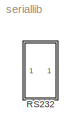
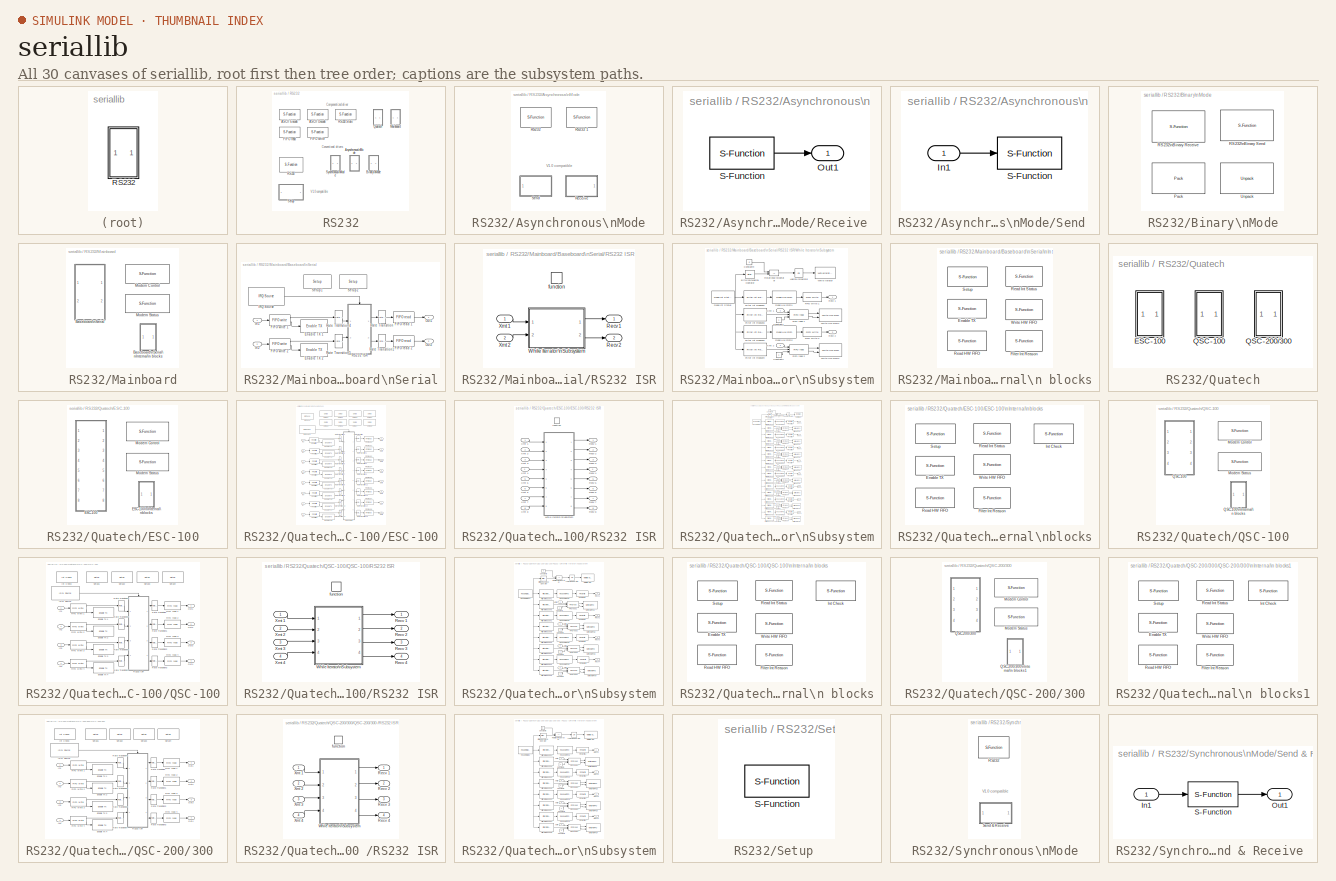
[diagram: thumbnail index - all 30 canvases of the model, root first then tree order]
MODEL seriallib
KIND library
BLOCK [SubSystem] RS232
  Ports = []
  TreatAsAtomicUnit = off
BLOCK [S-Function] RS232/ASCII Decode 
  FunctionName = asciidecode
  MaskCallbackString = ||
  MaskDescription = FIFO read\n\n
  MaskDisplay = disp( 'ASCII\\nDecode');port_label('input',1,'D');port_label('output',1,'1');
  MaskEnableString = on,on,on
  MaskHelp = helpview(fullfile(docroot, 'mapfiles', 'xpc.map'), 'Quatech_ASCII_Decode')\n
  MaskIconFrame = on
  MaskIconOpaque = on
  MaskIconRotate = none
  MaskIconUnits = autoscale
  MaskInitialization = [ maskdisplay, varids, format ] = masciidecode( 2, format, nvars, vartypes, 1 );\nset_param( gcb, 'MaskDisplay', maskdisplay );\n
  MaskPromptString = Format string:|Number of variables:|Variable types:
  MaskSelfModifiable = on
  MaskStyleString = edit,edit,edit
  MaskToolTipString = on,on,on
  MaskTunableValueString = on,on,on
  MaskType = Asynchronous FIFO Block: reader
  MaskValueString = %d\\r|1|{ }
  MaskVarAliasString = ,,
  MaskVariables = format=&1;nvars=@2;vartypes=@3;
  MaskVisibilityString = on,on,on
  Parameters = format, nvars, varids
  Ports = [1, 1]
BLOCK [S-Function] RS232/ASCII Encode 
  FunctionName = asciiencode
  MaskCallbackString = |||
  MaskDescription = Ascii Encode -- encode input variables as ascii for RS232.\n\n
  MaskDisplay = disp( 'ASCII\\nEncode');port_label('output',1,'D');port_label('input',1,'1');
  MaskEnableString = on,on,on,on
  MaskHelp = helpview(fullfile(docroot, 'mapfiles', 'xpc.map'), 'Quatech_ASCII_Encode')
  MaskIconFrame = on
  MaskIconOpaque = on
  MaskIconRotate = none
  MaskIconUnits = autoscale
  MaskInitialization = [ maskdisplay, varids, format ] = masciidecode( 2, format, nvars, vartypes, 2 );\nset_param( gcb, 'MaskDisplay', maskdisplay );\n
  MaskPromptString = Format string:|Number of variables:|Max output string length:|Variable types:
  MaskSelfModifiable = on
  MaskStyleString = edit,edit,edit,edit
  MaskToolTipString = on,on,on,on
  MaskTunableValueString = on,on,on,on
  MaskType = Ascii Encode
  MaskValueString = %d\\r|1|128|{ 'double' }
  MaskVarAliasString = ,,,
  MaskVariables = format=&1;nvars=@2;maxlength=@3;vartypes=@4;
  MaskVisibilityString = on,on,on,on
  Parameters = format, maxlength, nvars, varids
  Ports = [1, 1]
BLOCK [SubSystem] RS232/Asynchronous\nMode
  Ports = []
  TreatAsAtomicUnit = off
BLOCK [S-Function] RS232/Asynchronous\nMode/RS232 
  FunctionName = rs232send
  MaskCallbackString = ||
  MaskDescription = RS-232\nMainboard\nSend
  MaskDisplay = disp('RS-232\\nMainboard\\nSend');
  MaskEnableString = on,on,on
  MaskHelp = helpview(fullfile(docroot, 'mapfiles', 'xpc.map'), 'RS232_Asynchronous-Mode_RS232')
  MaskIconFrame = on
  MaskIconOpaque = on
  MaskIconRotate = none
  MaskIconUnits = autoscale
  MaskInitialization = inStr = '';\noutStr = '';\n[inStr,outStr,dtypes,maskdisplay,maskdescription,inport,outport, numinports, numoutports, formatsendinfo, formatrecinfo, waitarg] = mrs232 (1, blockvar, 2);\nset_param(gcb,'MaskDisplay',maskdisplay);\nset_param(gcb,'MaskDescription',maskdescription);\n\n\n\n
  MaskPromptString = Port:|Message struct name:|Sample time:
  MaskSelfModifiable = on
  MaskStyleString = popup(COM1|COM2|COM3|COM4),edit,edit
  MaskToolTipString = on,on,on
  MaskTunableValueString = on,on,on
  MaskType = rs232send
  MaskValueString = COM1|[]|0.1
  MaskVarAliasString = ,,
  MaskVariables = port=@1;blockvar=@2;ts=@3;
  MaskVisibilityString = on,on,on
  Parameters = port, inStr, inport, numinports, formatsendinfo, ts, waitarg
  Ports = []
BLOCK [S-Function] RS232/Asynchronous\nMode/RS232 1
  FunctionName = rs232rec
  MaskCallbackString = ||
  MaskDescription = RS-232\nMainboard\nReceive
  MaskDisplay = disp('RS-232\\nMainboard\\nReceive');
  MaskEnableString = on,on,on
  MaskHelp = helpview(fullfile(docroot, 'mapfiles', 'xpc.map'), 'RS232_Asynchronous-Mode_RS232-1')
  MaskIconFrame = on
  MaskIconOpaque = on
  MaskIconRotate = none
  MaskIconUnits = autoscale
  MaskInitialization = inStr = '';\noutStr = '';\n[inStr,outStr,dtypes,maskdisplay,maskdescription,inport,outport, numinports, numoutports, formatsendinfo, formatrecinfo, waitarg, numeom] = mrs232 (1, blockvar, 1);\n\n\nset_param(gcb,'MaskDisplay',maskdisplay);\nset_param(gcb,'MaskDescription',maskdescription);\n\n\n\n
  MaskPromptString = Port:|Message struct name:|Sample time:
  MaskSelfModifiable = on
  MaskStyleString = popup(COM1|COM2|COM3|COM4),edit,edit
  MaskToolTipString = on,on,on
  MaskTunableValueString = on,on,on
  MaskType = rs232rec
  MaskValueString = COM1|[]|0.1
  MaskVarAliasString = ,,
  MaskVariables = port=@1;blockvar=@2;ts=@3;
  MaskVisibilityString = on,on,on
  Parameters = port, outStr, outport, numoutports, formatrecinfo, dtypes, ts, numeom
  Ports = []
BLOCK [SubSystem] RS232/Asynchronous\nMode/Receive 
  MaskCallbackString = |||
  MaskDisplay = disp('RS232\\nMainboard\\nReceive');
  MaskEnableString = on,on,on,on
  MaskHelp = helpview(fullfile(docroot, 'mapfiles', 'xpc.map'), 'RS232_Asynchronous-Mode_Receive')
  MaskIconFrame = on
  MaskIconOpaque = on
  MaskIconRotate = none
  MaskIconUnits = autoscale
  MaskPromptString = Port:|Receive format:|Number of end-of-message characters:|Sample time:
  MaskStyleString = popup(COM1|COM2|COM3|COM4),edit,edit,edit
  MaskToolTipString = on,on,on,on
  MaskTunableValueString = on,on,on,on
  MaskType = rs232rec
  MaskValueString = COM2|'start,%f,stop;'|1|0.01
  MaskVarAliasString = ,,,
  MaskVariables = port=@1;formatrec=@2;numb=@3;ts=@4;
  MaskVisibilityString = on,on,on,on
  Ports = [0, 1]
  TreatAsAtomicUnit = off
BLOCK [Outport] RS232/Asynchronous\nMode/Receive /Out1
BLOCK [S-Function] RS232/Asynchronous\nMode/Receive /S-Function
  FunctionName = rs232_rec
  Parameters = port,formatrec,numb,ts
  Ports = [0, 1]
BLOCK [SubSystem] RS232/Asynchronous\nMode/Send 
  MaskCallbackString = |||
  MaskDisplay = disp('RS232\\nMainboard\\nSend');
  MaskEnableString = on,on,on,on
  MaskHelp = helpview(fullfile(docroot, 'mapfiles', 'xpc.map'), 'RS232_Asynchronous-Mode_Send')
  MaskIconFrame = on
  MaskIconOpaque = on
  MaskIconRotate = none
  MaskIconUnits = autoscale
  MaskPromptString = Port:|Send format:|Wait until message is transmitted|Sample time:
  MaskStyleString = popup(COM1|COM2|COM3|COM4),edit,checkbox,edit
  MaskToolTipString = on,on,on,on
  MaskTunableValueString = on,on,on,on
  MaskType = rs232send
  MaskValueString = COM2|'start,%f,stop;'|off|0.01
  MaskVarAliasString = ,,,
  MaskVariables = port=@1;formatsend=@2;wait=@3;ts=@4;
  MaskVisibilityString = on,on,on,on
  Ports = [1]
  TreatAsAtomicUnit = off
BLOCK [Inport] RS232/Asynchronous\nMode/Send /In1
BLOCK [S-Function] RS232/Asynchronous\nMode/Send /S-Function
  FunctionName = rs232_send
  Parameters = port,formatsend,wait,ts
  Ports = [1]
BLOCK [SubSystem] RS232/Binary\nMode
  Ports = []
  TreatAsAtomicUnit = off
BLOCK [Reference] RS232/Binary\nMode/Pack  REF=xpclib/UDP/Pack
  Ports = [1, 1]
  SourceBlock = xpclib/UDP/Pack
  SourceType = xpcany2byte
  byteAlign = 1
  datatypes = {'double'}
BLOCK [S-Function] RS232/Binary\nMode/RS232\nBinary Receive
  FunctionName = rs232brec
  MaskCallbackString = ||
  MaskDisplay = port_label('input',  1, 'Length');port_label('input',  2, 'Enable');port_label('output', 1, 'Done');port_label('output', 2, 'Data');disp(sprintf('RS232 Receive\\nCOM%d', port));
  MaskEnableString = on,on,on
  MaskHelp = helpview(fullfile(docroot, 'mapfiles', 'xpc.map'), 'RS232_Binary-Mode_RS232-Binary-Receive')
  MaskIconFrame = on
  MaskIconOpaque = on
  MaskIconRotate = none
  MaskIconUnits = autoscale
  MaskPromptString = COM port:|Maximum width per packet:|Sample time:
  MaskStyleString = popup(COM1|COM2|COM3|COM4),edit,edit
  MaskToolTipString = on,on,on
  MaskTunableValueString = on,on,on
  MaskType = rs232brec
  MaskValueString = COM1|1|-1
  MaskVarAliasString = ,,
  MaskVariables = port=@1;width=@2;samptime=@3;
  MaskVisibilityString = on,on,on
  Parameters = port,width,samptime
  Ports = [2, 2]
BLOCK [S-Function] RS232/Binary\nMode/RS232\nBinary Send
  FunctionName = rs232bsend
  MaskCallbackString = ||
  MaskDisplay = disp(sprintf('RS232 Send\\nCOM%d', port));
  MaskEnableString = on,on,on
  MaskHelp = helpview(fullfile(docroot, 'mapfiles', 'xpc.map'), 'RS232_Binary-Mode_RS232-Binary-Send')
  MaskIconFrame = on
  MaskIconOpaque = on
  MaskIconRotate = none
  MaskIconUnits = autoscale
  MaskPromptString = COM port:|Maximum width per packet:|Sample time:
  MaskStyleString = popup(COM1|COM2|COM3|COM4),edit,edit
  MaskToolTipString = on,on,on
  MaskTunableValueString = on,on,on
  MaskType = rs232bsend
  MaskValueString = COM1|1|-1
  MaskVarAliasString = ,,
  MaskVariables = port=@1;width=@2;samptime=@3;
  MaskVisibilityString = on,on,on
  Parameters = port,width,samptime
  Ports = [1]
BLOCK [Reference] RS232/Binary\nMode/Unpack  REF=xpclib/UDP/Unpack
  Ports = [1, 1]
  SourceBlock = xpclib/UDP/Unpack
  SourceType = xpcbyte2any
  byteAlign = 1
  datatypes = {'double'}
  dimensions = {[1]}
BLOCK [S-Function] RS232/FIFO read 
  FunctionName = fiforead
  MaskCallbackString = |||||||
  MaskDescription = FIFO read\n\n
  MaskDisplay = disp( 'FIFO\\nRead');port_label('output',1,'D');port_label('input',1,'F');
  MaskEnableString = on,on,on,on,on,on,on,on
  MaskHelp = helpview(fullfile(docroot, 'mapfiles', 'xpc.map'), 'Quatech_FIFO_Read')
  MaskIconFrame = on
  MaskIconOpaque = on
  MaskIconRotate = none
  MaskIconUnits = autoscale
  MaskInitialization = maskdisplay = mfiforw( enable, enableout, 2 );\nset_param( gcb, 'MaskDisplay', maskdisplay );\n\n
  MaskPromptString = Maximum read size:|Minimum read size:|Read to delimiter:|Delimiter:|Output vector type:|Max and Min read size ports:|Enable passthrough:|SampleTime:
  MaskSelfModifiable = on
  MaskStyleString = edit,edit,checkbox,edit,popup(count+32 bit int|count+32 bit uint|count+16 bit int|count+16 bit uint|8 bit int null terminated|8 bit uint null terminated),checkbox,checkbox,edit
  MaskToolTipString = on,on,on,on,on,on,on,on
  MaskTunableValueString = on,on,on,on,on,on,on,on
  MaskType = Asynchronous FIFO Block: reader
  MaskValueString = 1024|1|on|13|8 bit uint null terminated|off|off|0.001
  MaskVarAliasString = ,,,,,,,
  MaskVariables = maxsize=@1;minsize=@2;usedelimiter=@3;delimiter=@4;outputtype=@5;enable=@6;enableout=@7;sampletime=@8;
  MaskVisibilityString = on,on,on,on,on,on,on,on
  Parameters = maxsize, minsize, usedelimiter, delimiter, outputtype, sampletime, enable, enableout
  Ports = [1, 1]
BLOCK [S-Function] RS232/FIFO write 
  FunctionName = fifowrite
  MaskCallbackString = |||
  MaskDescription = FIFO write\n\n
  MaskDisplay = disp( 'FIFO\\nwrite');port_label('input',1,'D');port_label('output', 1, 'F');
  MaskEnableString = on,on,on,on
  MaskHelp = helpview(fullfile(docroot, 'mapfiles', 'xpc.map'), 'Quatech_FIFO_Write')\n
  MaskIconFrame = on
  MaskIconOpaque = on
  MaskIconRotate = none
  MaskIconUnits = autoscale
  MaskInitialization = maskdisplay = mfiforw( present, 0, 1 );\nset_param(gcb,'MaskDisplay',maskdisplay);\n
  MaskPromptString = Size:|Input vector type:|Data present output:|SampleTime:
  MaskSelfModifiable = on
  MaskStyleString = edit,popup(count+32 bit int|count+32 bit uint|count+16 bit int|count+16 bit uint|8 bit int null terminated|8 bit uint null terminated),checkbox,edit
  MaskToolTipString = on,on,on,on
  MaskTunableValueString = on,on,on,on
  MaskType = Asynchronous FIFO Block: writer
  MaskValueString = 1024|8 bit uint null terminated|off|-1
  MaskVarAliasString = ,,,
  MaskVariables = size=@1;inputtype=@2;present=@3;sampletime=@4;
  MaskVisibilityString = on,on,on,on
  Parameters = size, inputtype, sampletime, present
  Ports = [1, 1]
BLOCK [SubSystem] RS232/Mainboard
  Ports = []
  TreatAsAtomicUnit = off
BLOCK [SubSystem] RS232/Mainboard/Baseboard\nSerial
  InitFcn = mbaseserialmask(4,2)
  MaskCallbackString = mbaseserialmask( 2, 2 );\n|mbaseserialmask( 2, 2 );||||mbaseserialmask( 2, 2 );\n||||||||||||||||||||||||||||||||
  MaskDescription = Baseboard\nRS232 Send Receive Subsystem\n
  MaskDisplay = disp('Baseboard\\nRS232\\nSend Receive')port_label('input',1,'XMT1');port_label('input',2,'XMT3');port_label('output',1,'RCV1');port_label('output',2,'RCV3');
  MaskEnableString = on,on,on,on,on,on,on,on,on,on,on,on,on,on,on,on,on,on,on,on,on,on,on,on,on,on,on,on,on,on,on,on,on,on,on,on,on,on
  MaskHelp = helpview(fullfile(docroot, 'mapfiles', 'xpc.map'), 'Baseboard_Serial_Subsystem')
  MaskIconFrame = on
  MaskIconOpaque = on
  MaskIconRotate = none
  MaskIconUnits = autoscale
  MaskInitialization = [addr1, addr2, maskdisplay] = mbaseserialmask( 1, 2 );\nbaddr1 = addr1;\nbaddr2 = addr2;\nmbaseserialmask( 3, 2 );\nset_param( gcb, 'MaskDisplay', maskdisplay );\n
  MaskPromptString = Parameter group:|Port to modify:|IRQ number:|First port address:|Second port address:|Configuration:|Baud rate:|Parity:|Data bits:|Stop bits:|Hardware fifo size:|Receive fifo interrupt level:|Auto RTS/CTS:|Transmit software fifo size:|Transmit fifo data type:|Receive software fifo size:|Receive maximum read:|Receive minimum read:|Read to delimiter:|Delimiter:|Receive data type:|Receive SampleTime:...<+300ch>
  MaskSelfModifiable = on
  MaskStyleString = popup(Board Setup|Basic Setup|Transmit Setup|Receive Setup),popup(1|2),edit,edit,edit,popup(Com1/none|Com2/none|Com1/Com3|Com2/Com4|none/Com3|none/Com4|Custom),popup(921600|460800|230400|115200|57600|38400|19200|9600|4800|2400|1200|600|300|110),popup(None|Even|Odd|Mark|Space),popup(5|6|7|8),popup(1|2),popup(64 deep|16 deep|1 deep),popup(1|quarter full|half full|almost full),checkbox,edit,popup(cou...<+809ch>
  MaskToolTipString = on,on,on,on,on,on,on,on,on,on,on,on,on,on,on,on,on,on,on,on,on,on,on,on,on,on,on,on,on,on,on,on,on,on,on,on,on,on
  MaskTunableValueString = on,on,on,on,on,on,on,on,on,on,on,on,on,on,on,on,on,on,on,on,on,on,on,on,on,on,on,on,on,on,on,on,on,on,on,on,on,on
  MaskType = Baseboard RS232 Send Receive
  MaskValueString = Board Setup|1|4|0x3f8|0x3e8|Com1/Com3|115200|None|8|1|16 deep|half full|on|1024|8 bit uint null terminated|1024|1024|1|on|13|count+16 bit uint|-1|115200|None|8|1|16 deep|half full|off|1024|8 bit uint null terminated|1024|1024|1|on|13|count+16 bit uint|-1
  MaskVarAliasString = ,,,,,,,,,,,,,,,,,,,,,,,,,,,,,,,,,,,,,
  MaskVariables = group=@1;port=@2;irqnum=@3;saddr1=&4;saddr2=&5;config=@6;baud1=&7;parity1=&8;ndata1=&9;nstop1=&10;fifomode1=&11;rlevel1=&12;automode1=&13;xmtfifosize1=@14;xmtdatatype1=@15;rcvfifosize1=@16;rcvmaxread1=@17;rcvminread1=@18;rcvusedelim1=&19;rcvdelim1=&20;rcvdatatype1=@21;rcvsampletime1=@22;baud2=&23;parity2=&24;ndata2=&25;nstop2=&26;fifomode2=&27;rlevel2=&28;automode2=&29;xmtfifosize2=@30;xmtdatatype...<+122ch>
  MaskVisibilityString = on,off,off,off,off,on,off,off,off,off,off,off,off,off,off,off,off,off,off,off,off,off,off,off,off,off,off,off,off,off,off,off,off,off,off,off,off,off
  Ports = [2, 2]
  TreatAsAtomicUnit = on
BLOCK [Reference] RS232/Mainboard/Baseboard\nSerial/Enable TX 1  REF=xpclib/RS232/Mainboard/Baseboard\nSerial\nInternal\n blocks/Enable TX 
  Ports = [1]
  SourceBlock = xpclib/RS232/Mainboard/Baseboard\nSerial\nInternal\n blocks/Enable TX
  SourceType = Enable TX Int
  addr = baddr1
BLOCK [Reference] RS232/Mainboard/Baseboard\nSerial/Enable TX 2  REF=xpclib/RS232/Mainboard/Baseboard\nSerial\nInternal\n blocks/Enable TX 
  Ports = [1]
  SourceBlock = xpclib/RS232/Mainboard/Baseboard\nSerial\nInternal\n blocks/Enable TX
  SourceType = Enable TX Int
  addr = baddr2
BLOCK [Reference] RS232/Mainboard/Baseboard\nSerial/FIFO read 1  REF=xpclib/RS232/FIFO read 
  Ports = [1, 1]
  SourceBlock = xpclib/RS232/FIFO read
  SourceType = Asynchronous FIFO Block: reader
  delimiter = 13
  enable = off
  enableout = off
  maxsize = 1024
  minsize = 1
  outputtype = count+16 bit uint
  sampletime = -1
  usedelimiter = on
BLOCK [Reference] RS232/Mainboard/Baseboard\nSerial/FIFO read 2  REF=xpclib/RS232/FIFO read 
  Ports = [1, 1]
  SourceBlock = xpclib/RS232/FIFO read
  SourceType = Asynchronous FIFO Block: reader
  delimiter = 13
  enable = off
  enableout = off
  maxsize = 1024
  minsize = 1
  outputtype = count+16 bit uint
  sampletime = -1
  usedelimiter = on
BLOCK [Reference] RS232/Mainboard/Baseboard\nSerial/FIFO write 1  REF=xpclib/RS232/FIFO write 
  Ports = [1, 2]
  SourceBlock = xpclib/RS232/FIFO write
  SourceType = Asynchronous FIFO Block: writer
  inputtype = 8 bit uint null terminated
  present = on
  sampletime = -1
  size = 1024
BLOCK [Reference] RS232/Mainboard/Baseboard\nSerial/FIFO write 2  REF=xpclib/RS232/FIFO write 
  Ports = [1, 2]
  SourceBlock = xpclib/RS232/FIFO write
  SourceType = Asynchronous FIFO Block: writer
  inputtype = 8 bit uint null terminated
  present = on
  sampletime = -1
  size = 1024
BLOCK [Reference] RS232/Mainboard/Baseboard\nSerial/IRQ Source  REF=xpclib/Asynchronous\nEvent/IRQ Source
  Ports = [0, 1]
  SourceBlock = xpclib/Asynchronous\nEvent/IRQ Source
  SourceType = xpcinterrupt
  b_type = None/Other
  irqNo = 4
  preempt = off
  slot = -1
BLOCK [Inport] RS232/Mainboard/Baseboard\nSerial/In1
BLOCK [Inport] RS232/Mainboard/Baseboard\nSerial/In2
  Port = 2
BLOCK [Outport] RS232/Mainboard/Baseboard\nSerial/Out1
BLOCK [Outport] RS232/Mainboard/Baseboard\nSerial/Out2
  Port = 2
BLOCK [SubSystem] RS232/Mainboard/Baseboard\nSerial/RS232 ISR
  MaskCallbackString = |
  MaskDescription = Baseboard Serial\nInterrupt Service Routine\n
  MaskDisplay = disp('Baseboard\\nSerial\\nISR');\nport_label('input', 1, 'XMT1');\nport_label('input', 2, 'XMT3');\nport_label('output', 1, 'RCV1');\nport_label('output', 2, 'RCV3');\n
  MaskEnableString = on,on
  MaskIconFrame = on
  MaskIconOpaque = on
  MaskIconRotate = none
  MaskIconUnits = autoscale
  MaskInitialization = baddr1 = addr1;\nbaddr2 = addr2;
  MaskPromptString = First channel address:|Second channel address:
  MaskSelfModifiable = on
  MaskStyleString = edit,edit
  MaskToolTipString = on,on
  MaskTunableValueString = on,on
  MaskType = RS232 ISR
  MaskValueString = baddr1|baddr2
  MaskVarAliasString = ,
  MaskVariables = addr1=@1;addr2=@2;
  MaskVisibilityString = on,on
  Ports = [2, 2, 0, 1]
  TreatAsAtomicUnit = on
BLOCK [Outport] RS232/Mainboard/Baseboard\nSerial/RS232 ISR/Recv 1
BLOCK [Outport] RS232/Mainboard/Baseboard\nSerial/RS232 ISR/Recv 2
  Port = 2
BLOCK [SubSystem] RS232/Mainboard/Baseboard\nSerial/RS232 ISR/While Iterator\nSubsystem
  Ports = [2, 2]
  TreatAsAtomicUnit = on
BLOCK [Reference] RS232/Mainboard/Baseboard\nSerial/RS232 ISR/While Iterator\nSubsystem/Bitwise\nLogical Operator  REF=simulink/Math\nOperations/Bitwise\nLogical Operator
  Operand2 = 'FF'
  Operator = AND
  Ports = [1, 1]
  SourceBlock = simulink/Math\nOperations/Bitwise\nLogical Operator
  SourceType = BitwiseOperator
BLOCK [Constant] RS232/Mainboard/Baseboard\nSerial/RS232 ISR/While Iterator\nSubsystem/Constant1
  OutDataTypeMode = uint32
  ShowAdditionalParam = on
BLOCK [Constant] RS232/Mainboard/Baseboard\nSerial/RS232 ISR/While Iterator\nSubsystem/Constant2
  OutDataTypeMode = uint32
  ShowAdditionalParam = on
BLOCK [Constant] RS232/Mainboard/Baseboard\nSerial/RS232 ISR/While Iterator\nSubsystem/Constant9
  OutDataTypeMode = uint32
  ShowAdditionalParam = on
  Value = 0
BLOCK [Reference] RS232/Mainboard/Baseboard\nSerial/RS232 ISR/While Iterator\nSubsystem/FIFO read 1  REF=xpclib/RS232/FIFO read 
  Ports = [3, 2]
  SourceBlock = xpclib/RS232/FIFO read
  SourceType = Asynchronous FIFO Block: reader
  delimiter = 13
  enable = on
  enableout = on
  maxsize = 60
  minsize = 1
  outputtype = count+32 bit uint
  sampletime = -1
  usedelimiter = off
BLOCK [Reference] RS232/Mainboard/Baseboard\nSerial/RS232 ISR/While Iterator\nSubsystem/FIFO read 2  REF=xpclib/RS232/FIFO read 
  Ports = [3, 2]
  SourceBlock = xpclib/RS232/FIFO read
  SourceType = Asynchronous FIFO Block: reader
  delimiter = 13
  enable = on
  enableout = on
  maxsize = 60
  minsize = 1
  outputtype = count+32 bit uint
  sampletime = -1
  usedelimiter = off
BLOCK [Reference] RS232/Mainboard/Baseboard\nSerial/RS232 ISR/While Iterator\nSubsystem/FIFO write 1  REF=xpclib/RS232/FIFO write 
  Ports = [1, 1]
  SourceBlock = xpclib/RS232/FIFO write
  SourceType = Asynchronous FIFO Block: writer
  inputtype = count+32 bit uint
  present = off
  sampletime = -1
  size = 1024
BLOCK [Reference] RS232/Mainboard/Baseboard\nSerial/RS232 ISR/While Iterator\nSubsystem/FIFO write 2  REF=xpclib/RS232/FIFO write 
  Ports = [1, 1]
  SourceBlock = xpclib/RS232/FIFO write
  SourceType = Asynchronous FIFO Block: writer
  inputtype = count+32 bit uint
  present = off
  sampletime = -1
  size = 1024
BLOCK [Reference] RS232/Mainboard/Baseboard\nSerial/RS232 ISR/While Iterator\nSubsystem/Filter Int Reason1  REF=xpclib/RS232/Mainboard/Baseboard\nSerial\nInternal\n blocks/Filter Int Reason
  Ports = [1, 1]
  SourceBlock = xpclib/RS232/Mainboard/Baseboard\nSerial\nInternal\n blocks/Filter Int Reason
  SourceType = Interrupt Source Filter
  port = 1
  value = Receive data
BLOCK [Reference] RS232/Mainboard/Baseboard\nSerial/RS232 ISR/While Iterator\nSubsystem/Filter Int Reason2  REF=xpclib/RS232/Mainboard/Baseboard\nSerial\nInternal\n blocks/Filter Int Reason
  Ports = [1, 1]
  SourceBlock = xpclib/RS232/Mainboard/Baseboard\nSerial\nInternal\n blocks/Filter Int Reason
  SourceType = Interrupt Source Filter
  port = 2
  value = Receive data
BLOCK [Reference] RS232/Mainboard/Baseboard\nSerial/RS232 ISR/While Iterator\nSubsystem/Filter Int Reason3  REF=xpclib/RS232/Mainboard/Baseboard\nSerial\nInternal\n blocks/Filter Int Reason
  Ports = [1, 1]
  SourceBlock = xpclib/RS232/Mainboard/Baseboard\nSerial\nInternal\n blocks/Filter Int Reason
  SourceType = Interrupt Source Filter
  port = 1
  value = Transmitter empty
BLOCK [Reference] RS232/Mainboard/Baseboard\nSerial/RS232 ISR/While Iterator\nSubsystem/Filter Int Reason4  REF=xpclib/RS232/Mainboard/Baseboard\nSerial\nInternal\n blocks/Filter Int Reason
  Ports = [1, 1]
  SourceBlock = xpclib/RS232/Mainboard/Baseboard\nSerial\nInternal\n blocks/Filter Int Reason
  SourceType = Interrupt Source Filter
  port = 2
  value = Transmitter empty
BLOCK [Logic] RS232/Mainboard/Baseboard\nSerial/RS232 ISR/While Iterator\nSubsystem/Logical\nOperator
  AllPortsSameDT = off
  Inputs = 1
  Operator = OR
  Ports = [1, 1]
BLOCK [Reference] RS232/Mainboard/Baseboard\nSerial/RS232 ISR/While Iterator\nSubsystem/Read HW FIFO1  REF=xpclib/RS232/Mainboard/Baseboard\nSerial\nInternal\n blocks/Read HW FIFO
  Ports = [1, 1]
  SourceBlock = xpclib/RS232/Mainboard/Baseboard\nSerial\nInternal\n blocks/Read HW FIFO
  SourceType = Read Data Port
  addr = baddr1
  flush = on
BLOCK [Reference] RS232/Mainboard/Baseboard\nSerial/RS232 ISR/While Iterator\nSubsystem/Read HW FIFO2  REF=xpclib/RS232/Mainboard/Baseboard\nSerial\nInternal\n blocks/Read HW FIFO
  Ports = [1, 1]
  SourceBlock = xpclib/RS232/Mainboard/Baseboard\nSerial\nInternal\n blocks/Read HW FIFO
  SourceType = Read Data Port
  addr = baddr2
  flush = on
BLOCK [Reference] RS232/Mainboard/Baseboard\nSerial/RS232 ISR/While Iterator\nSubsystem/Read Int Status  REF=xpclib/RS232/Mainboard/Baseboard\nSerial\nInternal\n blocks/Read Int Status
  Ports = [0, 1]
  SourceBlock = xpclib/RS232/Mainboard/Baseboard\nSerial\nInternal\n blocks/Read Int Status
  SourceType = Interrupt Query
  addr1 = baddr1
  addr2 = baddr2
BLOCK [Outport] RS232/Mainboard/Baseboard\nSerial/RS232 ISR/While Iterator\nSubsystem/Recv 1
BLOCK [Outport] RS232/Mainboard/Baseboard\nSerial/RS232 ISR/While Iterator\nSubsystem/Recv 2
  Port = 2
BLOCK [RelationalOperator] RS232/Mainboard/Baseboard\nSerial/RS232 ISR/While Iterator\nSubsystem/Relational\nOperator
  InputSameDT = off
  Operator = ~=
BLOCK [WhileIterator] RS232/Mainboard/Baseboard\nSerial/RS232 ISR/While Iterator\nSubsystem/While Iterator
  MaxIters = 65
  Ports = [1]
  WhileBlockType = do-while
BLOCK [Reference] RS232/Mainboard/Baseboard\nSerial/RS232 ISR/While Iterator\nSubsystem/Write HW FIFO1  REF=xpclib/RS232/Mainboard/Baseboard\nSerial\nInternal\n blocks/Write HW FIFO
  Ports = [2]
  SourceBlock = xpclib/RS232/Mainboard/Baseboard\nSerial\nInternal\n blocks/Write HW FIFO
  SourceType = Write Data Port
  addr = baddr1
BLOCK [Reference] RS232/Mainboard/Baseboard\nSerial/RS232 ISR/While Iterator\nSubsystem/Write HW FIFO2  REF=xpclib/RS232/Mainboard/Baseboard\nSerial\nInternal\n blocks/Write HW FIFO
  Ports = [2]
  SourceBlock = xpclib/RS232/Mainboard/Baseboard\nSerial\nInternal\n blocks/Write HW FIFO
  SourceType = Write Data Port
  addr = baddr2
BLOCK [Inport] RS232/Mainboard/Baseboard\nSerial/RS232 ISR/While Iterator\nSubsystem/Xmt 1
BLOCK [Inport] RS232/Mainboard/Baseboard\nSerial/RS232 ISR/While Iterator\nSubsystem/Xmt 2
  Port = 2
BLOCK [Inport] RS232/Mainboard/Baseboard\nSerial/RS232 ISR/Xmt 1
BLOCK [Inport] RS232/Mainboard/Baseboard\nSerial/RS232 ISR/Xmt 2
  Port = 2
BLOCK [TriggerPort] RS232/Mainboard/Baseboard\nSerial/RS232 ISR/function
  Ports = []
  TriggerType = function-call
BLOCK [Reference] RS232/Mainboard/Baseboard\nSerial/Rate Transition  REF=vxlib/Asynchronous Support/Rate Transition  (lib defined in mdl_30542f85f50b)
  Ports = [1, 1]
  SourceBlock = vxlib/Asynchronous Support/Rate Transition
  SourceType = Rate Transition
  sample_time = -1
BLOCK [Reference] RS232/Mainboard/Baseboard\nSerial/Rate Transition1  REF=vxlib/Asynchronous Support/Rate Transition  (lib defined in mdl_30542f85f50b)
  Ports = [1, 1]
  SourceBlock = vxlib/Asynchronous Support/Rate Transition
  SourceType = Rate Transition
  sample_time = -1
BLOCK [Reference] RS232/Mainboard/Baseboard\nSerial/Rate Transition4  REF=vxlib/Asynchronous Support/Rate Transition  (lib defined in mdl_30542f85f50b)
  Ports = [1, 1]
  SourceBlock = vxlib/Asynchronous Support/Rate Transition
  SourceType = Rate Transition
  sample_time = -1
BLOCK [Reference] RS232/Mainboard/Baseboard\nSerial/Rate Transition5  REF=vxlib/Asynchronous Support/Rate Transition  (lib defined in mdl_30542f85f50b)
  Ports = [1, 1]
  SourceBlock = vxlib/Asynchronous Support/Rate Transition
  SourceType = Rate Transition
  sample_time = -1
BLOCK [Reference] RS232/Mainboard/Baseboard\nSerial/Setup1  REF=xpclib/RS232/Mainboard/Baseboard\nSerial\nInternal\n blocks/Setup
  Ports = []
  SourceBlock = xpclib/RS232/Mainboard/Baseboard\nSerial\nInternal\n blocks/Setup
  SourceType = setup
  addr = baddr1
  baud = 115200
  ctsmode = on
  fmode = 16 deep
  nstop = 1
  parity = None
  rlevel = half full
  width = 8
BLOCK [Reference] RS232/Mainboard/Baseboard\nSerial/Setup2  REF=xpclib/RS232/Mainboard/Baseboard\nSerial\nInternal\n blocks/Setup
  Ports = []
  SourceBlock = xpclib/RS232/Mainboard/Baseboard\nSerial\nInternal\n blocks/Setup
  SourceType = setup
  addr = baddr2
  baud = 115200
  ctsmode = off
  fmode = 16 deep
  nstop = 1
  parity = None
  rlevel = half full
  width = 8
BLOCK [SubSystem] RS232/Mainboard/Baseboard\nSerial\nInternal\n blocks
  Ports = []
  TreatAsAtomicUnit = off
BLOCK [S-Function] RS232/Mainboard/Baseboard\nSerial\nInternal\n blocks/Enable TX 
  FunctionName = sertxenablebase
  MaskDescription = Baseboard Serial\nEnable TX Interrupt\n
  MaskDisplay = disp('Baseboard\\nSerial\\nEnable TX Int');\nport_label('input', 1, 'E');\n
  MaskEnableString = on
  MaskHelp = helpview(fullfile(docroot, 'mapfiles', 'xpc.map'), 'Baseboard_Enable_Int')
  MaskIconFrame = on
  MaskIconOpaque = on
  MaskIconRotate = none
  MaskIconUnits = autoscale
  MaskInitialization = addr = hex2dec( addr(3:end) );
  MaskPromptString = Base address:
  MaskSelfModifiable = on
  MaskStyleString = edit
  MaskToolTipString = on
  MaskTunableValueString = on
  MaskType = Enable TX Int
  MaskValueString = 0
  MaskVariables = addr=@1;
  MaskVisibilityString = on
  Parameters = addr
  Ports = [1]
BLOCK [S-Function] RS232/Mainboard/Baseboard\nSerial\nInternal\n blocks/Filter Int Reason
  FunctionName = filterserint
  MaskCallbackString = |
  MaskDescription = Baseboard\nInterrupt Source Filter\n
  MaskDisplay = disp('Baseboard\\nSerial\\nFilter Int Reason');\nport_label('input', 1, 'S' );\nport_label('output', 1, 'E' );\n
  MaskEnableString = on,on
  MaskHelp = helpview(fullfile(docroot, 'mapfiles', 'xpc.map'), 'Baseboard_Filter_Ints')
  MaskIconFrame = on
  MaskIconOpaque = on
  MaskIconRotate = none
  MaskIconUnits = autoscale
  MaskInitialization = \n
  MaskPromptString = Port:|Filter value:
  MaskSelfModifiable = on
  MaskStyleString = popup(1|2),popup(Receive data|Transmitter empty|Modem status change)
  MaskToolTipString = on,on
  MaskTunableValueString = on,on
  MaskType = Interrupt Source Filter
  MaskValueString = 1|Receive data
  MaskVarAliasString = ,
  MaskVariables = port=@1;value=@2;
  MaskVisibilityString = on,on
  Parameters = port, value
  Ports = [1, 1]
BLOCK [S-Function] RS232/Mainboard/Baseboard\nSerial\nInternal\n blocks/Read HW FIFO
  FunctionName = serreadbase
  MaskCallbackString = |
  MaskDescription = Baseboard\nRead Data Port\n
  MaskDisplay = disp('Baseboard\\nSerial\\nRead HW FIFO');\nport_label('input', 1, 'E');\nport_label('output', 1, 'D');
  MaskEnableString = on,on
  MaskHelp = helpview(fullfile(docroot, 'mapfiles', 'xpc.map'), 'Baseboard_Read_HW')
  MaskIconFrame = on
  MaskIconOpaque = on
  MaskIconRotate = none
  MaskIconUnits = autoscale
  MaskInitialization = addr = hex2dec( addr(3:end) );\n
  MaskPromptString = Flush HW FIFO on startup|Base address:
  MaskSelfModifiable = on
  MaskStyleString = checkbox,edit
  MaskToolTipString = on,on
  MaskTunableValueString = on,on
  MaskType = Read Data Port
  MaskValueString = on|0
  MaskVarAliasString = ,
  MaskVariables = flush=@1;addr=@2;
  MaskVisibilityString = on,on
  Parameters = addr, flush
  Ports = [1, 1]
BLOCK [S-Function] RS232/Mainboard/Baseboard\nSerial\nInternal\n blocks/Read Int Status
  FunctionName = Iquerybase
  MaskCallbackString = |
  MaskDescription = Baseboard Serial\nInterrupt Query\n
  MaskDisplay = disp('Baseboard\\nSerial\\nRead Int Status');\nport_label('output', 1, 'S' );\n
  MaskEnableString = on,on
  MaskHelp = helpview(fullfile(docroot, 'mapfiles', 'xpc.map'), 'Baseboard_Interrupt_Query')
  MaskIconFrame = on
  MaskIconOpaque = on
  MaskIconRotate = none
  MaskIconUnits = autoscale
  MaskInitialization = addr1 = hex2dec( addr1(3:end) );\naddr2 = hex2dec( addr2(3:end) );
  MaskPromptString = Base address 1|Base address 2
  MaskSelfModifiable = on
  MaskStyleString = edit,edit
  MaskToolTipString = on,on
  MaskTunableValueString = on,on
  MaskType = Interrupt Query
  MaskValueString = 0|0
  MaskVarAliasString = ,
  MaskVariables = addr1=@1;addr2=@2;
  MaskVisibilityString = on,on
  Parameters = addr1, addr2
  Ports = [0, 1]
BLOCK [S-Function] RS232/Mainboard/Baseboard\nSerial\nInternal\n blocks/Setup
  FunctionName = sersetupbase
  MaskCallbackString = |||||||
  MaskDescription = Baseboard\nSerial\nSetup\n
  MaskDisplay = disp('Baseboard\\nSerial\\nSetup');
  MaskEnableString = on,on,on,on,on,on,on,on
  MaskHelp = helpview(fullfile(docroot, 'mapfiles', 'xpc.map'), 'Baseboard_Setup')
  MaskIconFrame = on
  MaskIconOpaque = on
  MaskIconRotate = none
  MaskIconUnits = autoscale
  MaskInitialization = addr = hex2dec( addr(3:end) );\n
  MaskPromptString = Baud rate:|Number of data bits:|Number of stop bits:|Parity:|Fifo mode:|Receive trigger level:|Enable auto RTS/CTS|Base Address:
  MaskSelfModifiable = on
  MaskStyleString = popup(115200|57600|38400|19200|9600|4800|2400|1200|600|300|110),popup(5|6|7|8),popup(1|2),popup(None|Even|Odd|Mark|Space),popup(64 deep|16 deep|1 deep),popup(1|quarter full|half full|almost full),checkbox,edit
  MaskToolTipString = on,on,on,on,on,on,on,on
  MaskTunableValueString = on,on,on,on,on,on,on,on
  MaskType = setup
  MaskValueString = 115200|8|1|None|16 deep|half full|off|0
  MaskVarAliasString = ,,,,,,,
  MaskVariables = baud=@1;width=@2;nstop=@3;parity=@4;fmode=@5;rlevel=@6;ctsmode=@7;addr=@8;
  MaskVisibilityString = on,on,on,on,on,on,on,on
  Parameters = addr, baud, width, nstop, parity, fmode, ctsmode, rlevel
  Ports = []
BLOCK [S-Function] RS232/Mainboard/Baseboard\nSerial\nInternal\n blocks/Write HW FIFO
  FunctionName = serwritebase
  MaskDescription = Baseboard\nWrite Data Port\n
  MaskDisplay = disp('Baseboard\\nSerial\\nWrite HW FIFO');\nport_label('input', 1, 'D');\nport_label('input', 2, 'E');
  MaskEnableString = on
  MaskHelp = helpview(fullfile(docroot, 'mapfiles', 'xpc.map'), 'Baseboard_Write_HW')
  MaskIconFrame = on
  MaskIconOpaque = on
  MaskIconRotate = none
  MaskIconUnits = autoscale
  MaskInitialization = addr = hex2dec( addr(3:end) );\n
  MaskPromptString = Base address:
  MaskSelfModifiable = on
  MaskStyleString = edit
  MaskToolTipString = on
  MaskTunableValueString = on
  MaskType = Write Data Port
  MaskValueString = 0
  MaskVariables = addr=@1;
  MaskVisibilityString = on
  Parameters = addr
  Ports = [2]
BLOCK [S-Function] RS232/Mainboard/Modem Control
  FunctionName = modemcontrolbase
  InitFcn = mmodemcontrol(4)
  MaskCallbackString = ||mmodemcontrol( 1 );\n|
  MaskDescription = Baseboard\nModem Control
  MaskDisplay = disp('Baseboard\\nModem Control');port_label('input',1,'RTS');port_label('input',2,'DTR');
  MaskEnableString = on,on,on,on
  MaskHelp = helpview(fullfile(docroot, 'mapfiles', 'xpc.map'), 'Baseboard_MODEM_Control')
  MaskIconFrame = on
  MaskIconOpaque = on
  MaskIconRotate = none
  MaskIconUnits = autoscale
  MaskInitialization = count = 0;\nboardtype = 4;\n[maskdisplay, count, addr] = mmodemcontrol( 2, rts, dtr, boardtype, config, addr );\naddr = hex2dec( addr(3:end) );\nset_param( gcb, 'MaskDisplay', maskdisplay );\n
  MaskPromptString = RTS:|DTR:|Configuration:|Base address:
  MaskSelfModifiable = on
  MaskStyleString = checkbox,checkbox,popup(Com1|Com2|Com3|Com4|Custom),edit
  MaskToolTipString = on,on,on,on
  MaskTunableValueString = on,on,on,on
  MaskType = Baseboard Modem Control
  MaskValueString = on|on|Com1|0x3f8
  MaskVarAliasString = ,,,
  MaskVariables = rts=@1;dtr=@2;config=&3;addr=&4;
  MaskVisibilityString = on,on,on,off
  Parameters = addr, boardtype, rts, dtr, count
  Ports = [2]
BLOCK [S-Function] RS232/Mainboard/Modem Status
  FunctionName = modemstatusbase
  MaskCallbackString = |||||mmodemstatus( 1 );\n|
  MaskDescription = Baseboard\nModem Status
  MaskDisplay = disp('Baseboard\\nModem Status');port_label('output',1,'CTS');port_label('output',2,'DSR');port_label('output',3,'RI');port_label('output',4,'DCD');
  MaskEnableString = on,on,on,on,on,on,on
  MaskHelp = helpview(fullfile(docroot, 'mapfiles', 'xpc.map'), 'Baseboard_MODEM_Status')
  MaskIconFrame = on
  MaskIconOpaque = on
  MaskIconRotate = none
  MaskIconUnits = autoscale
  MaskInitialization = count = 0;\nboardtype = 4;\n[maskdisplay, count, addr] = mmodemstatus( 2, cts, dsr, ring, dcd, boardtype, config, addr );\naddr = hex2dec( addr(3:end) );\nset_param( gcb, 'MaskDisplay', maskdisplay );\n
  MaskPromptString = CTS:|DSR:|RI:|DCD:|SampleTime:|Configuration:|Base address:
  MaskSelfModifiable = on
  MaskStyleString = checkbox,checkbox,checkbox,checkbox,edit,popup(Com1|Com2|Com3|Com4|Custom),edit
  MaskToolTipString = on,on,on,on,on,on,on
  MaskTunableValueString = on,on,on,on,on,on,on
  MaskType = Modem Status
  MaskValueString = on|on|on|on|-1|Com1|0x3f8
  MaskVarAliasString = ,,,,,,
  MaskVariables = cts=@1;dsr=@2;ring=@3;dcd=@4;sampletime=@5;config=&6;addr=&7;
  MaskVisibilityString = on,on,on,on,on,on,off
  Parameters = addr, boardtype, cts, dsr, ring, dcd, count, sampletime
  Ports = [0, 4]
BLOCK [SubSystem] RS232/Quatech
  Ports = []
  TreatAsAtomicUnit = off
BLOCK [SubSystem] RS232/Quatech/ESC-100
  Ports = []
  TreatAsAtomicUnit = off
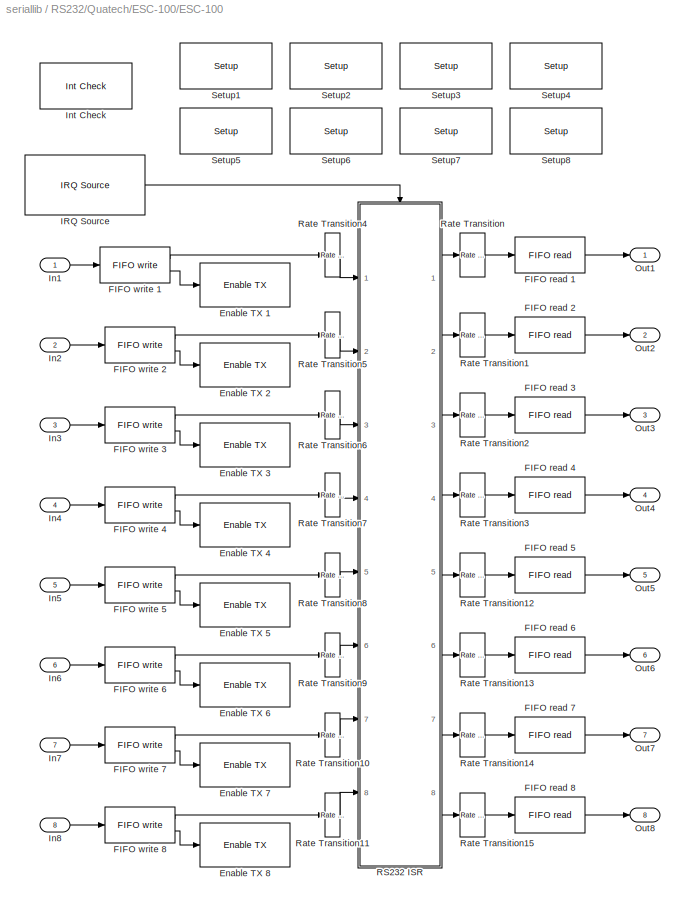
BLOCK [SubSystem] RS232/Quatech/ESC-100/ESC-100
  InitFcn = mquamask(3)
  MaskCallbackString = mquamask( 2, 8 );\n|mquamask( 2, 8 );||||||||||||||||||||||||||||||||||||||||||||||||||||||||||||||||||||||||||||||||||||||||||||||||||||||||||||||||||||||||||||||||||
  MaskDescription = ESC-100\nQuatech\nRS232 Send Receive Subsystem\n
  MaskDisplay = disp('ESC-100<path> Receive');\nport_label( 'input', 1, 'XMT1' );\nport_label( 'input', 2, 'XMT2' );\nport_label( 'input', 3, 'XMT3' );\nport_label( 'input', 4, 'XMT4' );\nport_label( 'input', 5, 'XMT5' );\nport_label( 'input', 6, 'XMT6' );\nport_label( 'input', 7, 'XMT7' );\nport_label( 'input', 8, 'XMT8' );\nport_label( 'output', 1, 'RCV1' );\nport_label( 'output', 2, 'RCV2' );\np...<+215ch>
  MaskEnableString = on,on,on,on,on,on,on,on,on,on,on,on,on,on,on,on,on,on,on,on,on,on,on,on,on,on,on,on,on,on,on,on,on,on,on,on,on,on,on,on,on,on,on,on,on,on,on,on,on,on,on,on,on,on,on,on,on,on,on,on,on,on,on,on,on,on,on,on,on,on,on,on,on,on,on,on,on,on,on,on,on,on,on,on,on,on,on,on,on,on,on,on,on,on,on,on,on,on,on,on,on,on,on,on,on,on,on,on,on,on,on,on,on,on,on,on,on,on,on,on,on,on,on,on,on,on,on,on,on,on,on,on
  MaskHelp = helpview(fullfile(docroot, 'mapfiles', 'xpc.map'), 'Quatech_Subsystem')
  MaskIconFrame = on
  MaskIconOpaque = on
  MaskIconRotate = none
  MaskIconUnits = autoscale
  MaskInitialization = brdslot = slot;\nmquamask( 1, 8 );\n
  MaskPromptString = Parameter group:|Port to modify:|IRQ number:|Slot:|Baud rate:|Parity:|Data bits:|Stop bits:|Hardware fifo size:|Receive fifo interrupt level:|Auto RTS/CTS:|Transmit software fifo size:|Transmit fifo data type:|Receive software fifo size:|Receive maximum read:|Receive minimum read:|Read to delimiter:|Delimiter:|Receive data type:|Receive SampleTime:|Baud rate:|Parity:|Data bits:|Stop bits:|Hardware...<+2050ch>
  MaskSelfModifiable = on
  MaskStyleString = popup(Board Setup|Basic Setup|Transmit Setup|Receive Setup),popup(1|2|3|4|5|6|7|8),edit,edit,popup(921600|460800|230400|115200|57600|38400|19200|9600|4800|2400|1200|600|300|110),popup(None|Even|Odd|Mark|Space),popup(5|6|7|8),popup(1|2),popup(64 deep|16 deep|1 deep),popup(1|quarter full|half full|almost full),checkbox,edit,popup(count+32 bit int|count+32 bit uint|count+16 bit int|count+16 bit uint|...<+3892ch>
  MaskToolTipString = on,on,on,on,on,on,on,on,on,on,on,on,on,on,on,on,on,on,on,on,on,on,on,on,on,on,on,on,on,on,on,on,on,on,on,on,on,on,on,on,on,on,on,on,on,on,on,on,on,on,on,on,on,on,on,on,on,on,on,on,on,on,on,on,on,on,on,on,on,on,on,on,on,on,on,on,on,on,on,on,on,on,on,on,on,on,on,on,on,on,on,on,on,on,on,on,on,on,on,on,on,on,on,on,on,on,on,on,on,on,on,on,on,on,on,on,on,on,on,on,on,on,on,on,on,on,on,on,on,on,on,on
  MaskTunableValueString = on,on,on,on,on,on,on,on,on,on,on,on,on,on,on,on,on,on,on,on,on,on,on,on,on,on,on,on,on,on,on,on,on,on,on,on,on,on,on,on,on,on,on,on,on,on,on,on,on,on,on,on,on,on,on,on,on,on,on,on,on,on,on,on,on,on,on,on,on,on,on,on,on,on,on,on,on,on,on,on,on,on,on,on,on,on,on,on,on,on,on,on,on,on,on,on,on,on,on,on,on,on,on,on,on,on,on,on,on,on,on,on,on,on,on,on,on,on,on,on,on,on,on,on,on,on,on,on,on,on,on,on
  MaskType = ESC-100 RS232 Send Receive
  MaskValueString = Board Setup|1|7|-1|19200|None|8|1|64 deep|half full|on|1024|8 bit uint null terminated|1024|1024|1|on|13|count+16 bit uint|-1|19200|None|8|1|64 deep|half full|on|1024|8 bit uint null terminated|1024|1024|1|on|13|count+16 bit uint|-1|19200|None|8|1|64 deep|half full|on|1024|8 bit uint null terminated|1024|1024|1|on|13|count+16 bit uint|-1|19200|None|8|1|64 deep|half full|on|1024|8 bit uint null ter...<+474ch>
  MaskVarAliasString = ,,,,,,,,,,,,,,,,,,,,,,,,,,,,,,,,,,,,,,,,,,,,,,,,,,,,,,,,,,,,,,,,,,,,,,,,,,,,,,,,,,,,,,,,,,,,,,,,,,,,,,,,,,,,,,,,,,,,,,,,,,,,,,,,,,,
  MaskVariables = group=@1;port=@2;irqnum=&3;slot=@4;baud1=&5;parity1=&6;ndata1=&7;nstop1=&8;fifomode1=&9;rlevel1=&10;automode1=&11;xmtfifosize1=@12;xmtdatatype1=@13;rcvfifosize1=@14;rcvmaxread1=@15;rcvminread1=@16;rcvusedelim1=&17;rcvdelim1=&18;rcvdatatype1=@19;rcvsampletime1=@20;baud2=&21;parity2=&22;ndata2=&23;nstop2=&24;fifomode2=&25;rlevel2=&26;automode2=&27;xmtfifosize2=@28;xmtdatatype2=@29;rcvfifosize2=@30;r...<+1535ch>
  MaskVisibilityString = on,off,on,on,off,off,off,off,off,off,off,off,off,off,off,off,off,off,off,off,off,off,off,off,off,off,off,off,off,off,off,off,off,off,off,off,off,off,off,off,off,off,off,off,off,off,off,off,off,off,off,off,off,off,off,off,off,off,off,off,off,off,off,off,off,off,off,off,off,off,off,off,off,off,off,off,off,off,off,off,off,off,off,off,off,off,off,off,off,off,off,off,off,off,off,off,off,off,off,off,off...<+124ch>
  Ports = [8, 8]
  TreatAsAtomicUnit = on
BLOCK [Reference] RS232/Quatech/ESC-100/ESC-100/Enable TX 1  REF=xpclib/RS232/Quatech/ESC-100/ESC-100\nInternal\nblocks/Enable TX 
  Ports = [1]
  SourceBlock = xpclib/RS232/Quatech/ESC-100/ESC-100\nInternal\nblocks/Enable TX
  SourceType = Enable TX Int
  port = 1
  slot = brdslot
BLOCK [Reference] RS232/Quatech/ESC-100/ESC-100/Enable TX 2  REF=xpclib/RS232/Quatech/ESC-100/ESC-100\nInternal\nblocks/Enable TX 
  Ports = [1]
  SourceBlock = xpclib/RS232/Quatech/ESC-100/ESC-100\nInternal\nblocks/Enable TX
  SourceType = Enable TX Int
  port = 2
  slot = brdslot
BLOCK [Reference] RS232/Quatech/ESC-100/ESC-100/Enable TX 3  REF=xpclib/RS232/Quatech/ESC-100/ESC-100\nInternal\nblocks/Enable TX 
  Ports = [1]
  SourceBlock = xpclib/RS232/Quatech/ESC-100/ESC-100\nInternal\nblocks/Enable TX
  SourceType = Enable TX Int
  port = 3
  slot = brdslot
BLOCK [Reference] RS232/Quatech/ESC-100/ESC-100/Enable TX 4  REF=xpclib/RS232/Quatech/ESC-100/ESC-100\nInternal\nblocks/Enable TX 
  Ports = [1]
  SourceBlock = xpclib/RS232/Quatech/ESC-100/ESC-100\nInternal\nblocks/Enable TX
  SourceType = Enable TX Int
  port = 4
  slot = brdslot
BLOCK [Reference] RS232/Quatech/ESC-100/ESC-100/Enable TX 5  REF=xpclib/RS232/Quatech/ESC-100/ESC-100\nInternal\nblocks/Enable TX 
  Ports = [1]
  SourceBlock = xpclib/RS232/Quatech/ESC-100/ESC-100\nInternal\nblocks/Enable TX
  SourceType = Enable TX Int
  port = 5
  slot = brdslot
BLOCK [Reference] RS232/Quatech/ESC-100/ESC-100/Enable TX 6  REF=xpclib/RS232/Quatech/ESC-100/ESC-100\nInternal\nblocks/Enable TX 
  Ports = [1]
  SourceBlock = xpclib/RS232/Quatech/ESC-100/ESC-100\nInternal\nblocks/Enable TX
  SourceType = Enable TX Int
  port = 6
  slot = brdslot
BLOCK [Reference] RS232/Quatech/ESC-100/ESC-100/Enable TX 7  REF=xpclib/RS232/Quatech/ESC-100/ESC-100\nInternal\nblocks/Enable TX 
  Ports = [1]
  SourceBlock = xpclib/RS232/Quatech/ESC-100/ESC-100\nInternal\nblocks/Enable TX
  SourceType = Enable TX Int
  port = 7
  slot = brdslot
BLOCK [Reference] RS232/Quatech/ESC-100/ESC-100/Enable TX 8  REF=xpclib/RS232/Quatech/ESC-100/ESC-100\nInternal\nblocks/Enable TX 
  Ports = [1]
  SourceBlock = xpclib/RS232/Quatech/ESC-100/ESC-100\nInternal\nblocks/Enable TX
  SourceType = Enable TX Int
  port = 8
  slot = brdslot
BLOCK [Reference] RS232/Quatech/ESC-100/ESC-100/FIFO read 1  REF=xpclib/RS232/FIFO read 
  Ports = [1, 1]
  SourceBlock = xpclib/RS232/FIFO read
  SourceType = Asynchronous FIFO Block: reader
  delimiter = 13
  enable = off
  enableout = off
  maxsize = 1024
  minsize = 1
  outputtype = count+16 bit uint
  sampletime = -1
  usedelimiter = on
BLOCK [Reference] RS232/Quatech/ESC-100/ESC-100/FIFO read 2  REF=xpclib/RS232/FIFO read 
  Ports = [1, 1]
  SourceBlock = xpclib/RS232/FIFO read
  SourceType = Asynchronous FIFO Block: reader
  delimiter = 13
  enable = off
  enableout = off
  maxsize = 1024
  minsize = 1
  outputtype = count+16 bit uint
  sampletime = -1
  usedelimiter = on
BLOCK [Reference] RS232/Quatech/ESC-100/ESC-100/FIFO read 3  REF=xpclib/RS232/FIFO read 
  Ports = [1, 1]
  SourceBlock = xpclib/RS232/FIFO read
  SourceType = Asynchronous FIFO Block: reader
  delimiter = 13
  enable = off
  enableout = off
  maxsize = 1024
  minsize = 1
  outputtype = count+16 bit uint
  sampletime = -1
  usedelimiter = on
BLOCK [Reference] RS232/Quatech/ESC-100/ESC-100/FIFO read 4  REF=xpclib/RS232/FIFO read 
  Ports = [1, 1]
  SourceBlock = xpclib/RS232/FIFO read
  SourceType = Asynchronous FIFO Block: reader
  delimiter = 13
  enable = off
  enableout = off
  maxsize = 1024
  minsize = 1
  outputtype = count+16 bit uint
  sampletime = -1
  usedelimiter = on
BLOCK [Reference] RS232/Quatech/ESC-100/ESC-100/FIFO read 5  REF=xpclib/RS232/FIFO read 
  Ports = [1, 1]
  SourceBlock = xpclib/RS232/FIFO read
  SourceType = Asynchronous FIFO Block: reader
  delimiter = 13
  enable = off
  enableout = off
  maxsize = 1024
  minsize = 1
  outputtype = count+16 bit uint
  sampletime = -1
  usedelimiter = on
BLOCK [Reference] RS232/Quatech/ESC-100/ESC-100/FIFO read 6  REF=xpclib/RS232/FIFO read 
  Ports = [1, 1]
  SourceBlock = xpclib/RS232/FIFO read
  SourceType = Asynchronous FIFO Block: reader
  delimiter = 13
  enable = off
  enableout = off
  maxsize = 1024
  minsize = 1
  outputtype = count+16 bit uint
  sampletime = -1
  usedelimiter = on
BLOCK [Reference] RS232/Quatech/ESC-100/ESC-100/FIFO read 7  REF=xpclib/RS232/FIFO read 
  Ports = [1, 1]
  SourceBlock = xpclib/RS232/FIFO read
  SourceType = Asynchronous FIFO Block: reader
  delimiter = 13
  enable = off
  enableout = off
  maxsize = 1024
  minsize = 1
  outputtype = count+16 bit uint
  sampletime = -1
  usedelimiter = on
BLOCK [Reference] RS232/Quatech/ESC-100/ESC-100/FIFO read 8  REF=xpclib/RS232/FIFO read 
  Ports = [1, 1]
  SourceBlock = xpclib/RS232/FIFO read
  SourceType = Asynchronous FIFO Block: reader
  delimiter = 13
  enable = off
  enableout = off
  maxsize = 1024
  minsize = 1
  outputtype = count+16 bit uint
  sampletime = -1
  usedelimiter = on
BLOCK [Reference] RS232/Quatech/ESC-100/ESC-100/FIFO write 1  REF=xpclib/RS232/FIFO write 
  Ports = [1, 2]
  SourceBlock = xpclib/RS232/FIFO write
  SourceType = Asynchronous FIFO Block: writer
  inputtype = 8 bit uint null terminated
  present = on
  sampletime = -1
  size = 1024
BLOCK [Reference] RS232/Quatech/ESC-100/ESC-100/FIFO write 2  REF=xpclib/RS232/FIFO write 
  Ports = [1, 2]
  SourceBlock = xpclib/RS232/FIFO write
  SourceType = Asynchronous FIFO Block: writer
  inputtype = 8 bit uint null terminated
  present = on
  sampletime = -1
  size = 1024
BLOCK [Reference] RS232/Quatech/ESC-100/ESC-100/FIFO write 3  REF=xpclib/RS232/FIFO write 
  Ports = [1, 2]
  SourceBlock = xpclib/RS232/FIFO write
  SourceType = Asynchronous FIFO Block: writer
  inputtype = 8 bit uint null terminated
  present = on
  sampletime = -1
  size = 1024
BLOCK [Reference] RS232/Quatech/ESC-100/ESC-100/FIFO write 4  REF=xpclib/RS232/FIFO write 
  Ports = [1, 2]
  SourceBlock = xpclib/RS232/FIFO write
  SourceType = Asynchronous FIFO Block: writer
  inputtype = 8 bit uint null terminated
  present = on
  sampletime = -1
  size = 1024
BLOCK [Reference] RS232/Quatech/ESC-100/ESC-100/FIFO write 5  REF=xpclib/RS232/FIFO write 
  Ports = [1, 2]
  SourceBlock = xpclib/RS232/FIFO write
  SourceType = Asynchronous FIFO Block: writer
  inputtype = 8 bit uint null terminated
  present = on
  sampletime = -1
  size = 1024
BLOCK [Reference] RS232/Quatech/ESC-100/ESC-100/FIFO write 6  REF=xpclib/RS232/FIFO write 
  Ports = [1, 2]
  SourceBlock = xpclib/RS232/FIFO write
  SourceType = Asynchronous FIFO Block: writer
  inputtype = 8 bit uint null terminated
  present = on
  sampletime = -1
  size = 1024
BLOCK [Reference] RS232/Quatech/ESC-100/ESC-100/FIFO write 7  REF=xpclib/RS232/FIFO write 
  Ports = [1, 2]
  SourceBlock = xpclib/RS232/FIFO write
  SourceType = Asynchronous FIFO Block: writer
  inputtype = 8 bit uint null terminated
  present = on
  sampletime = -1
  size = 1024
BLOCK [Reference] RS232/Quatech/ESC-100/ESC-100/FIFO write 8  REF=xpclib/RS232/FIFO write 
  Ports = [1, 2]
  SourceBlock = xpclib/RS232/FIFO write
  SourceType = Asynchronous FIFO Block: writer
  inputtype = 8 bit uint null terminated
  present = on
  sampletime = -1
  size = 1024
BLOCK [Reference] RS232/Quatech/ESC-100/ESC-100/IRQ Source  REF=xpclib/Asynchronous\nEvent/IRQ Source
  Ports = [0, 1]
  SourceBlock = xpclib/Asynchronous\nEvent/IRQ Source
  SourceType = xpcinterrupt
  b_type = None/Other
  irqNo = 7
  preempt = off
  slot = brdslot
BLOCK [Inport] RS232/Quatech/ESC-100/ESC-100/In1
BLOCK [Inport] RS232/Quatech/ESC-100/ESC-100/In2
  Port = 2
BLOCK [Inport] RS232/Quatech/ESC-100/ESC-100/In3
  Port = 3
BLOCK [Inport] RS232/Quatech/ESC-100/ESC-100/In4
  Port = 4
BLOCK [Inport] RS232/Quatech/ESC-100/ESC-100/In5
  Port = 5
BLOCK [Inport] RS232/Quatech/ESC-100/ESC-100/In6
  Port = 6
BLOCK [Inport] RS232/Quatech/ESC-100/ESC-100/In7
  Port = 7
BLOCK [Inport] RS232/Quatech/ESC-100/ESC-100/In8
  Port = 8
BLOCK [Reference] RS232/Quatech/ESC-100/ESC-100/Int Check  REF=xpclib/RS232/Quatech/ESC-100/ESC-100\nInternal\nblocks/Int Check
  Ports = []
  SourceBlock = xpclib/RS232/Quatech/ESC-100/ESC-100\nInternal\nblocks/Int Check
  SourceType = interrupt check
  irqnum = 7
  slot = brdslot
BLOCK [Outport] RS232/Quatech/ESC-100/ESC-100/Out1
BLOCK [Outport] RS232/Quatech/ESC-100/ESC-100/Out2
  Port = 2
BLOCK [Outport] RS232/Quatech/ESC-100/ESC-100/Out3
  Port = 3
BLOCK [Outport] RS232/Quatech/ESC-100/ESC-100/Out4
  Port = 4
BLOCK [Outport] RS232/Quatech/ESC-100/ESC-100/Out5
  Port = 5
BLOCK [Outport] RS232/Quatech/ESC-100/ESC-100/Out6
  Port = 6
BLOCK [Outport] RS232/Quatech/ESC-100/ESC-100/Out7
  Port = 7
BLOCK [Outport] RS232/Quatech/ESC-100/ESC-100/Out8
  Port = 8
BLOCK [SubSystem] RS232/Quatech/ESC-100/ESC-100/RS232 ISR
  MaskDescription = ESC-100\nQuatech\nInterrupt Service Routine\n
  MaskDisplay = disp('ESC-100\\nISR');\nport_label('input', 1, 'XMT1');\nport_label('input', 2, 'XMT2');\nport_label('input', 3, 'XMT3');\nport_label('input', 4, 'XMT4');\nport_label('input', 5, 'XMT5');\nport_label('input', 6, 'XMT6');\nport_label('input', 7, 'XMT7');\nport_label('input', 8, 'XMT8');\nport_label('output', 1, 'RCV1');\nport_label('output', 2, 'RCV2');\nport_label('output', 3, 'RCV3');\nport_label...<+160ch>
  MaskEnableString = on
  MaskIconFrame = on
  MaskIconOpaque = on
  MaskIconRotate = none
  MaskIconUnits = autoscale
  MaskInitialization = subslot = slot;\n
  MaskPromptString = Slot:
  MaskSelfModifiable = on
  MaskStyleString = edit
  MaskToolTipString = on
  MaskTunableValueString = on
  MaskType = RS232 ISR
  MaskValueString = brdslot
  MaskVariables = slot=@1;
  MaskVisibilityString = on
  Ports = [8, 8, 0, 1]
  TreatAsAtomicUnit = on
BLOCK [Outport] RS232/Quatech/ESC-100/ESC-100/RS232 ISR/Recv 1
BLOCK [Outport] RS232/Quatech/ESC-100/ESC-100/RS232 ISR/Recv 2
  Port = 2
BLOCK [Outport] RS232/Quatech/ESC-100/ESC-100/RS232 ISR/Recv 3
  Port = 3
BLOCK [Outport] RS232/Quatech/ESC-100/ESC-100/RS232 ISR/Recv 4
  Port = 4
BLOCK [Outport] RS232/Quatech/ESC-100/ESC-100/RS232 ISR/Recv 5
  Port = 5
BLOCK [Outport] RS232/Quatech/ESC-100/ESC-100/RS232 ISR/Recv 6
  Port = 6
BLOCK [Outport] RS232/Quatech/ESC-100/ESC-100/RS232 ISR/Recv 7
  Port = 7
BLOCK [Outport] RS232/Quatech/ESC-100/ESC-100/RS232 ISR/Recv 8
  Port = 8
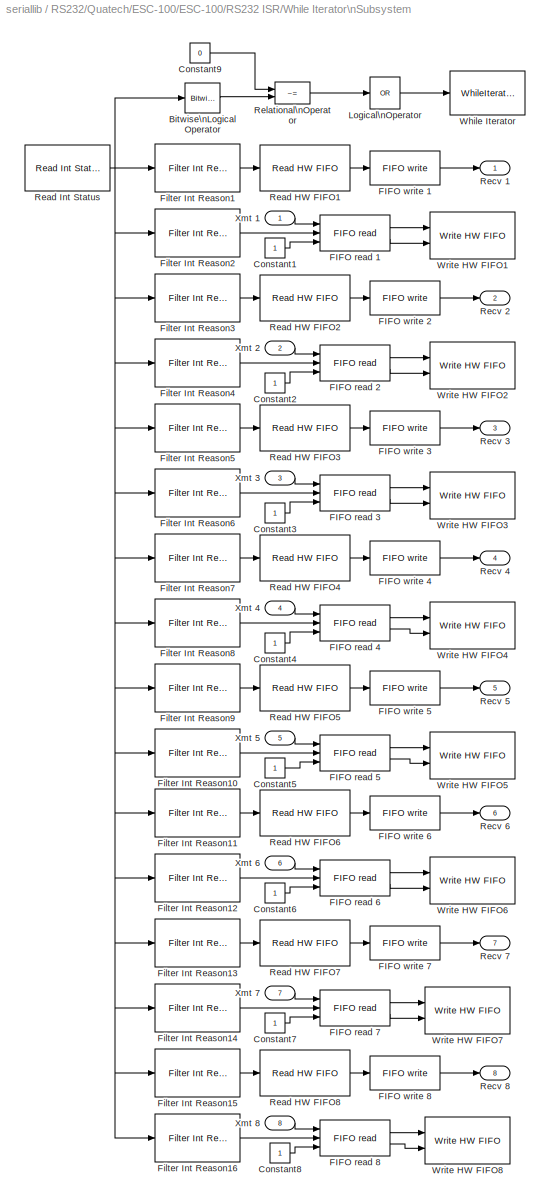
BLOCK [SubSystem] RS232/Quatech/ESC-100/ESC-100/RS232 ISR/While Iterator\nSubsystem
  Ports = [8, 8]
  TreatAsAtomicUnit = on
BLOCK [Reference] RS232/Quatech/ESC-100/ESC-100/RS232 ISR/While Iterator\nSubsystem/Bitwise\nLogical Operator  REF=simulink/Math\nOperations/Bitwise\nLogical Operator
  Operand2 = 'FF'
  Operator = AND
  Ports = [1, 1]
  SourceBlock = simulink/Math\nOperations/Bitwise\nLogical Operator
  SourceType = BitwiseOperator
BLOCK [Constant] RS232/Quatech/ESC-100/ESC-100/RS232 ISR/While Iterator\nSubsystem/Constant1
  OutDataTypeMode = uint32
  ShowAdditionalParam = on
BLOCK [Constant] RS232/Quatech/ESC-100/ESC-100/RS232 ISR/While Iterator\nSubsystem/Constant2
  OutDataTypeMode = uint32
  ShowAdditionalParam = on
BLOCK [Constant] RS232/Quatech/ESC-100/ESC-100/RS232 ISR/While Iterator\nSubsystem/Constant3
  OutDataTypeMode = uint32
  ShowAdditionalParam = on
BLOCK [Constant] RS232/Quatech/ESC-100/ESC-100/RS232 ISR/While Iterator\nSubsystem/Constant4
  OutDataTypeMode = uint32
  ShowAdditionalParam = on
BLOCK [Constant] RS232/Quatech/ESC-100/ESC-100/RS232 ISR/While Iterator\nSubsystem/Constant5
  OutDataTypeMode = uint32
  ShowAdditionalParam = on
BLOCK [Constant] RS232/Quatech/ESC-100/ESC-100/RS232 ISR/While Iterator\nSubsystem/Constant6
  OutDataTypeMode = uint32
  ShowAdditionalParam = on
BLOCK [Constant] RS232/Quatech/ESC-100/ESC-100/RS232 ISR/While Iterator\nSubsystem/Constant7
  OutDataTypeMode = uint32
  ShowAdditionalParam = on
BLOCK [Constant] RS232/Quatech/ESC-100/ESC-100/RS232 ISR/While Iterator\nSubsystem/Constant8
  OutDataTypeMode = uint32
  ShowAdditionalParam = on
BLOCK [Constant] RS232/Quatech/ESC-100/ESC-100/RS232 ISR/While Iterator\nSubsystem/Constant9
  OutDataTypeMode = uint32
  ShowAdditionalParam = on
  Value = 0
BLOCK [Reference] RS232/Quatech/ESC-100/ESC-100/RS232 ISR/While Iterator\nSubsystem/FIFO read 1  REF=xpclib/RS232/FIFO read 
  Ports = [3, 2]
  SourceBlock = xpclib/RS232/FIFO read
  SourceType = Asynchronous FIFO Block: reader
  delimiter = 13
  enable = on
  enableout = on
  maxsize = 60
  minsize = 1
  outputtype = count+32 bit uint
  sampletime = -1
  usedelimiter = off
BLOCK [Reference] RS232/Quatech/ESC-100/ESC-100/RS232 ISR/While Iterator\nSubsystem/FIFO read 2  REF=xpclib/RS232/FIFO read 
  Ports = [3, 2]
  SourceBlock = xpclib/RS232/FIFO read
  SourceType = Asynchronous FIFO Block: reader
  delimiter = 13
  enable = on
  enableout = on
  maxsize = 60
  minsize = 1
  outputtype = count+32 bit uint
  sampletime = -1
  usedelimiter = off
BLOCK [Reference] RS232/Quatech/ESC-100/ESC-100/RS232 ISR/While Iterator\nSubsystem/FIFO read 3  REF=xpclib/RS232/FIFO read 
  Ports = [3, 2]
  SourceBlock = xpclib/RS232/FIFO read
  SourceType = Asynchronous FIFO Block: reader
  delimiter = 13
  enable = on
  enableout = on
  maxsize = 60
  minsize = 1
  outputtype = count+32 bit uint
  sampletime = -1
  usedelimiter = off
BLOCK [Reference] RS232/Quatech/ESC-100/ESC-100/RS232 ISR/While Iterator\nSubsystem/FIFO read 4  REF=xpclib/RS232/FIFO read 
  Ports = [3, 2]
  SourceBlock = xpclib/RS232/FIFO read
  SourceType = Asynchronous FIFO Block: reader
  delimiter = 13
  enable = on
  enableout = on
  maxsize = 60
  minsize = 1
  outputtype = count+32 bit uint
  sampletime = -1
  usedelimiter = off
BLOCK [Reference] RS232/Quatech/ESC-100/ESC-100/RS232 ISR/While Iterator\nSubsystem/FIFO read 5  REF=xpclib/RS232/FIFO read 
  Ports = [3, 2]
  SourceBlock = xpclib/RS232/FIFO read
  SourceType = Asynchronous FIFO Block: reader
  delimiter = 13
  enable = on
  enableout = on
  maxsize = 60
  minsize = 1
  outputtype = count+32 bit uint
  sampletime = -1
  usedelimiter = off
BLOCK [Reference] RS232/Quatech/ESC-100/ESC-100/RS232 ISR/While Iterator\nSubsystem/FIFO read 6  REF=xpclib/RS232/FIFO read 
  Ports = [3, 2]
  SourceBlock = xpclib/RS232/FIFO read
  SourceType = Asynchronous FIFO Block: reader
  delimiter = 13
  enable = on
  enableout = on
  maxsize = 60
  minsize = 1
  outputtype = count+32 bit uint
  sampletime = -1
  usedelimiter = off
BLOCK [Reference] RS232/Quatech/ESC-100/ESC-100/RS232 ISR/While Iterator\nSubsystem/FIFO read 7  REF=xpclib/RS232/FIFO read 
  Ports = [3, 2]
  SourceBlock = xpclib/RS232/FIFO read
  SourceType = Asynchronous FIFO Block: reader
  delimiter = 13
  enable = on
  enableout = on
  maxsize = 60
  minsize = 1
  outputtype = count+32 bit uint
  sampletime = -1
  usedelimiter = off
BLOCK [Reference] RS232/Quatech/ESC-100/ESC-100/RS232 ISR/While Iterator\nSubsystem/FIFO read 8  REF=xpclib/RS232/FIFO read 
  Ports = [3, 2]
  SourceBlock = xpclib/RS232/FIFO read
  SourceType = Asynchronous FIFO Block: reader
  delimiter = 13
  enable = on
  enableout = on
  maxsize = 60
  minsize = 1
  outputtype = count+32 bit uint
  sampletime = -1
  usedelimiter = off
BLOCK [Reference] RS232/Quatech/ESC-100/ESC-100/RS232 ISR/While Iterator\nSubsystem/FIFO write 1  REF=xpclib/RS232/FIFO write 
  Ports = [1, 1]
  SourceBlock = xpclib/RS232/FIFO write
  SourceType = Asynchronous FIFO Block: writer
  inputtype = count+32 bit uint
  present = off
  sampletime = -1
  size = 1024
BLOCK [Reference] RS232/Quatech/ESC-100/ESC-100/RS232 ISR/While Iterator\nSubsystem/FIFO write 2  REF=xpclib/RS232/FIFO write 
  Ports = [1, 1]
  SourceBlock = xpclib/RS232/FIFO write
  SourceType = Asynchronous FIFO Block: writer
  inputtype = count+32 bit uint
  present = off
  sampletime = -1
  size = 1024
BLOCK [Reference] RS232/Quatech/ESC-100/ESC-100/RS232 ISR/While Iterator\nSubsystem/FIFO write 3  REF=xpclib/RS232/FIFO write 
  Ports = [1, 1]
  SourceBlock = xpclib/RS232/FIFO write
  SourceType = Asynchronous FIFO Block: writer
  inputtype = count+32 bit uint
  present = off
  sampletime = -1
  size = 1024
BLOCK [Reference] RS232/Quatech/ESC-100/ESC-100/RS232 ISR/While Iterator\nSubsystem/FIFO write 4  REF=xpclib/RS232/FIFO write 
  Ports = [1, 1]
  SourceBlock = xpclib/RS232/FIFO write
  SourceType = Asynchronous FIFO Block: writer
  inputtype = count+32 bit uint
  present = off
  sampletime = -1
  size = 1024
BLOCK [Reference] RS232/Quatech/ESC-100/ESC-100/RS232 ISR/While Iterator\nSubsystem/FIFO write 5  REF=xpclib/RS232/FIFO write 
  Ports = [1, 1]
  SourceBlock = xpclib/RS232/FIFO write
  SourceType = Asynchronous FIFO Block: writer
  inputtype = count+32 bit uint
  present = off
  sampletime = -1
  size = 1024
BLOCK [Reference] RS232/Quatech/ESC-100/ESC-100/RS232 ISR/While Iterator\nSubsystem/FIFO write 6  REF=xpclib/RS232/FIFO write 
  Ports = [1, 1]
  SourceBlock = xpclib/RS232/FIFO write
  SourceType = Asynchronous FIFO Block: writer
  inputtype = count+32 bit uint
  present = off
  sampletime = -1
  size = 1024
BLOCK [Reference] RS232/Quatech/ESC-100/ESC-100/RS232 ISR/While Iterator\nSubsystem/FIFO write 7  REF=xpclib/RS232/FIFO write 
  Ports = [1, 1]
  SourceBlock = xpclib/RS232/FIFO write
  SourceType = Asynchronous FIFO Block: writer
  inputtype = count+32 bit uint
  present = off
  sampletime = -1
  size = 1024
BLOCK [Reference] RS232/Quatech/ESC-100/ESC-100/RS232 ISR/While Iterator\nSubsystem/FIFO write 8  REF=xpclib/RS232/FIFO write 
  Ports = [1, 1]
  SourceBlock = xpclib/RS232/FIFO write
  SourceType = Asynchronous FIFO Block: writer
  inputtype = count+32 bit uint
  present = off
  sampletime = -1
  size = 1024
BLOCK [Reference] RS232/Quatech/ESC-100/ESC-100/RS232 ISR/While Iterator\nSubsystem/Filter Int Reason1  REF=xpclib/RS232/Quatech/ESC-100/ESC-100\nInternal\nblocks/Filter Int Reason
  Ports = [1, 1]
  SourceBlock = xpclib/RS232/Quatech/ESC-100/ESC-100\nInternal\nblocks/Filter Int Reason
  SourceType = Interrupt Source Filter
  port = 1
  value = Receive data
BLOCK [Reference] RS232/Quatech/ESC-100/ESC-100/RS232 ISR/While Iterator\nSubsystem/Filter Int Reason10  REF=xpclib/RS232/Quatech/ESC-100/ESC-100\nInternal\nblocks/Filter Int Reason
  Ports = [1, 1]
  SourceBlock = xpclib/RS232/Quatech/ESC-100/ESC-100\nInternal\nblocks/Filter Int Reason
  SourceType = Interrupt Source Filter
  port = 5
  value = Transmitter empty
BLOCK [Reference] RS232/Quatech/ESC-100/ESC-100/RS232 ISR/While Iterator\nSubsystem/Filter Int Reason11  REF=xpclib/RS232/Quatech/ESC-100/ESC-100\nInternal\nblocks/Filter Int Reason
  Ports = [1, 1]
  SourceBlock = xpclib/RS232/Quatech/ESC-100/ESC-100\nInternal\nblocks/Filter Int Reason
  SourceType = Interrupt Source Filter
  port = 6
  value = Receive data
BLOCK [Reference] RS232/Quatech/ESC-100/ESC-100/RS232 ISR/While Iterator\nSubsystem/Filter Int Reason12  REF=xpclib/RS232/Quatech/ESC-100/ESC-100\nInternal\nblocks/Filter Int Reason
  Ports = [1, 1]
  SourceBlock = xpclib/RS232/Quatech/ESC-100/ESC-100\nInternal\nblocks/Filter Int Reason
  SourceType = Interrupt Source Filter
  port = 6
  value = Transmitter empty
BLOCK [Reference] RS232/Quatech/ESC-100/ESC-100/RS232 ISR/While Iterator\nSubsystem/Filter Int Reason13  REF=xpclib/RS232/Quatech/ESC-100/ESC-100\nInternal\nblocks/Filter Int Reason
  Ports = [1, 1]
  SourceBlock = xpclib/RS232/Quatech/ESC-100/ESC-100\nInternal\nblocks/Filter Int Reason
  SourceType = Interrupt Source Filter
  port = 7
  value = Receive data
BLOCK [Reference] RS232/Quatech/ESC-100/ESC-100/RS232 ISR/While Iterator\nSubsystem/Filter Int Reason14  REF=xpclib/RS232/Quatech/ESC-100/ESC-100\nInternal\nblocks/Filter Int Reason
  Ports = [1, 1]
  SourceBlock = xpclib/RS232/Quatech/ESC-100/ESC-100\nInternal\nblocks/Filter Int Reason
  SourceType = Interrupt Source Filter
  port = 7
  value = Transmitter empty
BLOCK [Reference] RS232/Quatech/ESC-100/ESC-100/RS232 ISR/While Iterator\nSubsystem/Filter Int Reason15  REF=xpclib/RS232/Quatech/ESC-100/ESC-100\nInternal\nblocks/Filter Int Reason
  Ports = [1, 1]
  SourceBlock = xpclib/RS232/Quatech/ESC-100/ESC-100\nInternal\nblocks/Filter Int Reason
  SourceType = Interrupt Source Filter
  port = 8
  value = Receive data
BLOCK [Reference] RS232/Quatech/ESC-100/ESC-100/RS232 ISR/While Iterator\nSubsystem/Filter Int Reason16  REF=xpclib/RS232/Quatech/ESC-100/ESC-100\nInternal\nblocks/Filter Int Reason
  Ports = [1, 1]
  SourceBlock = xpclib/RS232/Quatech/ESC-100/ESC-100\nInternal\nblocks/Filter Int Reason
  SourceType = Interrupt Source Filter
  port = 8
  value = Transmitter empty
BLOCK [Reference] RS232/Quatech/ESC-100/ESC-100/RS232 ISR/While Iterator\nSubsystem/Filter Int Reason2  REF=xpclib/RS232/Quatech/ESC-100/ESC-100\nInternal\nblocks/Filter Int Reason
  Ports = [1, 1]
  SourceBlock = xpclib/RS232/Quatech/ESC-100/ESC-100\nInternal\nblocks/Filter Int Reason
  SourceType = Interrupt Source Filter
  port = 1
  value = Transmitter empty
BLOCK [Reference] RS232/Quatech/ESC-100/ESC-100/RS232 ISR/While Iterator\nSubsystem/Filter Int Reason3  REF=xpclib/RS232/Quatech/ESC-100/ESC-100\nInternal\nblocks/Filter Int Reason
  Ports = [1, 1]
  SourceBlock = xpclib/RS232/Quatech/ESC-100/ESC-100\nInternal\nblocks/Filter Int Reason
  SourceType = Interrupt Source Filter
  port = 2
  value = Receive data
BLOCK [Reference] RS232/Quatech/ESC-100/ESC-100/RS232 ISR/While Iterator\nSubsystem/Filter Int Reason4  REF=xpclib/RS232/Quatech/ESC-100/ESC-100\nInternal\nblocks/Filter Int Reason
  Ports = [1, 1]
  SourceBlock = xpclib/RS232/Quatech/ESC-100/ESC-100\nInternal\nblocks/Filter Int Reason
  SourceType = Interrupt Source Filter
  port = 2
  value = Transmitter empty
BLOCK [Reference] RS232/Quatech/ESC-100/ESC-100/RS232 ISR/While Iterator\nSubsystem/Filter Int Reason5  REF=xpclib/RS232/Quatech/ESC-100/ESC-100\nInternal\nblocks/Filter Int Reason
  Ports = [1, 1]
  SourceBlock = xpclib/RS232/Quatech/ESC-100/ESC-100\nInternal\nblocks/Filter Int Reason
  SourceType = Interrupt Source Filter
  port = 3
  value = Receive data
BLOCK [Reference] RS232/Quatech/ESC-100/ESC-100/RS232 ISR/While Iterator\nSubsystem/Filter Int Reason6  REF=xpclib/RS232/Quatech/ESC-100/ESC-100\nInternal\nblocks/Filter Int Reason
  Ports = [1, 1]
  SourceBlock = xpclib/RS232/Quatech/ESC-100/ESC-100\nInternal\nblocks/Filter Int Reason
  SourceType = Interrupt Source Filter
  port = 3
  value = Transmitter empty
BLOCK [Reference] RS232/Quatech/ESC-100/ESC-100/RS232 ISR/While Iterator\nSubsystem/Filter Int Reason7  REF=xpclib/RS232/Quatech/ESC-100/ESC-100\nInternal\nblocks/Filter Int Reason
  Ports = [1, 1]
  SourceBlock = xpclib/RS232/Quatech/ESC-100/ESC-100\nInternal\nblocks/Filter Int Reason
  SourceType = Interrupt Source Filter
  port = 4
  value = Receive data
BLOCK [Reference] RS232/Quatech/ESC-100/ESC-100/RS232 ISR/While Iterator\nSubsystem/Filter Int Reason8  REF=xpclib/RS232/Quatech/ESC-100/ESC-100\nInternal\nblocks/Filter Int Reason
  Ports = [1, 1]
  SourceBlock = xpclib/RS232/Quatech/ESC-100/ESC-100\nInternal\nblocks/Filter Int Reason
  SourceType = Interrupt Source Filter
  port = 4
  value = Transmitter empty
BLOCK [Reference] RS232/Quatech/ESC-100/ESC-100/RS232 ISR/While Iterator\nSubsystem/Filter Int Reason9  REF=xpclib/RS232/Quatech/ESC-100/ESC-100\nInternal\nblocks/Filter Int Reason
  Ports = [1, 1]
  SourceBlock = xpclib/RS232/Quatech/ESC-100/ESC-100\nInternal\nblocks/Filter Int Reason
  SourceType = Interrupt Source Filter
  port = 5
  value = Receive data
BLOCK [Logic] RS232/Quatech/ESC-100/ESC-100/RS232 ISR/While Iterator\nSubsystem/Logical\nOperator
  AllPortsSameDT = off
  Inputs = 1
  Operator = OR
  Ports = [1, 1]
BLOCK [Reference] RS232/Quatech/ESC-100/ESC-100/RS232 ISR/While Iterator\nSubsystem/Read HW FIFO1  REF=xpclib/RS232/Quatech/ESC-100/ESC-100\nInternal\nblocks/Read HW FIFO
  Ports = [1, 1]
  SourceBlock = xpclib/RS232/Quatech/ESC-100/ESC-100\nInternal\nblocks/Read HW FIFO
  SourceType = Read Data Port
  flush = on
  port = 1
  slot = subslot
BLOCK [Reference] RS232/Quatech/ESC-100/ESC-100/RS232 ISR/While Iterator\nSubsystem/Read HW FIFO2  REF=xpclib/RS232/Quatech/ESC-100/ESC-100\nInternal\nblocks/Read HW FIFO
  Ports = [1, 1]
  SourceBlock = xpclib/RS232/Quatech/ESC-100/ESC-100\nInternal\nblocks/Read HW FIFO
  SourceType = Read Data Port
  flush = on
  port = 2
  slot = subslot
BLOCK [Reference] RS232/Quatech/ESC-100/ESC-100/RS232 ISR/While Iterator\nSubsystem/Read HW FIFO3  REF=xpclib/RS232/Quatech/ESC-100/ESC-100\nInternal\nblocks/Read HW FIFO
  Ports = [1, 1]
  SourceBlock = xpclib/RS232/Quatech/ESC-100/ESC-100\nInternal\nblocks/Read HW FIFO
  SourceType = Read Data Port
  flush = on
  port = 3
  slot = subslot
BLOCK [Reference] RS232/Quatech/ESC-100/ESC-100/RS232 ISR/While Iterator\nSubsystem/Read HW FIFO4  REF=xpclib/RS232/Quatech/ESC-100/ESC-100\nInternal\nblocks/Read HW FIFO
  Ports = [1, 1]
  SourceBlock = xpclib/RS232/Quatech/ESC-100/ESC-100\nInternal\nblocks/Read HW FIFO
  SourceType = Read Data Port
  flush = on
  port = 4
  slot = subslot
BLOCK [Reference] RS232/Quatech/ESC-100/ESC-100/RS232 ISR/While Iterator\nSubsystem/Read HW FIFO5  REF=xpclib/RS232/Quatech/ESC-100/ESC-100\nInternal\nblocks/Read HW FIFO
  Ports = [1, 1]
  SourceBlock = xpclib/RS232/Quatech/ESC-100/ESC-100\nInternal\nblocks/Read HW FIFO
  SourceType = Read Data Port
  flush = on
  port = 5
  slot = subslot
BLOCK [Reference] RS232/Quatech/ESC-100/ESC-100/RS232 ISR/While Iterator\nSubsystem/Read HW FIFO6  REF=xpclib/RS232/Quatech/ESC-100/ESC-100\nInternal\nblocks/Read HW FIFO
  Ports = [1, 1]
  SourceBlock = xpclib/RS232/Quatech/ESC-100/ESC-100\nInternal\nblocks/Read HW FIFO
  SourceType = Read Data Port
  flush = on
  port = 6
  slot = subslot
BLOCK [Reference] RS232/Quatech/ESC-100/ESC-100/RS232 ISR/While Iterator\nSubsystem/Read HW FIFO7  REF=xpclib/RS232/Quatech/ESC-100/ESC-100\nInternal\nblocks/Read HW FIFO
  Ports = [1, 1]
  SourceBlock = xpclib/RS232/Quatech/ESC-100/ESC-100\nInternal\nblocks/Read HW FIFO
  SourceType = Read Data Port
  flush = on
  port = 7
  slot = subslot
BLOCK [Reference] RS232/Quatech/ESC-100/ESC-100/RS232 ISR/While Iterator\nSubsystem/Read HW FIFO8  REF=xpclib/RS232/Quatech/ESC-100/ESC-100\nInternal\nblocks/Read HW FIFO
  Ports = [1, 1]
  SourceBlock = xpclib/RS232/Quatech/ESC-100/ESC-100\nInternal\nblocks/Read HW FIFO
  SourceType = Read Data Port
  flush = on
  port = 8
  slot = subslot
BLOCK [Reference] RS232/Quatech/ESC-100/ESC-100/RS232 ISR/While Iterator\nSubsystem/Read Int Status  REF=xpclib/RS232/Quatech/ESC-100/ESC-100\nInternal\nblocks/Read Int Status
  Ports = [0, 1]
  SourceBlock = xpclib/RS232/Quatech/ESC-100/ESC-100\nInternal\nblocks/Read Int Status
  SourceType = Interrupt Query
  slot = subslot
BLOCK [Outport] RS232/Quatech/ESC-100/ESC-100/RS232 ISR/While Iterator\nSubsystem/Recv 1
BLOCK [Outport] RS232/Quatech/ESC-100/ESC-100/RS232 ISR/While Iterator\nSubsystem/Recv 2
  Port = 2
BLOCK [Outport] RS232/Quatech/ESC-100/ESC-100/RS232 ISR/While Iterator\nSubsystem/Recv 3
  Port = 3
BLOCK [Outport] RS232/Quatech/ESC-100/ESC-100/RS232 ISR/While Iterator\nSubsystem/Recv 4
  Port = 4
BLOCK [Outport] RS232/Quatech/ESC-100/ESC-100/RS232 ISR/While Iterator\nSubsystem/Recv 5
  Port = 5
BLOCK [Outport] RS232/Quatech/ESC-100/ESC-100/RS232 ISR/While Iterator\nSubsystem/Recv 6
  Port = 6
BLOCK [Outport] RS232/Quatech/ESC-100/ESC-100/RS232 ISR/While Iterator\nSubsystem/Recv 7
  Port = 7
BLOCK [Outport] RS232/Quatech/ESC-100/ESC-100/RS232 ISR/While Iterator\nSubsystem/Recv 8
  Port = 8
BLOCK [RelationalOperator] RS232/Quatech/ESC-100/ESC-100/RS232 ISR/While Iterator\nSubsystem/Relational\nOperator
  InputSameDT = off
  Operator = ~=
BLOCK [WhileIterator] RS232/Quatech/ESC-100/ESC-100/RS232 ISR/While Iterator\nSubsystem/While Iterator
  MaxIters = 65
  Ports = [1]
  WhileBlockType = do-while
BLOCK [Reference] RS232/Quatech/ESC-100/ESC-100/RS232 ISR/While Iterator\nSubsystem/Write HW FIFO1  REF=xpclib/RS232/Quatech/ESC-100/ESC-100\nInternal\nblocks/Write HW FIFO
  Ports = [2]
  SourceBlock = xpclib/RS232/Quatech/ESC-100/ESC-100\nInternal\nblocks/Write HW FIFO
  SourceType = Write Data Port
  port = 1
  slot = subslot
BLOCK [Reference] RS232/Quatech/ESC-100/ESC-100/RS232 ISR/While Iterator\nSubsystem/Write HW FIFO2  REF=xpclib/RS232/Quatech/ESC-100/ESC-100\nInternal\nblocks/Write HW FIFO
  Ports = [2]
  SourceBlock = xpclib/RS232/Quatech/ESC-100/ESC-100\nInternal\nblocks/Write HW FIFO
  SourceType = Write Data Port
  port = 2
  slot = subslot
BLOCK [Reference] RS232/Quatech/ESC-100/ESC-100/RS232 ISR/While Iterator\nSubsystem/Write HW FIFO3  REF=xpclib/RS232/Quatech/ESC-100/ESC-100\nInternal\nblocks/Write HW FIFO
  Ports = [2]
  SourceBlock = xpclib/RS232/Quatech/ESC-100/ESC-100\nInternal\nblocks/Write HW FIFO
  SourceType = Write Data Port
  port = 3
  slot = subslot
BLOCK [Reference] RS232/Quatech/ESC-100/ESC-100/RS232 ISR/While Iterator\nSubsystem/Write HW FIFO4  REF=xpclib/RS232/Quatech/ESC-100/ESC-100\nInternal\nblocks/Write HW FIFO
  Ports = [2]
  SourceBlock = xpclib/RS232/Quatech/ESC-100/ESC-100\nInternal\nblocks/Write HW FIFO
  SourceType = Write Data Port
  port = 4
  slot = subslot
BLOCK [Reference] RS232/Quatech/ESC-100/ESC-100/RS232 ISR/While Iterator\nSubsystem/Write HW FIFO5  REF=xpclib/RS232/Quatech/ESC-100/ESC-100\nInternal\nblocks/Write HW FIFO
  Ports = [2]
  SourceBlock = xpclib/RS232/Quatech/ESC-100/ESC-100\nInternal\nblocks/Write HW FIFO
  SourceType = Write Data Port
  port = 5
  slot = subslot
BLOCK [Reference] RS232/Quatech/ESC-100/ESC-100/RS232 ISR/While Iterator\nSubsystem/Write HW FIFO6  REF=xpclib/RS232/Quatech/ESC-100/ESC-100\nInternal\nblocks/Write HW FIFO
  Ports = [2]
  SourceBlock = xpclib/RS232/Quatech/ESC-100/ESC-100\nInternal\nblocks/Write HW FIFO
  SourceType = Write Data Port
  port = 6
  slot = subslot
BLOCK [Reference] RS232/Quatech/ESC-100/ESC-100/RS232 ISR/While Iterator\nSubsystem/Write HW FIFO7  REF=xpclib/RS232/Quatech/ESC-100/ESC-100\nInternal\nblocks/Write HW FIFO
  Ports = [2]
  SourceBlock = xpclib/RS232/Quatech/ESC-100/ESC-100\nInternal\nblocks/Write HW FIFO
  SourceType = Write Data Port
  port = 7
  slot = subslot
BLOCK [Reference] RS232/Quatech/ESC-100/ESC-100/RS232 ISR/While Iterator\nSubsystem/Write HW FIFO8  REF=xpclib/RS232/Quatech/ESC-100/ESC-100\nInternal\nblocks/Write HW FIFO
  Ports = [2]
  SourceBlock = xpclib/RS232/Quatech/ESC-100/ESC-100\nInternal\nblocks/Write HW FIFO
  SourceType = Write Data Port
  port = 8
  slot = subslot
BLOCK [Inport] RS232/Quatech/ESC-100/ESC-100/RS232 ISR/While Iterator\nSubsystem/Xmt 1
BLOCK [Inport] RS232/Quatech/ESC-100/ESC-100/RS232 ISR/While Iterator\nSubsystem/Xmt 2
  Port = 2
BLOCK [Inport] RS232/Quatech/ESC-100/ESC-100/RS232 ISR/While Iterator\nSubsystem/Xmt 3
  Port = 3
BLOCK [Inport] RS232/Quatech/ESC-100/ESC-100/RS232 ISR/While Iterator\nSubsystem/Xmt 4
  Port = 4
BLOCK [Inport] RS232/Quatech/ESC-100/ESC-100/RS232 ISR/While Iterator\nSubsystem/Xmt 5
  Port = 5
BLOCK [Inport] RS232/Quatech/ESC-100/ESC-100/RS232 ISR/While Iterator\nSubsystem/Xmt 6
  Port = 6
BLOCK [Inport] RS232/Quatech/ESC-100/ESC-100/RS232 ISR/While Iterator\nSubsystem/Xmt 7
  Port = 7
BLOCK [Inport] RS232/Quatech/ESC-100/ESC-100/RS232 ISR/While Iterator\nSubsystem/Xmt 8
  Port = 8
BLOCK [Inport] RS232/Quatech/ESC-100/ESC-100/RS232 ISR/Xmt 1
BLOCK [Inport] RS232/Quatech/ESC-100/ESC-100/RS232 ISR/Xmt 2
  Port = 2
BLOCK [Inport] RS232/Quatech/ESC-100/ESC-100/RS232 ISR/Xmt 3
  Port = 3
BLOCK [Inport] RS232/Quatech/ESC-100/ESC-100/RS232 ISR/Xmt 4
  Port = 4
BLOCK [Inport] RS232/Quatech/ESC-100/ESC-100/RS232 ISR/Xmt 5
  Port = 5
BLOCK [Inport] RS232/Quatech/ESC-100/ESC-100/RS232 ISR/Xmt 6
  Port = 6
BLOCK [Inport] RS232/Quatech/ESC-100/ESC-100/RS232 ISR/Xmt 7
  Port = 7
BLOCK [Inport] RS232/Quatech/ESC-100/ESC-100/RS232 ISR/Xmt 8
  Port = 8
BLOCK [TriggerPort] RS232/Quatech/ESC-100/ESC-100/RS232 ISR/function
  Ports = []
  TriggerType = function-call
BLOCK [Reference] RS232/Quatech/ESC-100/ESC-100/Rate Transition  REF=vxlib/Asynchronous Support/Rate Transition  (lib defined in mdl_30542f85f50b)
  Ports = [1, 1]
  SourceBlock = vxlib/Asynchronous Support/Rate Transition
  SourceType = Rate Transition
  sample_time = -1
BLOCK [Reference] RS232/Quatech/ESC-100/ESC-100/Rate Transition1  REF=vxlib/Asynchronous Support/Rate Transition  (lib defined in mdl_30542f85f50b)
  Ports = [1, 1]
  SourceBlock = vxlib/Asynchronous Support/Rate Transition
  SourceType = Rate Transition
  sample_time = -1
BLOCK [Reference] RS232/Quatech/ESC-100/ESC-100/Rate Transition10  REF=vxlib/Asynchronous Support/Rate Transition  (lib defined in mdl_30542f85f50b)
  Ports = [1, 1]
  SourceBlock = vxlib/Asynchronous Support/Rate Transition
  SourceType = Rate Transition
  sample_time = -1
BLOCK [Reference] RS232/Quatech/ESC-100/ESC-100/Rate Transition11  REF=vxlib/Asynchronous Support/Rate Transition  (lib defined in mdl_30542f85f50b)
  Ports = [1, 1]
  SourceBlock = vxlib/Asynchronous Support/Rate Transition
  SourceType = Rate Transition
  sample_time = -1
BLOCK [Reference] RS232/Quatech/ESC-100/ESC-100/Rate Transition12  REF=vxlib/Asynchronous Support/Rate Transition  (lib defined in mdl_30542f85f50b)
  Ports = [1, 1]
  SourceBlock = vxlib/Asynchronous Support/Rate Transition
  SourceType = Rate Transition
  sample_time = -1
BLOCK [Reference] RS232/Quatech/ESC-100/ESC-100/Rate Transition13  REF=vxlib/Asynchronous Support/Rate Transition  (lib defined in mdl_30542f85f50b)
  Ports = [1, 1]
  SourceBlock = vxlib/Asynchronous Support/Rate Transition
  SourceType = Rate Transition
  sample_time = -1
BLOCK [Reference] RS232/Quatech/ESC-100/ESC-100/Rate Transition14  REF=vxlib/Asynchronous Support/Rate Transition  (lib defined in mdl_30542f85f50b)
  Ports = [1, 1]
  SourceBlock = vxlib/Asynchronous Support/Rate Transition
  SourceType = Rate Transition
  sample_time = -1
BLOCK [Reference] RS232/Quatech/ESC-100/ESC-100/Rate Transition15  REF=vxlib/Asynchronous Support/Rate Transition  (lib defined in mdl_30542f85f50b)
  Ports = [1, 1]
  SourceBlock = vxlib/Asynchronous Support/Rate Transition
  SourceType = Rate Transition
  sample_time = -1
BLOCK [Reference] RS232/Quatech/ESC-100/ESC-100/Rate Transition2  REF=vxlib/Asynchronous Support/Rate Transition  (lib defined in mdl_30542f85f50b)
  Ports = [1, 1]
  SourceBlock = vxlib/Asynchronous Support/Rate Transition
  SourceType = Rate Transition
  sample_time = -1
BLOCK [Reference] RS232/Quatech/ESC-100/ESC-100/Rate Transition3  REF=vxlib/Asynchronous Support/Rate Transition  (lib defined in mdl_30542f85f50b)
  Ports = [1, 1]
  SourceBlock = vxlib/Asynchronous Support/Rate Transition
  SourceType = Rate Transition
  sample_time = -1
BLOCK [Reference] RS232/Quatech/ESC-100/ESC-100/Rate Transition4  REF=vxlib/Asynchronous Support/Rate Transition  (lib defined in mdl_30542f85f50b)
  Ports = [1, 1]
  SourceBlock = vxlib/Asynchronous Support/Rate Transition
  SourceType = Rate Transition
  sample_time = -1
BLOCK [Reference] RS232/Quatech/ESC-100/ESC-100/Rate Transition5  REF=vxlib/Asynchronous Support/Rate Transition  (lib defined in mdl_30542f85f50b)
  Ports = [1, 1]
  SourceBlock = vxlib/Asynchronous Support/Rate Transition
  SourceType = Rate Transition
  sample_time = -1
BLOCK [Reference] RS232/Quatech/ESC-100/ESC-100/Rate Transition6  REF=vxlib/Asynchronous Support/Rate Transition  (lib defined in mdl_30542f85f50b)
  Ports = [1, 1]
  SourceBlock = vxlib/Asynchronous Support/Rate Transition
  SourceType = Rate Transition
  sample_time = -1
BLOCK [Reference] RS232/Quatech/ESC-100/ESC-100/Rate Transition7  REF=vxlib/Asynchronous Support/Rate Transition  (lib defined in mdl_30542f85f50b)
  Ports = [1, 1]
  SourceBlock = vxlib/Asynchronous Support/Rate Transition
  SourceType = Rate Transition
  sample_time = -1
BLOCK [Reference] RS232/Quatech/ESC-100/ESC-100/Rate Transition8  REF=vxlib/Asynchronous Support/Rate Transition  (lib defined in mdl_30542f85f50b)
  Ports = [1, 1]
  SourceBlock = vxlib/Asynchronous Support/Rate Transition
  SourceType = Rate Transition
  sample_time = -1
BLOCK [Reference] RS232/Quatech/ESC-100/ESC-100/Rate Transition9  REF=vxlib/Asynchronous Support/Rate Transition  (lib defined in mdl_30542f85f50b)
  Ports = [1, 1]
  SourceBlock = vxlib/Asynchronous Support/Rate Transition
  SourceType = Rate Transition
  sample_time = -1
BLOCK [Reference] RS232/Quatech/ESC-100/ESC-100/Setup1  REF=xpclib/RS232/Quatech/ESC-100/ESC-100\nInternal\nblocks/Setup
  Ports = []
  SourceBlock = xpclib/RS232/Quatech/ESC-100/ESC-100\nInternal\nblocks/Setup
  SourceType = setup
  baud = 19200
  ctsmode = on
  fmode = 64 deep
  nstop = 1
  parity = None
  port = 1
  rlevel = half full
  slot = brdslot
  width = 8
BLOCK [Reference] RS232/Quatech/ESC-100/ESC-100/Setup2  REF=xpclib/RS232/Quatech/ESC-100/ESC-100\nInternal\nblocks/Setup
  Ports = []
  SourceBlock = xpclib/RS232/Quatech/ESC-100/ESC-100\nInternal\nblocks/Setup
  SourceType = setup
  baud = 19200
  ctsmode = on
  fmode = 64 deep
  nstop = 1
  parity = None
  port = 2
  rlevel = half full
  slot = brdslot
  width = 8
BLOCK [Reference] RS232/Quatech/ESC-100/ESC-100/Setup3  REF=xpclib/RS232/Quatech/ESC-100/ESC-100\nInternal\nblocks/Setup
  Ports = []
  SourceBlock = xpclib/RS232/Quatech/ESC-100/ESC-100\nInternal\nblocks/Setup
  SourceType = setup
  baud = 19200
  ctsmode = on
  fmode = 64 deep
  nstop = 1
  parity = None
  port = 3
  rlevel = half full
  slot = brdslot
  width = 8
BLOCK [Reference] RS232/Quatech/ESC-100/ESC-100/Setup4  REF=xpclib/RS232/Quatech/ESC-100/ESC-100\nInternal\nblocks/Setup
  Ports = []
  SourceBlock = xpclib/RS232/Quatech/ESC-100/ESC-100\nInternal\nblocks/Setup
  SourceType = setup
  baud = 19200
  ctsmode = on
  fmode = 64 deep
  nstop = 1
  parity = None
  port = 4
  rlevel = half full
  slot = brdslot
  width = 8
BLOCK [Reference] RS232/Quatech/ESC-100/ESC-100/Setup5  REF=xpclib/RS232/Quatech/ESC-100/ESC-100\nInternal\nblocks/Setup
  Ports = []
  SourceBlock = xpclib/RS232/Quatech/ESC-100/ESC-100\nInternal\nblocks/Setup
  SourceType = setup
  baud = 19200
  ctsmode = on
  fmode = 64 deep
  nstop = 1
  parity = None
  port = 5
  rlevel = half full
  slot = brdslot
  width = 8
BLOCK [Reference] RS232/Quatech/ESC-100/ESC-100/Setup6  REF=xpclib/RS232/Quatech/ESC-100/ESC-100\nInternal\nblocks/Setup
  Ports = []
  SourceBlock = xpclib/RS232/Quatech/ESC-100/ESC-100\nInternal\nblocks/Setup
  SourceType = setup
  baud = 19200
  ctsmode = on
  fmode = 64 deep
  nstop = 1
  parity = None
  port = 6
  rlevel = half full
  slot = brdslot
  width = 8
BLOCK [Reference] RS232/Quatech/ESC-100/ESC-100/Setup7  REF=xpclib/RS232/Quatech/ESC-100/ESC-100\nInternal\nblocks/Setup
  Ports = []
  SourceBlock = xpclib/RS232/Quatech/ESC-100/ESC-100\nInternal\nblocks/Setup
  SourceType = setup
  baud = 19200
  ctsmode = on
  fmode = 64 deep
  nstop = 1
  parity = None
  port = 7
  rlevel = half full
  slot = brdslot
  width = 8
BLOCK [Reference] RS232/Quatech/ESC-100/ESC-100/Setup8  REF=xpclib/RS232/Quatech/ESC-100/ESC-100\nInternal\nblocks/Setup
  Ports = []
  SourceBlock = xpclib/RS232/Quatech/ESC-100/ESC-100\nInternal\nblocks/Setup
  SourceType = setup
  baud = 19200
  ctsmode = on
  fmode = 64 deep
  nstop = 1
  parity = None
  port = 8
  rlevel = half full
  slot = brdslot
  width = 8
BLOCK [SubSystem] RS232/Quatech/ESC-100/ESC-100\nInternal\nblocks
  Ports = []
  TreatAsAtomicUnit = off
BLOCK [S-Function] RS232/Quatech/ESC-100/ESC-100\nInternal\nblocks/Enable TX 
  FunctionName = sertxenable
  MaskCallbackString = |
  MaskDescription = ESC-100\nQuatech\nEnable TX Interrupt\n
  MaskDisplay = disp('ESC-100\\nQuatech\\nEnable TX int');\nport_label('input', 1, 'E');\n
  MaskEnableString = on,on
  MaskHelp = helpview(fullfile(docroot, 'mapfiles', 'xpc.map'), 'Quatech_Enable_Int')
  MaskIconFrame = on
  MaskIconOpaque = on
  MaskIconRotate = none
  MaskIconUnits = autoscale
  MaskInitialization = \n
  MaskPromptString = Port:|PCI slot: (-1 for autosearch)
  MaskSelfModifiable = on
  MaskStyleString = popup(1|2|3|4|5|6|7|8),edit
  MaskToolTipString = on,on
  MaskTunableValueString = on,on
  MaskType = Enable TX Int
  MaskValueString = 1|-1
  MaskVarAliasString = ,
  MaskVariables = port=@1;slot=@2;
  MaskVisibilityString = on,on
  Parameters = slot, port, 2
  Ports = [1]
BLOCK [S-Function] RS232/Quatech/ESC-100/ESC-100\nInternal\nblocks/Filter Int Reason
  FunctionName = filterqua
  MaskCallbackString = |
  MaskDescription = ESC-100\nQuatech\nInterrupt Source Filter\n
  MaskDisplay = disp('ESC-100\\nQuatech\\nFilter Int Reason');\nport_label('input', 1, 'S' );\nport_label('output', 1, 'E' );\n
  MaskEnableString = on,on
  MaskHelp = helpview(fullfile(docroot, 'mapfiles', 'xpc.map'), 'Quatech_Filter_Ints')
  MaskIconFrame = on
  MaskIconOpaque = on
  MaskIconRotate = none
  MaskIconUnits = autoscale
  MaskInitialization = \n
  MaskPromptString = Port:|Filter value:
  MaskSelfModifiable = on
  MaskStyleString = popup(1|2|3|4|5|6|7|8),popup(Receive data|Transmitter empty|Modem status change)
  MaskToolTipString = on,on
  MaskTunableValueString = on,on
  MaskType = Interrupt Source Filter
  MaskValueString = 1|Transmitter empty
  MaskVarAliasString = ,
  MaskVariables = port=@1;value=@2;
  MaskVisibilityString = on,on
  Parameters = port, 2, value
  Ports = [1, 1]
BLOCK [S-Function] RS232/Quatech/ESC-100/ESC-100\nInternal\nblocks/Int Check
  FunctionName = intcheckqua
  MaskCallbackString = |
  MaskDescription = ESC-100\nQuatech\nInterrupt Check\n
  MaskDisplay = disp('ESC-100\\nQuatech\\nInterrupt Check');
  MaskEnableString = on,on
  MaskHelp = helpview(fullfile(docroot, 'mapfiles', 'xpc.map'), 'Quatech_Interrupt_Check')
  MaskIconFrame = on
  MaskIconOpaque = on
  MaskIconRotate = none
  MaskIconUnits = autoscale
  MaskInitialization = boardtype = 2;\n
  MaskPromptString = PCI slot: (-1 for autosearch)|IRQ Line Number
  MaskSelfModifiable = on
  MaskStyleString = edit,popup(5|6|7|8|9|10|11|12|13|14|15)
  MaskToolTipString = on,on
  MaskTunableValueString = on,on
  MaskType = interrupt check
  MaskValueString = -1|5
  MaskVarAliasString = ,
  MaskVariables = slot=@1;irqnum=@2;
  MaskVisibilityString = on,on
  Parameters = slot, irqnum+4, boardtype,
  Ports = []
BLOCK [S-Function] RS232/Quatech/ESC-100/ESC-100\nInternal\nblocks/Read HW FIFO
  FunctionName = serreadqua
  MaskCallbackString = ||
  MaskDescription = ESC-100\nQuatech\nRead Data Port\n
  MaskDisplay = disp('ESC-100\\nQuatech\\nRead HW FIFO');\nport_label('input', 1, 'E');\nport_label('output', 1, 'D');
  MaskEnableString = on,on,on
  MaskHelp = helpview(fullfile(docroot, 'mapfiles', 'xpc.map'), 'Quatech_Read_HW')
  MaskIconFrame = on
  MaskIconOpaque = on
  MaskIconRotate = none
  MaskIconUnits = autoscale
  MaskPromptString = Port:|Flush HW FIFO on startup|PCI slot: (-1 for autosearch)
  MaskSelfModifiable = on
  MaskStyleString = popup(1|2|3|4|5|6|7|8),checkbox,edit
  MaskToolTipString = on,on,on
  MaskTunableValueString = on,on,on
  MaskType = Read Data Port
  MaskValueString = 1|on|-1
  MaskVarAliasString = ,,
  MaskVariables = port=@1;flush=@2;slot=@3;
  MaskVisibilityString = on,on,on
  Parameters = slot, port, 2, flush
  Ports = [1, 1]
BLOCK [S-Function] RS232/Quatech/ESC-100/ESC-100\nInternal\nblocks/Read Int Status
  FunctionName = Iqueryqua
  MaskDescription = ESC-100\nQuatech\nInterrupt Query\n
  MaskDisplay = disp('ESC-100\\nQuatech\\nRead Int Status');\nport_label('output', 1, 'S' );\n
  MaskEnableString = on
  MaskHelp = helpview(fullfile(docroot, 'mapfiles', 'xpc.map'), 'Quatech_Interrupt_Query')
  MaskIconFrame = on
  MaskIconOpaque = on
  MaskIconRotate = none
  MaskIconUnits = autoscale
  MaskPromptString = PCI slot: (-1 for autosearch)
  MaskSelfModifiable = on
  MaskStyleString = edit
  MaskToolTipString = on
  MaskTunableValueString = on
  MaskType = Interrupt Query
  MaskValueString = -1
  MaskVariables = slot=@1;
  MaskVisibilityString = on
  Parameters = slot, 2
  Ports = [0, 1]
BLOCK [S-Function] RS232/Quatech/ESC-100/ESC-100\nInternal\nblocks/Setup
  FunctionName = setupqua
  MaskCallbackString = ||||||||
  MaskDescription = ESC-100\nQuatech\nSetup\n
  MaskDisplay = disp('ESC-100\\nQuatech\\nSetup')
  MaskEnableString = on,on,on,on,on,on,on,on,on
  MaskHelp = helpview(fullfile(docroot, 'mapfiles', 'xpc.map'), 'Quatech_Setup')
  MaskIconFrame = on
  MaskIconOpaque = on
  MaskIconRotate = none
  MaskIconUnits = autoscale
  MaskInitialization = boardtype = 2;\n\n
  MaskPromptString = Port:|Baud rate:|Number of data bits:|Number of stop bits:|Parity:|Fifo mode:|Receive trigger level:|Enable auto RTS/CTS|PCI slot: (-1 for autosearch)
  MaskSelfModifiable = on
  MaskStyleString = popup(1|2|3|4|5|6|7|8),popup(921600|460800|230400|115200|57600|38400|19200|9600|4800|2400|1200|600|300|110),popup(5|6|7|8),popup(1|2),popup(None|Even|Odd|Mark|Space),popup(64 deep|16 deep|1 deep),popup(1|quarter full|half full|almost full),checkbox,edit
  MaskToolTipString = on,on,on,on,on,on,on,on,on
  MaskTunableValueString = on,on,on,on,on,on,on,on,on
  MaskType = setup
  MaskValueString = 1|115200|8|1|None|64 deep|half full|off|-1
  MaskVarAliasString = ,,,,,,,,
  MaskVariables = port=@1;baud=@2;width=@3;nstop=@4;parity=@5;fmode=@6;rlevel=@7;ctsmode=@8;slot=@9;
  MaskVisibilityString = on,on,on,on,on,on,on,on,on
  Parameters = slot, boardtype, port, baud, width, nstop, parity, fmode, ctsmode, rlevel
  Ports = []
BLOCK [S-Function] RS232/Quatech/ESC-100/ESC-100\nInternal\nblocks/Write HW FIFO
  FunctionName = serwritequa
  MaskCallbackString = |
  MaskDescription = ESC-100\nQuatech\nWrite Data Port\n
  MaskDisplay = disp('ESC-100\\nQuatech\\nWrite HW FIFO');\nport_label('input', 1, 'D');\nport_label('input', 2, 'E');
  MaskEnableString = on,on
  MaskHelp = helpview(fullfile(docroot, 'mapfiles', 'xpc.map'), 'Quatech_Write_HW')
  MaskIconFrame = on
  MaskIconOpaque = on
  MaskIconRotate = none
  MaskIconUnits = autoscale
  MaskPromptString = Port:|PCI slot: (-1 for autosearch)
  MaskSelfModifiable = on
  MaskStyleString = popup(1|2|3|4|5|6|7|8),edit
  MaskToolTipString = on,on
  MaskTunableValueString = on,on
  MaskType = Write Data Port
  MaskValueString = 1|-1
  MaskVarAliasString = ,
  MaskVariables = port=@1;slot=@2;
  MaskVisibilityString = on,on
  Parameters = slot, port, 2, 0
  Ports = [2]
BLOCK [S-Function] RS232/Quatech/ESC-100/Modem Control
  FunctionName = modemcontrolqua
  InitFcn = mmodemcontrol(3)
  MaskCallbackString = |||
  MaskDescription = ESC-100\nQuatech\nModem Control
  MaskDisplay = disp('ESC-100\\nQuatech\\nModem Control');port_label('input',1,'RTS');port_label('input',2,'DTR');
  MaskEnableString = on,on,on,on
  MaskHelp = helpview(fullfile(docroot, 'mapfiles', 'xpc.map'), 'Quatech_MODEM_Control')
  MaskIconFrame = on
  MaskIconOpaque = on
  MaskIconRotate = none
  MaskIconUnits = autoscale
  MaskInitialization = count = 0;\nboardtype = 2;\n[maskdisplay, count] = mmodemcontrol( 2, rts, dtr, boardtype, 0, 0 );\nset_param( gcb, 'MaskDisplay', maskdisplay );\n
  MaskPromptString = Port:|RTS:|DTR:|PCI slot: (-1 for autosearch)
  MaskSelfModifiable = on
  MaskStyleString = popup(1|2|3|4|5|6|7|8),checkbox,checkbox,edit
  MaskToolTipString = on,on,on,on
  MaskTunableValueString = on,on,on,on
  MaskType = ESC-100 Modem Control
  MaskValueString = 1|on|on|-1
  MaskVarAliasString = ,,,
  MaskVariables = port=@1;rts=@2;dtr=@3;slot=@4;
  MaskVisibilityString = on,on,on,on
  Parameters = slot, port, boardtype, rts, dtr, count
  Ports = [2]
BLOCK [S-Function] RS232/Quatech/ESC-100/Modem Status
  FunctionName = modemstatusqua
  MaskCallbackString = ||||||
  MaskDescription = ESC-100\nQuatech\nModem Status
  MaskDisplay = disp('ESC-100\\nQuatech\\nModem Status');port_label('output',1,'CTS');port_label('output',2,'DSR');port_label('output',3,'RI');port_label('output',4,'DCD');
  MaskEnableString = on,on,on,on,on,on,on
  MaskHelp = helpview(fullfile(docroot, 'mapfiles', 'xpc.map'), 'Quatech_MODEM_Status')
  MaskIconFrame = on
  MaskIconOpaque = on
  MaskIconRotate = none
  MaskIconUnits = autoscale
  MaskInitialization = count = 0;\nboardtype = 2;\n[maskdisplay, count] = mmodemstatus( 2, cts, dsr, ring, dcd, boardtype );\nset_param( gcb, 'MaskDisplay', maskdisplay );\n
  MaskPromptString = Port:|CTS:|DSR:|RI:|DCD:|SampleTime:|PCI slot: (-1 for autosearch)
  MaskSelfModifiable = on
  MaskStyleString = popup(1|2|3|4|5|6|7|8),checkbox,checkbox,checkbox,checkbox,edit,edit
  MaskToolTipString = on,on,on,on,on,on,on
  MaskTunableValueString = on,on,on,on,on,on,on
  MaskType = Modem Status
  MaskValueString = 1|on|on|on|on|-1|-1
  MaskVarAliasString = ,,,,,,
  MaskVariables = port=@1;cts=@2;dsr=@3;ring=@4;dcd=@5;sampletime=@6;slot=@7;
  MaskVisibilityString = on,on,on,on,on,on,on
  Parameters = slot, port, boardtype, cts, dsr, ring, dcd, count, sampletime
  Ports = [0, 4]
BLOCK [SubSystem] RS232/Quatech/QSC-100
  Ports = []
  TreatAsAtomicUnit = off
BLOCK [S-Function] RS232/Quatech/QSC-100/Modem Control
  FunctionName = modemcontrolqua
  InitFcn = mmodemcontrol(3)
  MaskCallbackString = |||
  MaskDescription = QSC-100\nQuatech\nModem Control
  MaskDisplay = disp('QSC-100\\nQuatech\\nModem Control');port_label('input',1,'RTS');port_label('input',2,'DTR');
  MaskEnableString = on,on,on,on
  MaskHelp = helpview(fullfile(docroot, 'mapfiles', 'xpc.map'), 'Quatech_MODEM_Control')
  MaskIconFrame = on
  MaskIconOpaque = on
  MaskIconRotate = none
  MaskIconUnits = autoscale
  MaskInitialization = count = 0;\nboardtype = 1;\n[maskdisplay, count] = mmodemcontrol( 2, rts, dtr, boardtype, 0, 0 );\nset_param( gcb, 'MaskDisplay', maskdisplay );\n
  MaskPromptString = Port:|RTS:|DTR:|PCI slot: (-1 for autosearch)
  MaskSelfModifiable = on
  MaskStyleString = popup(1|2|3|4),checkbox,checkbox,edit
  MaskToolTipString = on,on,on,on
  MaskTunableValueString = on,on,on,on
  MaskType = QSC-100 Modem Control
  MaskValueString = 1|on|on|-1
  MaskVarAliasString = ,,,
  MaskVariables = port=@1;rts=@2;dtr=@3;slot=@4;
  MaskVisibilityString = on,on,on,on
  Parameters = slot, port, boardtype, rts, dtr, count
  Ports = [2]
BLOCK [S-Function] RS232/Quatech/QSC-100/Modem Status
  FunctionName = modemstatusqua
  MaskCallbackString = ||||||
  MaskDescription = QSC-100\nQuatech\nModem Status
  MaskDisplay = disp('QSC-100\\nQuatech\\nModem Status');port_label('output',1,'CTS');port_label('output',2,'DSR');port_label('output',3,'RI');port_label('output',4,'DCD');
  MaskEnableString = on,on,on,on,on,on,on
  MaskHelp = helpview(fullfile(docroot, 'mapfiles', 'xpc.map'), 'Quatech_MODEM_Status')
  MaskIconFrame = on
  MaskIconOpaque = on
  MaskIconRotate = none
  MaskIconUnits = autoscale
  MaskInitialization = count = 0;\nboardtype = 1;\n[maskdisplay, count] = mmodemstatus( 2, cts, dsr, ring, dcd, boardtype );\nset_param( gcb, 'MaskDisplay', maskdisplay );\n
  MaskPromptString = Port:|CTS:|DSR:|RI:|DCD:|SampleTime:|PCI slot: (-1 for autosearch)
  MaskSelfModifiable = on
  MaskStyleString = popup(1|2|3|4),checkbox,checkbox,checkbox,checkbox,edit,edit
  MaskToolTipString = on,on,on,on,on,on,on
  MaskTunableValueString = on,on,on,on,on,on,on
  MaskType = Modem Status
  MaskValueString = 1|on|on|on|on|-1|-1
  MaskVarAliasString = ,,,,,,
  MaskVariables = port=@1;cts=@2;dsr=@3;ring=@4;dcd=@5;sampletime=@6;slot=@7;
  MaskVisibilityString = on,on,on,on,on,on,on
  Parameters = slot, port, boardtype, cts, dsr, ring, dcd, count, sampletime
  Ports = [0, 4]
BLOCK [SubSystem] RS232/Quatech/QSC-100/QSC-100
  InitFcn = mquamask(3)
  MaskCallbackString = mquamask( 2, 4 );\n|mquamask( 2, 4 );||||||||||||||||||||||||||||||||||||||||||||||||||||||||||||||||||
  MaskDescription = QSC-100\nQuatech\nRS232 Send Receive Subsystem\n
  MaskDisplay = disp('QSC-100<path> Receive');\nport_label( 'input', 1, 'XMT1' );\nport_label( 'input', 2, 'XMT2' );\nport_label( 'input', 3, 'XMT3' );\nport_label( 'input', 4, 'XMT4' );\nport_label( 'output', 1, 'RCV1' );\nport_label( 'output', 2, 'RCV2' );\nport_label( 'output', 3, 'RCV3' );\nport_label( 'output', 4, 'RCV4' );\n
  MaskEnableString = on,on,on,on,on,on,on,on,on,on,on,on,on,on,on,on,on,on,on,on,on,on,on,on,on,on,on,on,on,on,on,on,on,on,on,on,on,on,on,on,on,on,on,on,on,on,on,on,on,on,on,on,on,on,on,on,on,on,on,on,on,on,on,on,on,on,on,on
  MaskHelp = helpview(fullfile(docroot, 'mapfiles', 'xpc.map'), 'Quatech_Subsystem')
  MaskIconFrame = on
  MaskIconOpaque = on
  MaskIconRotate = none
  MaskIconUnits = autoscale
  MaskInitialization = brdslot = slot;\nmquamask( 1, 4 );\n\n
  MaskPromptString = Parameter group:|Port to modify:|IRQ number:|Slot:|Baud rate:|Parity:|Data bits:|Stop bits:|Hardware fifo size:|Receive fifo interrupt level:|Auto RTS/CTS:|Transmit software fifo size:|Transmit fifo data type:|Receive software fifo size:|Receive maximum read:|Receive minimum read:|Read to delimiter:|Delimiter:|Receive data type:|Receive SampleTime:|Baud rate:|Parity:|Data bits:|Stop bits:|Hardware...<+850ch>
  MaskSelfModifiable = on
  MaskStyleString = popup(Board Setup|Basic Setup|Transmit Setup|Receive Setup),popup(1|2|3|4),edit,edit,popup(921600|460800|230400|115200|57600|38400|19200|9600|4800|2400|1200|600|300|110),popup(None|Even|Odd|Mark|Space),popup(5|6|7|8),popup(1|2),popup(64 deep|16 deep|1 deep),popup(1|quarter full|half full|almost full),checkbox,edit,popup(count+32 bit int|count+32 bit uint|count+16 bit int|count+16 bit uint|8 bit in...<+1784ch>
  MaskToolTipString = on,on,on,on,on,on,on,on,on,on,on,on,on,on,on,on,on,on,on,on,on,on,on,on,on,on,on,on,on,on,on,on,on,on,on,on,on,on,on,on,on,on,on,on,on,on,on,on,on,on,on,on,on,on,on,on,on,on,on,on,on,on,on,on,on,on,on,on
  MaskTunableValueString = on,on,on,on,on,on,on,on,on,on,on,on,on,on,on,on,on,on,on,on,on,on,on,on,on,on,on,on,on,on,on,on,on,on,on,on,on,on,on,on,on,on,on,on,on,on,on,on,on,on,on,on,on,on,on,on,on,on,on,on,on,on,on,on,on,on,on,on
  MaskType = QSC-100 RS232 Send Receive
  MaskValueString = Transmit Setup|1|7|-1|115200|None|8|1|64 deep|half full|on|1024|8 bit uint null terminated|1024|1024|1|on|13|count+16 bit uint|-1|115200|None|8|1|64 deep|half full|on|1024|8 bit uint null terminated|1024|1024|1|on|13|count+16 bit uint|-1|115200|None|8|1|64 deep|half full|on|1024|8 bit uint null terminated|1024|1024|1|on|13|count+16 bit uint|-1|115200|None|8|1|64 deep|half full|on|1024|8 bit uint n...<+53ch>
  MaskVarAliasString = ,,,,,,,,,,,,,,,,,,,,,,,,,,,,,,,,,,,,,,,,,,,,,,,,,,,,,,,,,,,,,,,,,,,
  MaskVariables = group=@1;port=@2;irqnum=&3;slot=@4;baud1=&5;parity1=&6;ndata1=&7;nstop1=&8;fifomode1=&9;rlevel1=&10;automode1=&11;xmtfifosize1=@12;xmtdatatype1=@13;rcvfifosize1=@14;rcvmaxread1=@15;rcvminread1=@16;rcvusedelim1=&17;rcvdelim1=&18;rcvdatatype1=@19;rcvsampletime1=@20;baud2=&21;parity2=&22;ndata2=&23;nstop2=&24;fifomode2=&25;rlevel2=&26;automode2=&27;xmtfifosize2=@28;xmtdatatype2=@29;rcvfifosize2=@30;r...<+566ch>
  MaskVisibilityString = on,on,off,off,off,off,off,off,off,off,off,on,on,off,off,off,off,off,off,off,off,off,off,off,off,off,off,off,off,off,off,off,off,off,off,off,off,off,off,off,off,off,off,off,off,off,off,off,off,off,off,off,off,off,off,off,off,off,off,off,off,off,off,off,off,off,off,off
  Ports = [4, 4]
  TreatAsAtomicUnit = on
BLOCK [Reference] RS232/Quatech/QSC-100/QSC-100/Enable TX 1  REF=xpclib/RS232/Quatech/QSC-100/QSC-100\nInternal\n blocks/Enable TX 
  Ports = [1]
  SourceBlock = xpclib/RS232/Quatech/QSC-100/QSC-100\nInternal\n blocks/Enable TX
  SourceType = Enable TX Int
  port = 1
  slot = brdslot
BLOCK [Reference] RS232/Quatech/QSC-100/QSC-100/Enable TX 2  REF=xpclib/RS232/Quatech/QSC-100/QSC-100\nInternal\n blocks/Enable TX 
  Ports = [1]
  SourceBlock = xpclib/RS232/Quatech/QSC-100/QSC-100\nInternal\n blocks/Enable TX
  SourceType = Enable TX Int
  port = 2
  slot = brdslot
BLOCK [Reference] RS232/Quatech/QSC-100/QSC-100/Enable TX 3  REF=xpclib/RS232/Quatech/QSC-100/QSC-100\nInternal\n blocks/Enable TX 
  Ports = [1]
  SourceBlock = xpclib/RS232/Quatech/QSC-100/QSC-100\nInternal\n blocks/Enable TX
  SourceType = Enable TX Int
  port = 3
  slot = brdslot
BLOCK [Reference] RS232/Quatech/QSC-100/QSC-100/Enable TX 4  REF=xpclib/RS232/Quatech/QSC-100/QSC-100\nInternal\n blocks/Enable TX 
  Ports = [1]
  SourceBlock = xpclib/RS232/Quatech/QSC-100/QSC-100\nInternal\n blocks/Enable TX
  SourceType = Enable TX Int
  port = 4
  slot = brdslot
BLOCK [Reference] RS232/Quatech/QSC-100/QSC-100/FIFO read 1  REF=xpclib/RS232/FIFO read 
  Ports = [1, 1]
  SourceBlock = xpclib/RS232/FIFO read
  SourceType = Asynchronous FIFO Block: reader
  delimiter = 13
  enable = off
  enableout = off
  maxsize = 1024
  minsize = 1
  outputtype = count+16 bit uint
  sampletime = -1
  usedelimiter = on
BLOCK [Reference] RS232/Quatech/QSC-100/QSC-100/FIFO read 2  REF=xpclib/RS232/FIFO read 
  Ports = [1, 1]
  SourceBlock = xpclib/RS232/FIFO read
  SourceType = Asynchronous FIFO Block: reader
  delimiter = 13
  enable = off
  enableout = off
  maxsize = 1024
  minsize = 1
  outputtype = count+16 bit uint
  sampletime = -1
  usedelimiter = on
BLOCK [Reference] RS232/Quatech/QSC-100/QSC-100/FIFO read 3  REF=xpclib/RS232/FIFO read 
  Ports = [1, 1]
  SourceBlock = xpclib/RS232/FIFO read
  SourceType = Asynchronous FIFO Block: reader
  delimiter = 13
  enable = off
  enableout = off
  maxsize = 1024
  minsize = 1
  outputtype = count+16 bit uint
  sampletime = -1
  usedelimiter = on
BLOCK [Reference] RS232/Quatech/QSC-100/QSC-100/FIFO read 4  REF=xpclib/RS232/FIFO read 
  Ports = [1, 1]
  SourceBlock = xpclib/RS232/FIFO read
  SourceType = Asynchronous FIFO Block: reader
  delimiter = 13
  enable = off
  enableout = off
  maxsize = 1024
  minsize = 1
  outputtype = count+16 bit uint
  sampletime = -1
  usedelimiter = on
BLOCK [Reference] RS232/Quatech/QSC-100/QSC-100/FIFO write 1  REF=xpclib/RS232/FIFO write 
  Ports = [1, 2]
  SourceBlock = xpclib/RS232/FIFO write
  SourceType = Asynchronous FIFO Block: writer
  inputtype = 8 bit uint null terminated
  present = on
  sampletime = -1
  size = 1024
BLOCK [Reference] RS232/Quatech/QSC-100/QSC-100/FIFO write 2  REF=xpclib/RS232/FIFO write 
  Ports = [1, 2]
  SourceBlock = xpclib/RS232/FIFO write
  SourceType = Asynchronous FIFO Block: writer
  inputtype = 8 bit uint null terminated
  present = on
  sampletime = -1
  size = 1024
BLOCK [Reference] RS232/Quatech/QSC-100/QSC-100/FIFO write 3  REF=xpclib/RS232/FIFO write 
  Ports = [1, 2]
  SourceBlock = xpclib/RS232/FIFO write
  SourceType = Asynchronous FIFO Block: writer
  inputtype = 8 bit uint null terminated
  present = on
  sampletime = -1
  size = 1024
BLOCK [Reference] RS232/Quatech/QSC-100/QSC-100/FIFO write 4  REF=xpclib/RS232/FIFO write 
  Ports = [1, 2]
  SourceBlock = xpclib/RS232/FIFO write
  SourceType = Asynchronous FIFO Block: writer
  inputtype = 8 bit uint null terminated
  present = on
  sampletime = -1
  size = 1024
BLOCK [Reference] RS232/Quatech/QSC-100/QSC-100/IRQ Source  REF=xpclib/Asynchronous\nEvent/IRQ Source
  Ports = [0, 1]
  SourceBlock = xpclib/Asynchronous\nEvent/IRQ Source
  SourceType = xpcinterrupt
  b_type = None/Other
  irqNo = 7
  preempt = off
  slot = brdslot
BLOCK [Inport] RS232/Quatech/QSC-100/QSC-100/In1
BLOCK [Inport] RS232/Quatech/QSC-100/QSC-100/In2
  Port = 2
BLOCK [Inport] RS232/Quatech/QSC-100/QSC-100/In3
  Port = 3
BLOCK [Inport] RS232/Quatech/QSC-100/QSC-100/In4
  Port = 4
BLOCK [Reference] RS232/Quatech/QSC-100/QSC-100/Int Check  REF=xpclib/RS232/Quatech/QSC-100/QSC-100\nInternal\n blocks/Int Check
  Ports = []
  SourceBlock = xpclib/RS232/Quatech/QSC-100/QSC-100\nInternal\n blocks/Int Check
  SourceType = interrupt check
  irqnum = 7
  slot = brdslot
BLOCK [Outport] RS232/Quatech/QSC-100/QSC-100/Out1
BLOCK [Outport] RS232/Quatech/QSC-100/QSC-100/Out2
  Port = 2
BLOCK [Outport] RS232/Quatech/QSC-100/QSC-100/Out3
  Port = 3
BLOCK [Outport] RS232/Quatech/QSC-100/QSC-100/Out4
  Port = 4
BLOCK [SubSystem] RS232/Quatech/QSC-100/QSC-100/RS232 ISR
  MaskDescription = QSC-100\nQuatech\nInterrupt Service Routine\n
  MaskDisplay = disp('QSC-100\\nISR');\nport_label('input', 1, 'XMT1');\nport_label('input', 2, 'XMT2');\nport_label('input', 3, 'XMT3');\nport_label('input', 4, 'XMT4');\nport_label('output', 1, 'RCV1');\nport_label('output', 2, 'RCV2');\nport_label('output', 3, 'RCV3');\nport_label('output', 4, 'RCV4');\n
  MaskEnableString = on
  MaskIconFrame = on
  MaskIconOpaque = on
  MaskIconRotate = none
  MaskIconUnits = autoscale
  MaskInitialization = subslot = slot;\n
  MaskPromptString = Slot:
  MaskSelfModifiable = on
  MaskStyleString = edit
  MaskToolTipString = on
  MaskTunableValueString = on
  MaskType = RS232 ISR
  MaskValueString = brdslot
  MaskVariables = slot=@1;
  MaskVisibilityString = on
  Ports = [4, 4, 0, 1]
  TreatAsAtomicUnit = on
BLOCK [Outport] RS232/Quatech/QSC-100/QSC-100/RS232 ISR/Recv 1
BLOCK [Outport] RS232/Quatech/QSC-100/QSC-100/RS232 ISR/Recv 2
  Port = 2
BLOCK [Outport] RS232/Quatech/QSC-100/QSC-100/RS232 ISR/Recv 3
  Port = 3
BLOCK [Outport] RS232/Quatech/QSC-100/QSC-100/RS232 ISR/Recv 4
  Port = 4
BLOCK [SubSystem] RS232/Quatech/QSC-100/QSC-100/RS232 ISR/While Iterator\nSubsystem
  Ports = [4, 4]
  TreatAsAtomicUnit = on
BLOCK [Reference] RS232/Quatech/QSC-100/QSC-100/RS232 ISR/While Iterator\nSubsystem/Bitwise\nLogical Operator  REF=simulink/Math\nOperations/Bitwise\nLogical Operator
  Operand2 = 'FF'
  Operator = AND
  Ports = [1, 1]
  SourceBlock = simulink/Math\nOperations/Bitwise\nLogical Operator
  SourceType = BitwiseOperator
BLOCK [Constant] RS232/Quatech/QSC-100/QSC-100/RS232 ISR/While Iterator\nSubsystem/Constant1
  OutDataTypeMode = uint32
  ShowAdditionalParam = on
BLOCK [Constant] RS232/Quatech/QSC-100/QSC-100/RS232 ISR/While Iterator\nSubsystem/Constant2
  OutDataTypeMode = uint32
  ShowAdditionalParam = on
BLOCK [Constant] RS232/Quatech/QSC-100/QSC-100/RS232 ISR/While Iterator\nSubsystem/Constant3
  OutDataTypeMode = uint32
  ShowAdditionalParam = on
BLOCK [Constant] RS232/Quatech/QSC-100/QSC-100/RS232 ISR/While Iterator\nSubsystem/Constant4
  OutDataTypeMode = uint32
  ShowAdditionalParam = on
BLOCK [Constant] RS232/Quatech/QSC-100/QSC-100/RS232 ISR/While Iterator\nSubsystem/Constant9
  OutDataTypeMode = uint32
  ShowAdditionalParam = on
  Value = 0
BLOCK [Reference] RS232/Quatech/QSC-100/QSC-100/RS232 ISR/While Iterator\nSubsystem/FIFO read 1  REF=xpclib/RS232/FIFO read 
  Ports = [3, 2]
  SourceBlock = xpclib/RS232/FIFO read
  SourceType = Asynchronous FIFO Block: reader
  delimiter = 13
  enable = on
  enableout = on
  maxsize = 60
  minsize = 1
  outputtype = count+32 bit uint
  sampletime = -1
  usedelimiter = off
BLOCK [Reference] RS232/Quatech/QSC-100/QSC-100/RS232 ISR/While Iterator\nSubsystem/FIFO read 2  REF=xpclib/RS232/FIFO read 
  Ports = [3, 2]
  SourceBlock = xpclib/RS232/FIFO read
  SourceType = Asynchronous FIFO Block: reader
  delimiter = 13
  enable = on
  enableout = on
  maxsize = 60
  minsize = 1
  outputtype = count+32 bit uint
  sampletime = -1
  usedelimiter = off
BLOCK [Reference] RS232/Quatech/QSC-100/QSC-100/RS232 ISR/While Iterator\nSubsystem/FIFO read 3  REF=xpclib/RS232/FIFO read 
  Ports = [3, 2]
  SourceBlock = xpclib/RS232/FIFO read
  SourceType = Asynchronous FIFO Block: reader
  delimiter = 13
  enable = on
  enableout = on
  maxsize = 60
  minsize = 1
  outputtype = count+32 bit uint
  sampletime = -1
  usedelimiter = off
BLOCK [Reference] RS232/Quatech/QSC-100/QSC-100/RS232 ISR/While Iterator\nSubsystem/FIFO read 4  REF=xpclib/RS232/FIFO read 
  Ports = [3, 2]
  SourceBlock = xpclib/RS232/FIFO read
  SourceType = Asynchronous FIFO Block: reader
  delimiter = 13
  enable = on
  enableout = on
  maxsize = 60
  minsize = 1
  outputtype = count+32 bit uint
  sampletime = -1
  usedelimiter = off
BLOCK [Reference] RS232/Quatech/QSC-100/QSC-100/RS232 ISR/While Iterator\nSubsystem/FIFO write 1  REF=xpclib/RS232/FIFO write 
  Ports = [1, 1]
  SourceBlock = xpclib/RS232/FIFO write
  SourceType = Asynchronous FIFO Block: writer
  inputtype = count+32 bit uint
  present = off
  sampletime = -1
  size = 1024
BLOCK [Reference] RS232/Quatech/QSC-100/QSC-100/RS232 ISR/While Iterator\nSubsystem/FIFO write 2  REF=xpclib/RS232/FIFO write 
  Ports = [1, 1]
  SourceBlock = xpclib/RS232/FIFO write
  SourceType = Asynchronous FIFO Block: writer
  inputtype = count+32 bit uint
  present = off
  sampletime = -1
  size = 1024
BLOCK [Reference] RS232/Quatech/QSC-100/QSC-100/RS232 ISR/While Iterator\nSubsystem/FIFO write 3  REF=xpclib/RS232/FIFO write 
  Ports = [1, 1]
  SourceBlock = xpclib/RS232/FIFO write
  SourceType = Asynchronous FIFO Block: writer
  inputtype = count+32 bit uint
  present = off
  sampletime = -1
  size = 1024
BLOCK [Reference] RS232/Quatech/QSC-100/QSC-100/RS232 ISR/While Iterator\nSubsystem/FIFO write 4  REF=xpclib/RS232/FIFO write 
  Ports = [1, 1]
  SourceBlock = xpclib/RS232/FIFO write
  SourceType = Asynchronous FIFO Block: writer
  inputtype = count+32 bit uint
  present = off
  sampletime = -1
  size = 1024
BLOCK [Reference] RS232/Quatech/QSC-100/QSC-100/RS232 ISR/While Iterator\nSubsystem/Filter Int Reason1  REF=xpclib/RS232/Quatech/QSC-100/QSC-100\nInternal\n blocks/Filter Int Reason
  Ports = [1, 1]
  SourceBlock = xpclib/RS232/Quatech/QSC-100/QSC-100\nInternal\n blocks/Filter Int Reason
  SourceType = Interrupt Source Filter
  port = 1
  value = Receive data
BLOCK [Reference] RS232/Quatech/QSC-100/QSC-100/RS232 ISR/While Iterator\nSubsystem/Filter Int Reason2  REF=xpclib/RS232/Quatech/QSC-100/QSC-100\nInternal\n blocks/Filter Int Reason
  Ports = [1, 1]
  SourceBlock = xpclib/RS232/Quatech/QSC-100/QSC-100\nInternal\n blocks/Filter Int Reason
  SourceType = Interrupt Source Filter
  port = 2
  value = Receive data
BLOCK [Reference] RS232/Quatech/QSC-100/QSC-100/RS232 ISR/While Iterator\nSubsystem/Filter Int Reason3  REF=xpclib/RS232/Quatech/QSC-100/QSC-100\nInternal\n blocks/Filter Int Reason
  Ports = [1, 1]
  SourceBlock = xpclib/RS232/Quatech/QSC-100/QSC-100\nInternal\n blocks/Filter Int Reason
  SourceType = Interrupt Source Filter
  port = 3
  value = Receive data
BLOCK [Reference] RS232/Quatech/QSC-100/QSC-100/RS232 ISR/While Iterator\nSubsystem/Filter Int Reason4  REF=xpclib/RS232/Quatech/QSC-100/QSC-100\nInternal\n blocks/Filter Int Reason
  Ports = [1, 1]
  SourceBlock = xpclib/RS232/Quatech/QSC-100/QSC-100\nInternal\n blocks/Filter Int Reason
  SourceType = Interrupt Source Filter
  port = 4
  value = Receive data
BLOCK [Reference] RS232/Quatech/QSC-100/QSC-100/RS232 ISR/While Iterator\nSubsystem/Filter Int Reason5  REF=xpclib/RS232/Quatech/QSC-100/QSC-100\nInternal\n blocks/Filter Int Reason
  Ports = [1, 1]
  SourceBlock = xpclib/RS232/Quatech/QSC-100/QSC-100\nInternal\n blocks/Filter Int Reason
  SourceType = Interrupt Source Filter
  port = 1
  value = Transmitter empty
BLOCK [Reference] RS232/Quatech/QSC-100/QSC-100/RS232 ISR/While Iterator\nSubsystem/Filter Int Reason6  REF=xpclib/RS232/Quatech/QSC-100/QSC-100\nInternal\n blocks/Filter Int Reason
  Ports = [1, 1]
  SourceBlock = xpclib/RS232/Quatech/QSC-100/QSC-100\nInternal\n blocks/Filter Int Reason
  SourceType = Interrupt Source Filter
  port = 2
  value = Transmitter empty
BLOCK [Reference] RS232/Quatech/QSC-100/QSC-100/RS232 ISR/While Iterator\nSubsystem/Filter Int Reason7  REF=xpclib/RS232/Quatech/QSC-100/QSC-100\nInternal\n blocks/Filter Int Reason
  Ports = [1, 1]
  SourceBlock = xpclib/RS232/Quatech/QSC-100/QSC-100\nInternal\n blocks/Filter Int Reason
  SourceType = Interrupt Source Filter
  port = 3
  value = Transmitter empty
BLOCK [Reference] RS232/Quatech/QSC-100/QSC-100/RS232 ISR/While Iterator\nSubsystem/Filter Int Reason8  REF=xpclib/RS232/Quatech/QSC-100/QSC-100\nInternal\n blocks/Filter Int Reason
  Ports = [1, 1]
  SourceBlock = xpclib/RS232/Quatech/QSC-100/QSC-100\nInternal\n blocks/Filter Int Reason
  SourceType = Interrupt Source Filter
  port = 4
  value = Transmitter empty
BLOCK [Logic] RS232/Quatech/QSC-100/QSC-100/RS232 ISR/While Iterator\nSubsystem/Logical\nOperator
  AllPortsSameDT = off
  Inputs = 1
  Operator = OR
  Ports = [1, 1]
BLOCK [Reference] RS232/Quatech/QSC-100/QSC-100/RS232 ISR/While Iterator\nSubsystem/Read HW FIFO1  REF=xpclib/RS232/Quatech/QSC-100/QSC-100\nInternal\n blocks/Read HW FIFO
  Ports = [1, 1]
  SourceBlock = xpclib/RS232/Quatech/QSC-100/QSC-100\nInternal\n blocks/Read HW FIFO
  SourceType = Read Data Port
  flush = on
  port = 1
  slot = subslot
BLOCK [Reference] RS232/Quatech/QSC-100/QSC-100/RS232 ISR/While Iterator\nSubsystem/Read HW FIFO2  REF=xpclib/RS232/Quatech/QSC-100/QSC-100\nInternal\n blocks/Read HW FIFO
  Ports = [1, 1]
  SourceBlock = xpclib/RS232/Quatech/QSC-100/QSC-100\nInternal\n blocks/Read HW FIFO
  SourceType = Read Data Port
  flush = on
  port = 2
  slot = subslot
BLOCK [Reference] RS232/Quatech/QSC-100/QSC-100/RS232 ISR/While Iterator\nSubsystem/Read HW FIFO3  REF=xpclib/RS232/Quatech/QSC-100/QSC-100\nInternal\n blocks/Read HW FIFO
  Ports = [1, 1]
  SourceBlock = xpclib/RS232/Quatech/QSC-100/QSC-100\nInternal\n blocks/Read HW FIFO
  SourceType = Read Data Port
  flush = on
  port = 3
  slot = subslot
BLOCK [Reference] RS232/Quatech/QSC-100/QSC-100/RS232 ISR/While Iterator\nSubsystem/Read HW FIFO4  REF=xpclib/RS232/Quatech/QSC-100/QSC-100\nInternal\n blocks/Read HW FIFO
  Ports = [1, 1]
  SourceBlock = xpclib/RS232/Quatech/QSC-100/QSC-100\nInternal\n blocks/Read HW FIFO
  SourceType = Read Data Port
  flush = on
  port = 4
  slot = subslot
BLOCK [Reference] RS232/Quatech/QSC-100/QSC-100/RS232 ISR/While Iterator\nSubsystem/Read Int Status1  REF=xpclib/RS232/Quatech/QSC-100/QSC-100\nInternal\n blocks/Read Int Status
  Ports = [0, 1]
  SourceBlock = xpclib/RS232/Quatech/QSC-100/QSC-100\nInternal\n blocks/Read Int Status
  SourceType = Interrupt Query
  slot = subslot
BLOCK [Outport] RS232/Quatech/QSC-100/QSC-100/RS232 ISR/While Iterator\nSubsystem/Recv 1
BLOCK [Outport] RS232/Quatech/QSC-100/QSC-100/RS232 ISR/While Iterator\nSubsystem/Recv 2
  Port = 2
BLOCK [Outport] RS232/Quatech/QSC-100/QSC-100/RS232 ISR/While Iterator\nSubsystem/Recv 3
  Port = 3
BLOCK [Outport] RS232/Quatech/QSC-100/QSC-100/RS232 ISR/While Iterator\nSubsystem/Recv 4
  Port = 4
BLOCK [RelationalOperator] RS232/Quatech/QSC-100/QSC-100/RS232 ISR/While Iterator\nSubsystem/Relational\nOperator
  InputSameDT = off
  Operator = ~=
BLOCK [WhileIterator] RS232/Quatech/QSC-100/QSC-100/RS232 ISR/While Iterator\nSubsystem/While Iterator
  MaxIters = 65
  Ports = [1]
  WhileBlockType = do-while
BLOCK [Reference] RS232/Quatech/QSC-100/QSC-100/RS232 ISR/While Iterator\nSubsystem/Write HW FIFO1  REF=xpclib/RS232/Quatech/QSC-100/QSC-100\nInternal\n blocks/Write HW FIFO
  Ports = [2]
  SourceBlock = xpclib/RS232/Quatech/QSC-100/QSC-100\nInternal\n blocks/Write HW FIFO
  SourceType = Write Data Port
  port = 1
  slot = subslot
BLOCK [Reference] RS232/Quatech/QSC-100/QSC-100/RS232 ISR/While Iterator\nSubsystem/Write HW FIFO2  REF=xpclib/RS232/Quatech/QSC-100/QSC-100\nInternal\n blocks/Write HW FIFO
  Ports = [2]
  SourceBlock = xpclib/RS232/Quatech/QSC-100/QSC-100\nInternal\n blocks/Write HW FIFO
  SourceType = Write Data Port
  port = 2
  slot = subslot
BLOCK [Reference] RS232/Quatech/QSC-100/QSC-100/RS232 ISR/While Iterator\nSubsystem/Write HW FIFO3  REF=xpclib/RS232/Quatech/QSC-100/QSC-100\nInternal\n blocks/Write HW FIFO
  Ports = [2]
  SourceBlock = xpclib/RS232/Quatech/QSC-100/QSC-100\nInternal\n blocks/Write HW FIFO
  SourceType = Write Data Port
  port = 3
  slot = subslot
BLOCK [Reference] RS232/Quatech/QSC-100/QSC-100/RS232 ISR/While Iterator\nSubsystem/Write HW FIFO4  REF=xpclib/RS232/Quatech/QSC-100/QSC-100\nInternal\n blocks/Write HW FIFO
  Ports = [2]
  SourceBlock = xpclib/RS232/Quatech/QSC-100/QSC-100\nInternal\n blocks/Write HW FIFO
  SourceType = Write Data Port
  port = 4
  slot = subslot
BLOCK [Inport] RS232/Quatech/QSC-100/QSC-100/RS232 ISR/While Iterator\nSubsystem/Xmt 1
BLOCK [Inport] RS232/Quatech/QSC-100/QSC-100/RS232 ISR/While Iterator\nSubsystem/Xmt 2
  Port = 2
BLOCK [Inport] RS232/Quatech/QSC-100/QSC-100/RS232 ISR/While Iterator\nSubsystem/Xmt 3
  Port = 3
BLOCK [Inport] RS232/Quatech/QSC-100/QSC-100/RS232 ISR/While Iterator\nSubsystem/Xmt 4
  Port = 4
BLOCK [Inport] RS232/Quatech/QSC-100/QSC-100/RS232 ISR/Xmt 1
BLOCK [Inport] RS232/Quatech/QSC-100/QSC-100/RS232 ISR/Xmt 2
  Port = 2
BLOCK [Inport] RS232/Quatech/QSC-100/QSC-100/RS232 ISR/Xmt 3
  Port = 3
BLOCK [Inport] RS232/Quatech/QSC-100/QSC-100/RS232 ISR/Xmt 4
  Port = 4
BLOCK [TriggerPort] RS232/Quatech/QSC-100/QSC-100/RS232 ISR/function
  Ports = []
  TriggerType = function-call
BLOCK [Reference] RS232/Quatech/QSC-100/QSC-100/Rate Transition  REF=vxlib/Asynchronous Support/Rate Transition  (lib defined in mdl_30542f85f50b)
  Ports = [1, 1]
  SourceBlock = vxlib/Asynchronous Support/Rate Transition
  SourceType = Rate Transition
  sample_time = -1
BLOCK [Reference] RS232/Quatech/QSC-100/QSC-100/Rate Transition1  REF=vxlib/Asynchronous Support/Rate Transition  (lib defined in mdl_30542f85f50b)
  Ports = [1, 1]
  SourceBlock = vxlib/Asynchronous Support/Rate Transition
  SourceType = Rate Transition
  sample_time = -1
BLOCK [Reference] RS232/Quatech/QSC-100/QSC-100/Rate Transition2  REF=vxlib/Asynchronous Support/Rate Transition  (lib defined in mdl_30542f85f50b)
  Ports = [1, 1]
  SourceBlock = vxlib/Asynchronous Support/Rate Transition
  SourceType = Rate Transition
  sample_time = -1
BLOCK [Reference] RS232/Quatech/QSC-100/QSC-100/Rate Transition3  REF=vxlib/Asynchronous Support/Rate Transition  (lib defined in mdl_30542f85f50b)
  Ports = [1, 1]
  SourceBlock = vxlib/Asynchronous Support/Rate Transition
  SourceType = Rate Transition
  sample_time = -1
BLOCK [Reference] RS232/Quatech/QSC-100/QSC-100/Rate Transition4  REF=vxlib/Asynchronous Support/Rate Transition  (lib defined in mdl_30542f85f50b)
  Ports = [1, 1]
  SourceBlock = vxlib/Asynchronous Support/Rate Transition
  SourceType = Rate Transition
  sample_time = -1
BLOCK [Reference] RS232/Quatech/QSC-100/QSC-100/Rate Transition5  REF=vxlib/Asynchronous Support/Rate Transition  (lib defined in mdl_30542f85f50b)
  Ports = [1, 1]
  SourceBlock = vxlib/Asynchronous Support/Rate Transition
  SourceType = Rate Transition
  sample_time = -1
BLOCK [Reference] RS232/Quatech/QSC-100/QSC-100/Rate Transition6  REF=vxlib/Asynchronous Support/Rate Transition  (lib defined in mdl_30542f85f50b)
  Ports = [1, 1]
  SourceBlock = vxlib/Asynchronous Support/Rate Transition
  SourceType = Rate Transition
  sample_time = -1
BLOCK [Reference] RS232/Quatech/QSC-100/QSC-100/Rate Transition7  REF=vxlib/Asynchronous Support/Rate Transition  (lib defined in mdl_30542f85f50b)
  Ports = [1, 1]
  SourceBlock = vxlib/Asynchronous Support/Rate Transition
  SourceType = Rate Transition
  sample_time = -1
BLOCK [Reference] RS232/Quatech/QSC-100/QSC-100/Setup1  REF=xpclib/RS232/Quatech/QSC-100/QSC-100\nInternal\n blocks/Setup
  Ports = []
  SourceBlock = xpclib/RS232/Quatech/QSC-100/QSC-100\nInternal\n blocks/Setup
  SourceType = setup
  baud = 115200
  ctsmode = on
  fmode = 64 deep
  nstop = 1
  parity = None
  port = 1
  rlevel = half full
  slot = brdslot
  width = 8
BLOCK [Reference] RS232/Quatech/QSC-100/QSC-100/Setup2  REF=xpclib/RS232/Quatech/QSC-100/QSC-100\nInternal\n blocks/Setup
  Ports = []
  SourceBlock = xpclib/RS232/Quatech/QSC-100/QSC-100\nInternal\n blocks/Setup
  SourceType = setup
  baud = 115200
  ctsmode = on
  fmode = 64 deep
  nstop = 1
  parity = None
  port = 2
  rlevel = half full
  slot = brdslot
  width = 8
BLOCK [Reference] RS232/Quatech/QSC-100/QSC-100/Setup3  REF=xpclib/RS232/Quatech/QSC-100/QSC-100\nInternal\n blocks/Setup
  Ports = []
  SourceBlock = xpclib/RS232/Quatech/QSC-100/QSC-100\nInternal\n blocks/Setup
  SourceType = setup
  baud = 115200
  ctsmode = on
  fmode = 64 deep
  nstop = 1
  parity = None
  port = 3
  rlevel = half full
  slot = brdslot
  width = 8
BLOCK [Reference] RS232/Quatech/QSC-100/QSC-100/Setup4  REF=xpclib/RS232/Quatech/QSC-100/QSC-100\nInternal\n blocks/Setup
  Ports = []
  SourceBlock = xpclib/RS232/Quatech/QSC-100/QSC-100\nInternal\n blocks/Setup
  SourceType = setup
  baud = 115200
  ctsmode = on
  fmode = 64 deep
  nstop = 1
  parity = None
  port = 4
  rlevel = half full
  slot = brdslot
  width = 8
BLOCK [SubSystem] RS232/Quatech/QSC-100/QSC-100\nInternal\n blocks
  Ports = []
  TreatAsAtomicUnit = off
BLOCK [S-Function] RS232/Quatech/QSC-100/QSC-100\nInternal\n blocks/Enable TX 
  FunctionName = sertxenable
  MaskCallbackString = |
  MaskDescription = QSC-100\nQuatech\nEnable TX Interrupt\n
  MaskDisplay = disp('QSC-100\\nQuatech\\nEnable TX int');\nport_label('input', 1, 'E');\n
  MaskEnableString = on,on
  MaskHelp = helpview(fullfile(docroot, 'mapfiles', 'xpc.map'), 'Quatech_Enable_Int')
  MaskIconFrame = on
  MaskIconOpaque = on
  MaskIconRotate = none
  MaskIconUnits = autoscale
  MaskInitialization = \n
  MaskPromptString = Port:|PCI slot: (-1 for autosearch)
  MaskSelfModifiable = on
  MaskStyleString = popup(1|2|3|4),edit
  MaskToolTipString = on,on
  MaskTunableValueString = on,on
  MaskType = Enable TX Int
  MaskValueString = 1|-1
  MaskVarAliasString = ,
  MaskVariables = port=@1;slot=@2;
  MaskVisibilityString = on,on
  Parameters = slot, port, 1
  Ports = [1]
BLOCK [S-Function] RS232/Quatech/QSC-100/QSC-100\nInternal\n blocks/Filter Int Reason
  FunctionName = filterqua
  MaskCallbackString = |
  MaskDescription = QSC-100\nQuatech\nInterrupt Source Filter\n
  MaskDisplay = disp('QSC-100\\nQuatech\\nFilter Int Reason');\nport_label('input', 1, 'S' );\nport_label('output', 1, 'E' );\n
  MaskEnableString = on,on
  MaskHelp = helpview(fullfile(docroot, 'mapfiles', 'xpc.map'), 'Quatech_Filter_Ints')
  MaskIconFrame = on
  MaskIconOpaque = on
  MaskIconRotate = none
  MaskIconUnits = autoscale
  MaskInitialization = \n
  MaskPromptString = Port:|Filter value:
  MaskSelfModifiable = on
  MaskStyleString = popup(1|2|3|4),popup(Receive data|Transmitter empty|Modem status change)
  MaskToolTipString = on,on
  MaskTunableValueString = on,on
  MaskType = Interrupt Source Filter
  MaskValueString = 1|Receive data
  MaskVarAliasString = ,
  MaskVariables = port=@1;value=@2;
  MaskVisibilityString = on,on
  Parameters = port, 1, value
  Ports = [1, 1]
BLOCK [S-Function] RS232/Quatech/QSC-100/QSC-100\nInternal\n blocks/Int Check
  FunctionName = intcheckqua
  MaskCallbackString = |
  MaskDescription = QSC-100\nQuatech\nInterrupt Check\n
  MaskDisplay = disp('QSC-100\\nQuatech\\nInterrupt Check');
  MaskEnableString = on,on
  MaskHelp = helpview(fullfile(docroot, 'mapfiles', 'xpc.map'), 'Quatech_Interrupt_Check')
  MaskIconFrame = on
  MaskIconOpaque = on
  MaskIconRotate = none
  MaskIconUnits = autoscale
  MaskInitialization = boardtype = 1;\n
  MaskPromptString = PCI slot: (-1 for autosearch)|IRQ Line Number
  MaskSelfModifiable = on
  MaskStyleString = edit,popup(5|6|7|8|9|10|11|12|13|14|15)
  MaskToolTipString = on,on
  MaskTunableValueString = on,on
  MaskType = interrupt check
  MaskValueString = -1|5
  MaskVarAliasString = ,
  MaskVariables = slot=@1;irqnum=@2;
  MaskVisibilityString = on,on
  Parameters = slot, irqnum+4, boardtype,
  Ports = []
BLOCK [S-Function] RS232/Quatech/QSC-100/QSC-100\nInternal\n blocks/Read HW FIFO
  FunctionName = serreadqua
  MaskCallbackString = ||
  MaskDescription = QSC-100\nQuatech\nRead Data Port\n
  MaskDisplay = disp('QSC-100\\nQuatech\\nRead HW FIFO');\nport_label('input', 1, 'E');\nport_label('output', 1, 'D');
  MaskEnableString = on,on,on
  MaskHelp = helpview(fullfile(docroot, 'mapfiles', 'xpc.map'), 'Quatech_Read_HW')
  MaskIconFrame = on
  MaskIconOpaque = on
  MaskIconRotate = none
  MaskIconUnits = autoscale
  MaskPromptString = Port:|Flush HW FIFO on startup|PCI slot: (-1 for autosearch)
  MaskSelfModifiable = on
  MaskStyleString = popup(1|2|3|4),checkbox,edit
  MaskToolTipString = on,on,on
  MaskTunableValueString = on,on,on
  MaskType = Read Data Port
  MaskValueString = 1|on|-1
  MaskVarAliasString = ,,
  MaskVariables = port=@1;flush=@2;slot=@3;
  MaskVisibilityString = on,on,on
  Parameters = slot, port, 1, flush
  Ports = [1, 1]
BLOCK [S-Function] RS232/Quatech/QSC-100/QSC-100\nInternal\n blocks/Read Int Status
  FunctionName = Iqueryqua
  MaskDescription = QSC-100\nQuatech\nInterrupt Query\n
  MaskDisplay = disp('QSC-100\\nQuatech\\nRead Int Status');\nport_label('output', 1, 'S' );\n
  MaskEnableString = on
  MaskHelp = helpview(fullfile(docroot, 'mapfiles', 'xpc.map'), 'Quatech_Interrupt_Query')
  MaskIconFrame = on
  MaskIconOpaque = on
  MaskIconRotate = none
  MaskIconUnits = autoscale
  MaskPromptString = PCI slot: (-1 for autosearch)
  MaskSelfModifiable = on
  MaskStyleString = edit
  MaskToolTipString = on
  MaskTunableValueString = on
  MaskType = Interrupt Query
  MaskValueString = -1
  MaskVariables = slot=@1;
  MaskVisibilityString = on
  Parameters = slot, 1
  Ports = [0, 1]
BLOCK [S-Function] RS232/Quatech/QSC-100/QSC-100\nInternal\n blocks/Setup
  FunctionName = setupqua
  MaskCallbackString = ||||||||
  MaskDescription = QSC-100\nQuatech\nSetup\n
  MaskDisplay = disp('QSC-100\\nQuatech\\nSetup');
  MaskEnableString = on,on,on,on,on,on,on,on,on
  MaskHelp = helpview(fullfile(docroot, 'mapfiles', 'xpc.map'), 'Quatech_Setup')
  MaskIconFrame = on
  MaskIconOpaque = on
  MaskIconRotate = none
  MaskIconUnits = autoscale
  MaskInitialization = boardtype = 1;\n
  MaskPromptString = Port:|Baud rate:|Number of data bits:|Number of stop bits:|Parity:|Fifo mode:|Receive trigger level:|Enable auto RTS/CTS|PCI slot: (-1 for autosearch)
  MaskSelfModifiable = on
  MaskStyleString = popup(1|2|3|4),popup(921600|460800|230400|115200|57600|38400|19200|9600|4800|2400|1200|600|300|110),popup(5|6|7|8),popup(1|2),popup(None|Even|Odd|Mark|Space),popup(64 deep|16 deep|1 deep),popup(1|quarter full|half full|almost full),checkbox,edit
  MaskToolTipString = on,on,on,on,on,on,on,on,on
  MaskTunableValueString = on,on,on,on,on,on,on,on,on
  MaskType = setup
  MaskValueString = 1|115200|8|1|None|64 deep|half full|off|-1
  MaskVarAliasString = ,,,,,,,,
  MaskVariables = port=@1;baud=@2;width=@3;nstop=@4;parity=@5;fmode=@6;rlevel=@7;ctsmode=@8;slot=@9;
  MaskVisibilityString = on,on,on,on,on,on,on,on,on
  Parameters = slot, boardtype, port, baud, width, nstop, parity, fmode, ctsmode, rlevel
  Ports = []
BLOCK [S-Function] RS232/Quatech/QSC-100/QSC-100\nInternal\n blocks/Write HW FIFO
  FunctionName = serwritequa
  MaskCallbackString = |
  MaskDescription = QSC-100\nQuatech\nWrite Data Port\n
  MaskDisplay = disp('QSC-100\\nQuatech\\nWrite HW FIFO');\nport_label('input', 1, 'D');\nport_label('input', 2, 'E');
  MaskEnableString = on,on
  MaskHelp = helpview(fullfile(docroot, 'mapfiles', 'xpc.map'), 'Quatech_Write_HW')
  MaskIconFrame = on
  MaskIconOpaque = on
  MaskIconRotate = none
  MaskIconUnits = autoscale
  MaskPromptString = Port:|PCI slot: (-1 for autosearch)
  MaskSelfModifiable = on
  MaskStyleString = popup(1|2|3|4),edit
  MaskToolTipString = on,on
  MaskTunableValueString = on,on
  MaskType = Write Data Port
  MaskValueString = 1|-1
  MaskVarAliasString = ,
  MaskVariables = port=@1;slot=@2;
  MaskVisibilityString = on,on
  Parameters = slot, port, 1, 0
  Ports = [2]
BLOCK [SubSystem] RS232/Quatech/QSC-200//300
  Ports = []
  TreatAsAtomicUnit = off
BLOCK [S-Function] RS232/Quatech/QSC-200//300/Modem Control
  FunctionName = modemcontrolqua
  InitFcn = mmodemcontrol(3)
  MaskCallbackString = |||
  MaskDescription = QSC-200/300\nQuatech\nModem Control
  MaskDisplay = disp('QSC-200/300\\nQuatech\\nModem Control');port_label('input',1,'RTS');port_label('input',2,'DTR');
  MaskEnableString = on,on,on,on
  MaskHelp = helpview(fullfile(docroot, 'mapfiles', 'xpc.map'), 'Quatech_MODEM_Control')
  MaskIconFrame = on
  MaskIconOpaque = on
  MaskIconRotate = none
  MaskIconUnits = autoscale
  MaskInitialization = count = 0;\nboardtype = 3;\n[maskdisplay, count] = mmodemcontrol( 2, rts, dtr, boardtype, 0, 0 );\nset_param( gcb, 'MaskDisplay', maskdisplay );\n
  MaskPromptString = Port:|RTS:|DTR:|PCI slot: (-1 for autosearch)
  MaskSelfModifiable = on
  MaskStyleString = popup(1|2|3|4),checkbox,checkbox,edit
  MaskToolTipString = on,on,on,on
  MaskTunableValueString = on,on,on,on
  MaskType = QSC-200/300 Modem Control
  MaskValueString = 1|on|on|-1
  MaskVarAliasString = ,,,
  MaskVariables = port=@1;rts=@2;dtr=@3;slot=@4;
  MaskVisibilityString = on,on,on,on
  Parameters = slot, port, boardtype, rts, dtr, count
  Ports = [2]
BLOCK [S-Function] RS232/Quatech/QSC-200//300/Modem Status
  FunctionName = modemstatusqua
  MaskCallbackString = ||||||
  MaskDescription = QSC-200/300\nQuatech\nModem Status
  MaskDisplay = disp('QSC-200/300\\nQuatech\\nModem Status');port_label('output',1,'CTS');port_label('output',2,'DSR');port_label('output',3,'RI');port_label('output',4,'DCD');
  MaskEnableString = on,on,on,on,on,on,on
  MaskHelp = helpview(fullfile(docroot, 'mapfiles', 'xpc.map'), 'Quatech_MODEM_Status')
  MaskIconFrame = on
  MaskIconOpaque = on
  MaskIconRotate = none
  MaskIconUnits = autoscale
  MaskInitialization = count = 0;\nboardtype = 3;\n[maskdisplay, count] = mmodemstatus( 2, cts, dsr, ring, dcd, boardtype );\nset_param( gcb, 'MaskDisplay', maskdisplay );\n
  MaskPromptString = Port:|CTS:|DSR:|RI:|DCD:|SampleTime:|PCI slot: (-1 for autosearch)
  MaskSelfModifiable = on
  MaskStyleString = popup(1|2|3|4),checkbox,checkbox,checkbox,checkbox,edit,edit
  MaskToolTipString = on,on,on,on,on,on,on
  MaskTunableValueString = on,on,on,on,on,on,on
  MaskType = Modem Status
  MaskValueString = 1|on|on|on|on|-1|-1
  MaskVarAliasString = ,,,,,,
  MaskVariables = port=@1;cts=@2;dsr=@3;ring=@4;dcd=@5;sampletime=@6;slot=@7;
  MaskVisibilityString = on,on,on,on,on,on,on
  Parameters = slot, port, boardtype, cts, dsr, ring, dcd, count, sampletime
  Ports = [0, 4]
BLOCK [SubSystem] RS232/Quatech/QSC-200//300/QSC-200//300 
  InitFcn = mquamask(3)
  MaskCallbackString = mquamask( 2, 4 );\n|mquamask( 2, 4 );||||||||||||||||||||||||||||||||||||||||||||||||||||||||||||||||||
  MaskDescription = QSC-200/300\nQuatech\nRS422/485 Send Receive Subsystem\n
  MaskDisplay = disp('QSC-200/300<path> Receive');\nport_label( 'input', 1, 'XMT1' );\nport_label( 'input', 2, 'XMT2' );\nport_label( 'input', 3, 'XMT3' );\nport_label( 'input', 4, 'XMT4' );\nport_label( 'output', 1, 'RCV1' );\nport_label( 'output', 2, 'RCV2' );\nport_label( 'output', 3, 'RCV3' );\nport_label( 'output', 4, 'RCV4' );\n
  MaskEnableString = on,on,on,on,on,on,on,on,on,on,on,on,on,on,on,on,on,on,on,on,on,on,on,on,on,on,on,on,on,on,on,on,on,on,on,on,on,on,on,on,on,on,on,on,on,on,on,on,on,on,on,on,on,on,on,on,on,on,on,on,on,on,on,on,on,on,on,on
  MaskHelp = helpview(fullfile(docroot, 'mapfiles', 'xpc.map'), 'Quatech_Subsystem')
  MaskIconFrame = on
  MaskIconOpaque = on
  MaskIconRotate = none
  MaskIconUnits = autoscale
  MaskInitialization = brdslot = slot;\nmqua2mask( 1, 4 );\n\n
  MaskPromptString = Parameter group:|Port to modify:|IRQ number:|Slot:|Baud rate:|Parity:|Data bits:|Stop bits:|Hardware fifo size:|Receive fifo interrupt level:|Assert on transmit:|Transmit software fifo size:|Transmit fifo data type:|Receive software fifo size:|Receive maximum read:|Receive minimum read:|Read to delimiter:|Delimiter:|Receive data type:|Receive SampleTime:|Baud rate:|Parity:|Data bits:|Stop bits:|Ha...<+874ch>
  MaskSelfModifiable = on
  MaskStyleString = popup(Board Setup|Basic Setup|Transmit Setup|Receive Setup),popup(1|2|3|4),edit,edit,popup(921600|460800|230400|115200|57600|38400|19200|9600|4800|2400|1200|600|300|110),popup(None|Even|Odd|Mark|Space),popup(5|6|7|8),popup(1|2),popup(64 deep|16 deep|1 deep),popup(1|quarter full|half full|almost full),popup(None|RTS|DTR),edit,popup(count+32 bit int|count+32 bit uint|count+16 bit int|count+16 bit ui...<+1828ch>
  MaskToolTipString = on,on,on,on,on,on,on,on,on,on,on,on,on,on,on,on,on,on,on,on,on,on,on,on,on,on,on,on,on,on,on,on,on,on,on,on,on,on,on,on,on,on,on,on,on,on,on,on,on,on,on,on,on,on,on,on,on,on,on,on,on,on,on,on,on,on,on,on
  MaskTunableValueString = on,on,on,on,on,on,on,on,on,on,on,on,on,on,on,on,on,on,on,on,on,on,on,on,on,on,on,on,on,on,on,on,on,on,on,on,on,on,on,on,on,on,on,on,on,on,on,on,on,on,on,on,on,on,on,on,on,on,on,on,on,on,on,on,on,on,on,on
  MaskType = RS422/485 Send Receive
  MaskValueString = Board Setup|1|7|-1|115200|None|8|1|64 deep|half full|None|1024|8 bit uint null terminated|1024|1024|1|on|13|count+16 bit uint|-1|115200|None|8|1|64 deep|half full|None|1024|8 bit uint null terminated|1024|1024|1|on|13|count+16 bit uint|-1|115200|None|8|1|64 deep|half full|None|1024|8 bit uint null terminated|1024|1024|1|on|13|count+16 bit uint|-1|115200|None|8|1|64 deep|half full|None|1024|8 bit u...<+58ch>
  MaskVarAliasString = ,,,,,,,,,,,,,,,,,,,,,,,,,,,,,,,,,,,,,,,,,,,,,,,,,,,,,,,,,,,,,,,,,,,
  MaskVariables = group=@1;port=@2;irqnum=&3;slot=@4;baud1=&5;parity1=&6;ndata1=&7;nstop1=&8;fifomode1=&9;rlevel1=&10;onxmt1=&11;xmtfifosize1=@12;xmtdatatype1=@13;rcvfifosize1=@14;rcvmaxread1=@15;rcvminread1=@16;rcvusedelim1=&17;rcvdelim1=&18;rcvdatatype1=@19;rcvsampletime1=@20;baud2=&21;parity2=&22;ndata2=&23;nstop2=&24;fifomode2=&25;rlevel2=&26;onxmt2=&27;xmtfifosize2=@28;xmtdatatype2=@29;rcvfifosize2=@30;rcvmaxr...<+554ch>
  MaskVisibilityString = on,off,on,on,off,off,off,off,off,off,off,off,off,off,off,off,off,off,off,off,off,off,off,off,off,off,off,off,off,off,off,off,off,off,off,off,off,off,off,off,off,off,off,off,off,off,off,off,off,off,off,off,off,off,off,off,off,off,off,off,off,off,off,off,off,off,off,off
  Ports = [4, 4]
  TreatAsAtomicUnit = on
BLOCK [Reference] RS232/Quatech/QSC-200//300/QSC-200//300 /Enable TX 1  REF=xpclib/RS232/Quatech/QSC-200//300/QSC-200//300\nInternal\n blocks1/Enable TX 
  Ports = [1]
  SourceBlock = xpclib/RS232/Quatech/QSC-200//300/QSC-200//300\nInternal\n blocks1/Enable TX
  SourceType = Enable TX Int
  port = 1
  slot = brdslot
BLOCK [Reference] RS232/Quatech/QSC-200//300/QSC-200//300 /Enable TX 2  REF=xpclib/RS232/Quatech/QSC-200//300/QSC-200//300\nInternal\n blocks1/Enable TX 
  Ports = [1]
  SourceBlock = xpclib/RS232/Quatech/QSC-200//300/QSC-200//300\nInternal\n blocks1/Enable TX
  SourceType = Enable TX Int
  port = 2
  slot = brdslot
BLOCK [Reference] RS232/Quatech/QSC-200//300/QSC-200//300 /Enable TX 3  REF=xpclib/RS232/Quatech/QSC-200//300/QSC-200//300\nInternal\n blocks1/Enable TX 
  Ports = [1]
  SourceBlock = xpclib/RS232/Quatech/QSC-200//300/QSC-200//300\nInternal\n blocks1/Enable TX
  SourceType = Enable TX Int
  port = 3
  slot = brdslot
BLOCK [Reference] RS232/Quatech/QSC-200//300/QSC-200//300 /Enable TX 4  REF=xpclib/RS232/Quatech/QSC-200//300/QSC-200//300\nInternal\n blocks1/Enable TX 
  Ports = [1]
  SourceBlock = xpclib/RS232/Quatech/QSC-200//300/QSC-200//300\nInternal\n blocks1/Enable TX
  SourceType = Enable TX Int
  port = 4
  slot = brdslot
BLOCK [Reference] RS232/Quatech/QSC-200//300/QSC-200//300 /FIFO read 1  REF=xpclib/RS232/FIFO read 
  Ports = [1, 1]
  SourceBlock = xpclib/RS232/FIFO read
  SourceType = Asynchronous FIFO Block: reader
  delimiter = 13
  enable = off
  enableout = off
  maxsize = 1024
  minsize = 1
  outputtype = count+16 bit uint
  sampletime = -1
  usedelimiter = on
BLOCK [Reference] RS232/Quatech/QSC-200//300/QSC-200//300 /FIFO read 2  REF=xpclib/RS232/FIFO read 
  Ports = [1, 1]
  SourceBlock = xpclib/RS232/FIFO read
  SourceType = Asynchronous FIFO Block: reader
  delimiter = 13
  enable = off
  enableout = off
  maxsize = 1024
  minsize = 1
  outputtype = count+16 bit uint
  sampletime = -1
  usedelimiter = on
BLOCK [Reference] RS232/Quatech/QSC-200//300/QSC-200//300 /FIFO read 3  REF=xpclib/RS232/FIFO read 
  Ports = [1, 1]
  SourceBlock = xpclib/RS232/FIFO read
  SourceType = Asynchronous FIFO Block: reader
  delimiter = 13
  enable = off
  enableout = off
  maxsize = 1024
  minsize = 1
  outputtype = count+16 bit uint
  sampletime = -1
  usedelimiter = on
BLOCK [Reference] RS232/Quatech/QSC-200//300/QSC-200//300 /FIFO read 4  REF=xpclib/RS232/FIFO read 
  Ports = [1, 1]
  SourceBlock = xpclib/RS232/FIFO read
  SourceType = Asynchronous FIFO Block: reader
  delimiter = 13
  enable = off
  enableout = off
  maxsize = 1024
  minsize = 1
  outputtype = count+16 bit uint
  sampletime = -1
  usedelimiter = on
BLOCK [Reference] RS232/Quatech/QSC-200//300/QSC-200//300 /FIFO write 1  REF=xpclib/RS232/FIFO write 
  Ports = [1, 2]
  SourceBlock = xpclib/RS232/FIFO write
  SourceType = Asynchronous FIFO Block: writer
  inputtype = 8 bit uint null terminated
  present = on
  sampletime = -1
  size = 1024
BLOCK [Reference] RS232/Quatech/QSC-200//300/QSC-200//300 /FIFO write 2  REF=xpclib/RS232/FIFO write 
  Ports = [1, 2]
  SourceBlock = xpclib/RS232/FIFO write
  SourceType = Asynchronous FIFO Block: writer
  inputtype = 8 bit uint null terminated
  present = on
  sampletime = -1
  size = 1024
BLOCK [Reference] RS232/Quatech/QSC-200//300/QSC-200//300 /FIFO write 3  REF=xpclib/RS232/FIFO write 
  Ports = [1, 2]
  SourceBlock = xpclib/RS232/FIFO write
  SourceType = Asynchronous FIFO Block: writer
  inputtype = 8 bit uint null terminated
  present = on
  sampletime = -1
  size = 1024
BLOCK [Reference] RS232/Quatech/QSC-200//300/QSC-200//300 /FIFO write 4  REF=xpclib/RS232/FIFO write 
  Ports = [1, 2]
  SourceBlock = xpclib/RS232/FIFO write
  SourceType = Asynchronous FIFO Block: writer
  inputtype = 8 bit uint null terminated
  present = on
  sampletime = -1
  size = 1024
BLOCK [Reference] RS232/Quatech/QSC-200//300/QSC-200//300 /IRQ Source  REF=xpclib/Asynchronous\nEvent/IRQ Source
  Ports = [0, 1]
  SourceBlock = xpclib/Asynchronous\nEvent/IRQ Source
  SourceType = xpcinterrupt
  b_type = None/Other
  irqNo = 7
  preempt = off
  slot = brdslot
BLOCK [Inport] RS232/Quatech/QSC-200//300/QSC-200//300 /In1
BLOCK [Inport] RS232/Quatech/QSC-200//300/QSC-200//300 /In2
  Port = 2
BLOCK [Inport] RS232/Quatech/QSC-200//300/QSC-200//300 /In3
  Port = 3
BLOCK [Inport] RS232/Quatech/QSC-200//300/QSC-200//300 /In4
  Port = 4
BLOCK [Reference] RS232/Quatech/QSC-200//300/QSC-200//300 /Int Check  REF=xpclib/RS232/Quatech/QSC-200//300/QSC-200//300\nInternal\n blocks1/Int Check
  Ports = []
  SourceBlock = xpclib/RS232/Quatech/QSC-200//300/QSC-200//300\nInternal\n blocks1/Int Check
  SourceType = interrupt check
  irqnum = 7
  slot = brdslot
BLOCK [Outport] RS232/Quatech/QSC-200//300/QSC-200//300 /Out1
BLOCK [Outport] RS232/Quatech/QSC-200//300/QSC-200//300 /Out2
  Port = 2
BLOCK [Outport] RS232/Quatech/QSC-200//300/QSC-200//300 /Out3
  Port = 3
BLOCK [Outport] RS232/Quatech/QSC-200//300/QSC-200//300 /Out4
  Port = 4
BLOCK [SubSystem] RS232/Quatech/QSC-200//300/QSC-200//300 /RS232 ISR
  MaskDescription = QSC-100\nQuatech\nInterrupt Service Routine\n
  MaskDisplay = disp('QSC-100\\nISR');\nport_label('input', 1, 'XMT1');\nport_label('input', 2, 'XMT2');\nport_label('input', 3, 'XMT3');\nport_label('input', 4, 'XMT4');\nport_label('output', 1, 'RCV1');\nport_label('output', 2, 'RCV2');\nport_label('output', 3, 'RCV3');\nport_label('output', 4, 'RCV4');\n
  MaskEnableString = on
  MaskIconFrame = on
  MaskIconOpaque = on
  MaskIconRotate = none
  MaskIconUnits = autoscale
  MaskInitialization = subslot = slot;\n
  MaskPromptString = Slot:
  MaskSelfModifiable = on
  MaskStyleString = edit
  MaskToolTipString = on
  MaskTunableValueString = on
  MaskType = RS232 ISR
  MaskValueString = brdslot
  MaskVariables = slot=@1;
  MaskVisibilityString = on
  Ports = [4, 4, 0, 1]
  TreatAsAtomicUnit = on
BLOCK [Outport] RS232/Quatech/QSC-200//300/QSC-200//300 /RS232 ISR/Recv 1
BLOCK [Outport] RS232/Quatech/QSC-200//300/QSC-200//300 /RS232 ISR/Recv 2
  Port = 2
BLOCK [Outport] RS232/Quatech/QSC-200//300/QSC-200//300 /RS232 ISR/Recv 3
  Port = 3
BLOCK [Outport] RS232/Quatech/QSC-200//300/QSC-200//300 /RS232 ISR/Recv 4
  Port = 4
BLOCK [SubSystem] RS232/Quatech/QSC-200//300/QSC-200//300 /RS232 ISR/While Iterator\nSubsystem
  Ports = [4, 4]
  TreatAsAtomicUnit = on
BLOCK [Reference] RS232/Quatech/QSC-200//300/QSC-200//300 /RS232 ISR/While Iterator\nSubsystem/Bitwise\nLogical Operator  REF=simulink/Math\nOperations/Bitwise\nLogical Operator
  Operand2 = 'FF'
  Operator = AND
  Ports = [1, 1]
  SourceBlock = simulink/Math\nOperations/Bitwise\nLogical Operator
  SourceType = BitwiseOperator
BLOCK [Constant] RS232/Quatech/QSC-200//300/QSC-200//300 /RS232 ISR/While Iterator\nSubsystem/Constant1
  OutDataTypeMode = uint32
  ShowAdditionalParam = on
BLOCK [Constant] RS232/Quatech/QSC-200//300/QSC-200//300 /RS232 ISR/While Iterator\nSubsystem/Constant2
  OutDataTypeMode = uint32
  ShowAdditionalParam = on
BLOCK [Constant] RS232/Quatech/QSC-200//300/QSC-200//300 /RS232 ISR/While Iterator\nSubsystem/Constant3
  OutDataTypeMode = uint32
  ShowAdditionalParam = on
BLOCK [Constant] RS232/Quatech/QSC-200//300/QSC-200//300 /RS232 ISR/While Iterator\nSubsystem/Constant4
  OutDataTypeMode = uint32
  ShowAdditionalParam = on
BLOCK [Constant] RS232/Quatech/QSC-200//300/QSC-200//300 /RS232 ISR/While Iterator\nSubsystem/Constant9
  OutDataTypeMode = uint32
  ShowAdditionalParam = on
  Value = 0
BLOCK [Reference] RS232/Quatech/QSC-200//300/QSC-200//300 /RS232 ISR/While Iterator\nSubsystem/FIFO read 1  REF=xpclib/RS232/FIFO read 
  Ports = [3, 2]
  SourceBlock = xpclib/RS232/FIFO read
  SourceType = Asynchronous FIFO Block: reader
  delimiter = 13
  enable = on
  enableout = on
  maxsize = 60
  minsize = 1
  outputtype = count+32 bit uint
  sampletime = -1
  usedelimiter = off
BLOCK [Reference] RS232/Quatech/QSC-200//300/QSC-200//300 /RS232 ISR/While Iterator\nSubsystem/FIFO read 2  REF=xpclib/RS232/FIFO read 
  Ports = [3, 2]
  SourceBlock = xpclib/RS232/FIFO read
  SourceType = Asynchronous FIFO Block: reader
  delimiter = 13
  enable = on
  enableout = on
  maxsize = 60
  minsize = 1
  outputtype = count+32 bit uint
  sampletime = -1
  usedelimiter = off
BLOCK [Reference] RS232/Quatech/QSC-200//300/QSC-200//300 /RS232 ISR/While Iterator\nSubsystem/FIFO read 3  REF=xpclib/RS232/FIFO read 
  Ports = [3, 2]
  SourceBlock = xpclib/RS232/FIFO read
  SourceType = Asynchronous FIFO Block: reader
  delimiter = 13
  enable = on
  enableout = on
  maxsize = 60
  minsize = 1
  outputtype = count+32 bit uint
  sampletime = -1
  usedelimiter = off
BLOCK [Reference] RS232/Quatech/QSC-200//300/QSC-200//300 /RS232 ISR/While Iterator\nSubsystem/FIFO read 4  REF=xpclib/RS232/FIFO read 
  Ports = [3, 2]
  SourceBlock = xpclib/RS232/FIFO read
  SourceType = Asynchronous FIFO Block: reader
  delimiter = 13
  enable = on
  enableout = on
  maxsize = 60
  minsize = 1
  outputtype = count+32 bit uint
  sampletime = -1
  usedelimiter = off
BLOCK [Reference] RS232/Quatech/QSC-200//300/QSC-200//300 /RS232 ISR/While Iterator\nSubsystem/FIFO write 1  REF=xpclib/RS232/FIFO write 
  Ports = [1, 1]
  SourceBlock = xpclib/RS232/FIFO write
  SourceType = Asynchronous FIFO Block: writer
  inputtype = count+32 bit uint
  present = off
  sampletime = -1
  size = 1024
BLOCK [Reference] RS232/Quatech/QSC-200//300/QSC-200//300 /RS232 ISR/While Iterator\nSubsystem/FIFO write 2  REF=xpclib/RS232/FIFO write 
  Ports = [1, 1]
  SourceBlock = xpclib/RS232/FIFO write
  SourceType = Asynchronous FIFO Block: writer
  inputtype = count+32 bit uint
  present = off
  sampletime = -1
  size = 1024
BLOCK [Reference] RS232/Quatech/QSC-200//300/QSC-200//300 /RS232 ISR/While Iterator\nSubsystem/FIFO write 3  REF=xpclib/RS232/FIFO write 
  Ports = [1, 1]
  SourceBlock = xpclib/RS232/FIFO write
  SourceType = Asynchronous FIFO Block: writer
  inputtype = count+32 bit uint
  present = off
  sampletime = -1
  size = 1024
BLOCK [Reference] RS232/Quatech/QSC-200//300/QSC-200//300 /RS232 ISR/While Iterator\nSubsystem/FIFO write 4  REF=xpclib/RS232/FIFO write 
  Ports = [1, 1]
  SourceBlock = xpclib/RS232/FIFO write
  SourceType = Asynchronous FIFO Block: writer
  inputtype = count+32 bit uint
  present = off
  sampletime = -1
  size = 1024
BLOCK [Reference] RS232/Quatech/QSC-200//300/QSC-200//300 /RS232 ISR/While Iterator\nSubsystem/Filter Int Reason1  REF=xpclib/RS232/Quatech/QSC-200//300/QSC-200//300\nInternal\n blocks1/Filter Int Reason
  Ports = [1, 1]
  SourceBlock = xpclib/RS232/Quatech/QSC-200//300/QSC-200//300\nInternal\n blocks1/Filter Int Reason
  SourceType = Interrupt Source Filter
  port = 1
  value = Receive data
BLOCK [Reference] RS232/Quatech/QSC-200//300/QSC-200//300 /RS232 ISR/While Iterator\nSubsystem/Filter Int Reason2  REF=xpclib/RS232/Quatech/QSC-200//300/QSC-200//300\nInternal\n blocks1/Filter Int Reason
  Ports = [1, 1]
  SourceBlock = xpclib/RS232/Quatech/QSC-200//300/QSC-200//300\nInternal\n blocks1/Filter Int Reason
  SourceType = Interrupt Source Filter
  port = 2
  value = Receive data
BLOCK [Reference] RS232/Quatech/QSC-200//300/QSC-200//300 /RS232 ISR/While Iterator\nSubsystem/Filter Int Reason3  REF=xpclib/RS232/Quatech/QSC-200//300/QSC-200//300\nInternal\n blocks1/Filter Int Reason
  Ports = [1, 1]
  SourceBlock = xpclib/RS232/Quatech/QSC-200//300/QSC-200//300\nInternal\n blocks1/Filter Int Reason
  SourceType = Interrupt Source Filter
  port = 3
  value = Receive data
BLOCK [Reference] RS232/Quatech/QSC-200//300/QSC-200//300 /RS232 ISR/While Iterator\nSubsystem/Filter Int Reason4  REF=xpclib/RS232/Quatech/QSC-200//300/QSC-200//300\nInternal\n blocks1/Filter Int Reason
  Ports = [1, 1]
  SourceBlock = xpclib/RS232/Quatech/QSC-200//300/QSC-200//300\nInternal\n blocks1/Filter Int Reason
  SourceType = Interrupt Source Filter
  port = 4
  value = Receive data
BLOCK [Reference] RS232/Quatech/QSC-200//300/QSC-200//300 /RS232 ISR/While Iterator\nSubsystem/Filter Int Reason5  REF=xpclib/RS232/Quatech/QSC-200//300/QSC-200//300\nInternal\n blocks1/Filter Int Reason
  Ports = [1, 1]
  SourceBlock = xpclib/RS232/Quatech/QSC-200//300/QSC-200//300\nInternal\n blocks1/Filter Int Reason
  SourceType = Interrupt Source Filter
  port = 1
  value = Transmitter empty
BLOCK [Reference] RS232/Quatech/QSC-200//300/QSC-200//300 /RS232 ISR/While Iterator\nSubsystem/Filter Int Reason6  REF=xpclib/RS232/Quatech/QSC-200//300/QSC-200//300\nInternal\n blocks1/Filter Int Reason
  Ports = [1, 1]
  SourceBlock = xpclib/RS232/Quatech/QSC-200//300/QSC-200//300\nInternal\n blocks1/Filter Int Reason
  SourceType = Interrupt Source Filter
  port = 2
  value = Transmitter empty
BLOCK [Reference] RS232/Quatech/QSC-200//300/QSC-200//300 /RS232 ISR/While Iterator\nSubsystem/Filter Int Reason7  REF=xpclib/RS232/Quatech/QSC-200//300/QSC-200//300\nInternal\n blocks1/Filter Int Reason
  Ports = [1, 1]
  SourceBlock = xpclib/RS232/Quatech/QSC-200//300/QSC-200//300\nInternal\n blocks1/Filter Int Reason
  SourceType = Interrupt Source Filter
  port = 3
  value = Transmitter empty
BLOCK [Reference] RS232/Quatech/QSC-200//300/QSC-200//300 /RS232 ISR/While Iterator\nSubsystem/Filter Int Reason8  REF=xpclib/RS232/Quatech/QSC-200//300/QSC-200//300\nInternal\n blocks1/Filter Int Reason
  Ports = [1, 1]
  SourceBlock = xpclib/RS232/Quatech/QSC-200//300/QSC-200//300\nInternal\n blocks1/Filter Int Reason
  SourceType = Interrupt Source Filter
  port = 4
  value = Transmitter empty
BLOCK [Logic] RS232/Quatech/QSC-200//300/QSC-200//300 /RS232 ISR/While Iterator\nSubsystem/Logical\nOperator
  AllPortsSameDT = off
  Inputs = 1
  Operator = OR
  Ports = [1, 1]
BLOCK [Reference] RS232/Quatech/QSC-200//300/QSC-200//300 /RS232 ISR/While Iterator\nSubsystem/Read HW FIFO1  REF=xpclib/RS232/Quatech/QSC-200//300/QSC-200//300\nInternal\n blocks1/Read HW FIFO
  Ports = [1, 1]
  SourceBlock = xpclib/RS232/Quatech/QSC-200//300/QSC-200//300\nInternal\n blocks1/Read HW FIFO
  SourceType = Read Data Port
  flush = on
  port = 1
  slot = subslot
BLOCK [Reference] RS232/Quatech/QSC-200//300/QSC-200//300 /RS232 ISR/While Iterator\nSubsystem/Read HW FIFO2  REF=xpclib/RS232/Quatech/QSC-200//300/QSC-200//300\nInternal\n blocks1/Read HW FIFO
  Ports = [1, 1]
  SourceBlock = xpclib/RS232/Quatech/QSC-200//300/QSC-200//300\nInternal\n blocks1/Read HW FIFO
  SourceType = Read Data Port
  flush = on
  port = 2
  slot = subslot
BLOCK [Reference] RS232/Quatech/QSC-200//300/QSC-200//300 /RS232 ISR/While Iterator\nSubsystem/Read HW FIFO3  REF=xpclib/RS232/Quatech/QSC-200//300/QSC-200//300\nInternal\n blocks1/Read HW FIFO
  Ports = [1, 1]
  SourceBlock = xpclib/RS232/Quatech/QSC-200//300/QSC-200//300\nInternal\n blocks1/Read HW FIFO
  SourceType = Read Data Port
  flush = on
  port = 3
  slot = subslot
BLOCK [Reference] RS232/Quatech/QSC-200//300/QSC-200//300 /RS232 ISR/While Iterator\nSubsystem/Read HW FIFO4  REF=xpclib/RS232/Quatech/QSC-200//300/QSC-200//300\nInternal\n blocks1/Read HW FIFO
  Ports = [1, 1]
  SourceBlock = xpclib/RS232/Quatech/QSC-200//300/QSC-200//300\nInternal\n blocks1/Read HW FIFO
  SourceType = Read Data Port
  flush = on
  port = 4
  slot = subslot
BLOCK [Reference] RS232/Quatech/QSC-200//300/QSC-200//300 /RS232 ISR/While Iterator\nSubsystem/Read Int Status  REF=xpclib/RS232/Quatech/QSC-200//300/QSC-200//300\nInternal\n blocks1/Read Int Status
  Ports = [0, 1]
  SourceBlock = xpclib/RS232/Quatech/QSC-200//300/QSC-200//300\nInternal\n blocks1/Read Int Status
  SourceType = Interrupt Query
  slot = subslot
BLOCK [Outport] RS232/Quatech/QSC-200//300/QSC-200//300 /RS232 ISR/While Iterator\nSubsystem/Recv 1
BLOCK [Outport] RS232/Quatech/QSC-200//300/QSC-200//300 /RS232 ISR/While Iterator\nSubsystem/Recv 2
  Port = 2
BLOCK [Outport] RS232/Quatech/QSC-200//300/QSC-200//300 /RS232 ISR/While Iterator\nSubsystem/Recv 3
  Port = 3
BLOCK [Outport] RS232/Quatech/QSC-200//300/QSC-200//300 /RS232 ISR/While Iterator\nSubsystem/Recv 4
  Port = 4
BLOCK [RelationalOperator] RS232/Quatech/QSC-200//300/QSC-200//300 /RS232 ISR/While Iterator\nSubsystem/Relational\nOperator
  InputSameDT = off
  Operator = ~=
BLOCK [WhileIterator] RS232/Quatech/QSC-200//300/QSC-200//300 /RS232 ISR/While Iterator\nSubsystem/While Iterator
  MaxIters = 65
  Ports = [1]
  WhileBlockType = do-while
BLOCK [Reference] RS232/Quatech/QSC-200//300/QSC-200//300 /RS232 ISR/While Iterator\nSubsystem/Write HW FIFO1  REF=xpclib/RS232/Quatech/QSC-200//300/QSC-200//300\nInternal\n blocks1/Write HW FIFO
  Ports = [2]
  SourceBlock = xpclib/RS232/Quatech/QSC-200//300/QSC-200//300\nInternal\n blocks1/Write HW FIFO
  SourceType = Write Data Port
  onxmt = None
  port = 1
  slot = subslot
BLOCK [Reference] RS232/Quatech/QSC-200//300/QSC-200//300 /RS232 ISR/While Iterator\nSubsystem/Write HW FIFO2  REF=xpclib/RS232/Quatech/QSC-200//300/QSC-200//300\nInternal\n blocks1/Write HW FIFO
  Ports = [2]
  SourceBlock = xpclib/RS232/Quatech/QSC-200//300/QSC-200//300\nInternal\n blocks1/Write HW FIFO
  SourceType = Write Data Port
  onxmt = None
  port = 2
  slot = subslot
BLOCK [Reference] RS232/Quatech/QSC-200//300/QSC-200//300 /RS232 ISR/While Iterator\nSubsystem/Write HW FIFO3  REF=xpclib/RS232/Quatech/QSC-200//300/QSC-200//300\nInternal\n blocks1/Write HW FIFO
  Ports = [2]
  SourceBlock = xpclib/RS232/Quatech/QSC-200//300/QSC-200//300\nInternal\n blocks1/Write HW FIFO
  SourceType = Write Data Port
  onxmt = None
  port = 3
  slot = subslot
BLOCK [Reference] RS232/Quatech/QSC-200//300/QSC-200//300 /RS232 ISR/While Iterator\nSubsystem/Write HW FIFO4  REF=xpclib/RS232/Quatech/QSC-200//300/QSC-200//300\nInternal\n blocks1/Write HW FIFO
  Ports = [2]
  SourceBlock = xpclib/RS232/Quatech/QSC-200//300/QSC-200//300\nInternal\n blocks1/Write HW FIFO
  SourceType = Write Data Port
  onxmt = None
  port = 4
  slot = subslot
BLOCK [Inport] RS232/Quatech/QSC-200//300/QSC-200//300 /RS232 ISR/While Iterator\nSubsystem/Xmt 1
BLOCK [Inport] RS232/Quatech/QSC-200//300/QSC-200//300 /RS232 ISR/While Iterator\nSubsystem/Xmt 2
  Port = 2
BLOCK [Inport] RS232/Quatech/QSC-200//300/QSC-200//300 /RS232 ISR/While Iterator\nSubsystem/Xmt 3
  Port = 3
BLOCK [Inport] RS232/Quatech/QSC-200//300/QSC-200//300 /RS232 ISR/While Iterator\nSubsystem/Xmt 4
  Port = 4
BLOCK [Inport] RS232/Quatech/QSC-200//300/QSC-200//300 /RS232 ISR/Xmt 1
BLOCK [Inport] RS232/Quatech/QSC-200//300/QSC-200//300 /RS232 ISR/Xmt 2
  Port = 2
BLOCK [Inport] RS232/Quatech/QSC-200//300/QSC-200//300 /RS232 ISR/Xmt 3
  Port = 3
BLOCK [Inport] RS232/Quatech/QSC-200//300/QSC-200//300 /RS232 ISR/Xmt 4
  Port = 4
BLOCK [TriggerPort] RS232/Quatech/QSC-200//300/QSC-200//300 /RS232 ISR/function
  Ports = []
  TriggerType = function-call
BLOCK [Reference] RS232/Quatech/QSC-200//300/QSC-200//300 /Rate Transition  REF=vxlib/Asynchronous Support/Rate Transition  (lib defined in mdl_30542f85f50b)
  Ports = [1, 1]
  SourceBlock = vxlib/Asynchronous Support/Rate Transition
  SourceType = Rate Transition
  sample_time = -1
BLOCK [Reference] RS232/Quatech/QSC-200//300/QSC-200//300 /Rate Transition1  REF=vxlib/Asynchronous Support/Rate Transition  (lib defined in mdl_30542f85f50b)
  Ports = [1, 1]
  SourceBlock = vxlib/Asynchronous Support/Rate Transition
  SourceType = Rate Transition
  sample_time = -1
BLOCK [Reference] RS232/Quatech/QSC-200//300/QSC-200//300 /Rate Transition2  REF=vxlib/Asynchronous Support/Rate Transition  (lib defined in mdl_30542f85f50b)
  Ports = [1, 1]
  SourceBlock = vxlib/Asynchronous Support/Rate Transition
  SourceType = Rate Transition
  sample_time = -1
BLOCK [Reference] RS232/Quatech/QSC-200//300/QSC-200//300 /Rate Transition3  REF=vxlib/Asynchronous Support/Rate Transition  (lib defined in mdl_30542f85f50b)
  Ports = [1, 1]
  SourceBlock = vxlib/Asynchronous Support/Rate Transition
  SourceType = Rate Transition
  sample_time = -1
BLOCK [Reference] RS232/Quatech/QSC-200//300/QSC-200//300 /Rate Transition4  REF=vxlib/Asynchronous Support/Rate Transition  (lib defined in mdl_30542f85f50b)
  Ports = [1, 1]
  SourceBlock = vxlib/Asynchronous Support/Rate Transition
  SourceType = Rate Transition
  sample_time = -1
BLOCK [Reference] RS232/Quatech/QSC-200//300/QSC-200//300 /Rate Transition5  REF=vxlib/Asynchronous Support/Rate Transition  (lib defined in mdl_30542f85f50b)
  Ports = [1, 1]
  SourceBlock = vxlib/Asynchronous Support/Rate Transition
  SourceType = Rate Transition
  sample_time = -1
BLOCK [Reference] RS232/Quatech/QSC-200//300/QSC-200//300 /Rate Transition6  REF=vxlib/Asynchronous Support/Rate Transition  (lib defined in mdl_30542f85f50b)
  Ports = [1, 1]
  SourceBlock = vxlib/Asynchronous Support/Rate Transition
  SourceType = Rate Transition
  sample_time = -1
BLOCK [Reference] RS232/Quatech/QSC-200//300/QSC-200//300 /Rate Transition7  REF=vxlib/Asynchronous Support/Rate Transition  (lib defined in mdl_30542f85f50b)
  Ports = [1, 1]
  SourceBlock = vxlib/Asynchronous Support/Rate Transition
  SourceType = Rate Transition
  sample_time = -1
BLOCK [Reference] RS232/Quatech/QSC-200//300/QSC-200//300 /Setup1  REF=xpclib/RS232/Quatech/QSC-200//300/QSC-200//300\nInternal\n blocks1/Setup
  Ports = []
  SourceBlock = xpclib/RS232/Quatech/QSC-200//300/QSC-200//300\nInternal\n blocks1/Setup
  SourceType = setup
  baud = 115200
  ctsmode = on
  fmode = 64 deep
  nstop = 1
  parity = None
  port = 1
  rlevel = half full
  slot = brdslot
  width = 8
BLOCK [Reference] RS232/Quatech/QSC-200//300/QSC-200//300 /Setup2  REF=xpclib/RS232/Quatech/QSC-200//300/QSC-200//300\nInternal\n blocks1/Setup
  Ports = []
  SourceBlock = xpclib/RS232/Quatech/QSC-200//300/QSC-200//300\nInternal\n blocks1/Setup
  SourceType = setup
  baud = 115200
  ctsmode = on
  fmode = 64 deep
  nstop = 1
  parity = None
  port = 2
  rlevel = half full
  slot = brdslot
  width = 8
BLOCK [Reference] RS232/Quatech/QSC-200//300/QSC-200//300 /Setup3  REF=xpclib/RS232/Quatech/QSC-200//300/QSC-200//300\nInternal\n blocks1/Setup
  Ports = []
  SourceBlock = xpclib/RS232/Quatech/QSC-200//300/QSC-200//300\nInternal\n blocks1/Setup
  SourceType = setup
  baud = 115200
  ctsmode = on
  fmode = 64 deep
  nstop = 1
  parity = None
  port = 3
  rlevel = half full
  slot = brdslot
  width = 8
BLOCK [Reference] RS232/Quatech/QSC-200//300/QSC-200//300 /Setup4  REF=xpclib/RS232/Quatech/QSC-200//300/QSC-200//300\nInternal\n blocks1/Setup
  Ports = []
  SourceBlock = xpclib/RS232/Quatech/QSC-200//300/QSC-200//300\nInternal\n blocks1/Setup
  SourceType = setup
  baud = 115200
  ctsmode = on
  fmode = 64 deep
  nstop = 1
  parity = None
  port = 4
  rlevel = half full
  slot = brdslot
  width = 8
BLOCK [SubSystem] RS232/Quatech/QSC-200//300/QSC-200//300\nInternal\n blocks1
  Ports = []
  TreatAsAtomicUnit = off
BLOCK [S-Function] RS232/Quatech/QSC-200//300/QSC-200//300\nInternal\n blocks1/Enable TX 
  FunctionName = sertxenable
  MaskCallbackString = |
  MaskDescription = QSC-200/300\nQuatech\nEnable TX Interrupt\n
  MaskDisplay = disp('QSC-200/300\\nQuatech\\nEnable TX int');\nport_label('input', 1, 'E');\n
  MaskEnableString = on,on
  MaskHelp = helpview(fullfile(docroot, 'mapfiles', 'xpc.map'), 'Quatech_Enable_Int')
  MaskIconFrame = on
  MaskIconOpaque = on
  MaskIconRotate = none
  MaskIconUnits = autoscale
  MaskInitialization = \n
  MaskPromptString = Port:|PCI slot: (-1 for autosearch)
  MaskSelfModifiable = on
  MaskStyleString = popup(1|2|3|4),edit
  MaskToolTipString = on,on
  MaskTunableValueString = on,on
  MaskType = Enable TX Int
  MaskValueString = 1|-1
  MaskVarAliasString = ,
  MaskVariables = port=@1;slot=@2;
  MaskVisibilityString = on,on
  Parameters = slot, port, 3
  Ports = [1]
BLOCK [S-Function] RS232/Quatech/QSC-200//300/QSC-200//300\nInternal\n blocks1/Filter Int Reason
  FunctionName = filterqua
  MaskCallbackString = |
  MaskDescription = QSC-200/300\nQuatech\nInterrupt Source Filter\n
  MaskDisplay = disp('QSC-200/300\\nQuatech\\nFilter Int Reason');\nport_label('input', 1, 'S' );\nport_label('output', 1, 'E' );\n
  MaskEnableString = on,on
  MaskHelp = helpview(fullfile(docroot, 'mapfiles', 'xpc.map'), 'Quatech_Filter_Ints')
  MaskIconFrame = on
  MaskIconOpaque = on
  MaskIconRotate = none
  MaskIconUnits = autoscale
  MaskInitialization = \n
  MaskPromptString = Port:|Filter value:
  MaskSelfModifiable = on
  MaskStyleString = popup(1|2|3|4),popup(Receive data|Transmitter empty|Modem status change)
  MaskToolTipString = on,on
  MaskTunableValueString = on,on
  MaskType = Interrupt Source Filter
  MaskValueString = 1|Receive data
  MaskVarAliasString = ,
  MaskVariables = port=@1;value=@2;
  MaskVisibilityString = on,on
  Parameters = port, 3, value
  Ports = [1, 1]
BLOCK [S-Function] RS232/Quatech/QSC-200//300/QSC-200//300\nInternal\n blocks1/Int Check
  FunctionName = intcheckqua
  MaskCallbackString = |
  MaskDescription = QSC-200/300\nQuatech\nInterrupt Check\n
  MaskDisplay = disp('QSC-200/300\\nQuatech\\nInterrupt Check');
  MaskEnableString = on,on
  MaskHelp = helpview(fullfile(docroot, 'mapfiles', 'xpc.map'), 'Quatech_Interrupt_Check')
  MaskIconFrame = on
  MaskIconOpaque = on
  MaskIconRotate = none
  MaskIconUnits = autoscale
  MaskInitialization = boardtype = 3;\n
  MaskPromptString = PCI slot: (-1 for autosearch)|IRQ Line Number
  MaskSelfModifiable = on
  MaskStyleString = edit,popup(5|6|7|8|9|10|11|12|13|14|15)
  MaskToolTipString = on,on
  MaskTunableValueString = on,on
  MaskType = interrupt check
  MaskValueString = -1|5
  MaskVarAliasString = ,
  MaskVariables = slot=@1;irqnum=@2;
  MaskVisibilityString = on,on
  Parameters = slot, irqnum+4, boardtype,
  Ports = []
BLOCK [S-Function] RS232/Quatech/QSC-200//300/QSC-200//300\nInternal\n blocks1/Read HW FIFO
  FunctionName = serreadqua
  MaskCallbackString = ||
  MaskDescription = QSC-200/300\nQuatech\nRead Data Port\n
  MaskDisplay = disp('QSC-200/300\\nQuatech\\nRead HW FIFO');\nport_label('input', 1, 'E');\nport_label('output', 1, 'D');
  MaskEnableString = on,on,on
  MaskHelp = helpview(fullfile(docroot, 'mapfiles', 'xpc.map'), 'Quatech_Read_HW')
  MaskIconFrame = on
  MaskIconOpaque = on
  MaskIconRotate = none
  MaskIconUnits = autoscale
  MaskPromptString = Port:|Flush HW FIFO on startup|PCI slot: (-1 for autosearch)
  MaskSelfModifiable = on
  MaskStyleString = popup(1|2|3|4),checkbox,edit
  MaskToolTipString = on,on,on
  MaskTunableValueString = on,on,on
  MaskType = Read Data Port
  MaskValueString = 1|on|-1
  MaskVarAliasString = ,,
  MaskVariables = port=@1;flush=@2;slot=@3;
  MaskVisibilityString = on,on,on
  Parameters = slot, port, 3, flush
  Ports = [1, 1]
BLOCK [S-Function] RS232/Quatech/QSC-200//300/QSC-200//300\nInternal\n blocks1/Read Int Status
  FunctionName = Iqueryqua
  MaskDescription = QSC-200/300\nQuatech\nInterrupt Query\n
  MaskDisplay = disp('QSC-200/300\\nQuatech\\nRead Int Status');\nport_label('output', 1, 'S' );\n
  MaskEnableString = on
  MaskHelp = helpview(fullfile(docroot, 'mapfiles', 'xpc.map'), 'Quatech_Interrupt_Query')
  MaskIconFrame = on
  MaskIconOpaque = on
  MaskIconRotate = none
  MaskIconUnits = autoscale
  MaskPromptString = PCI slot: (-1 for autosearch)
  MaskSelfModifiable = on
  MaskStyleString = edit
  MaskToolTipString = on
  MaskTunableValueString = on
  MaskType = Interrupt Query
  MaskValueString = -1
  MaskVariables = slot=@1;
  MaskVisibilityString = on
  Parameters = slot, 3
  Ports = [0, 1]
BLOCK [S-Function] RS232/Quatech/QSC-200//300/QSC-200//300\nInternal\n blocks1/Setup
  FunctionName = setupqua
  MaskCallbackString = ||||||||
  MaskDescription = QSC-200/300\nQuatech\nSetup\n
  MaskDisplay = disp('QSC-200/300\\nQuatech\\nSetup');
  MaskEnableString = on,on,on,on,on,on,on,on,on
  MaskHelp = helpview(fullfile(docroot, 'mapfiles', 'xpc.map'), 'Quatech_Setup')
  MaskIconFrame = on
  MaskIconOpaque = on
  MaskIconRotate = none
  MaskIconUnits = autoscale
  MaskInitialization = boardtype = 3;\n
  MaskPromptString = Port:|Baud rate:|Number of data bits:|Number of stop bits:|Parity:|Fifo mode:|Receive trigger level:|Enable auto RTS/CTS|PCI slot: (-1 for autosearch)
  MaskSelfModifiable = on
  MaskStyleString = popup(1|2|3|4),popup(921600|460800|230400|115200|57600|38400|19200|9600|4800|2400|1200|600|300|110),popup(5|6|7|8),popup(1|2),popup(None|Even|Odd|Mark|Space),popup(64 deep|16 deep|1 deep),popup(1|quarter full|half full|almost full),checkbox,edit
  MaskToolTipString = on,on,on,on,on,on,on,on,on
  MaskTunableValueString = on,on,on,on,on,on,on,on,on
  MaskType = setup
  MaskValueString = 1|115200|8|1|None|64 deep|half full|off|-1
  MaskVarAliasString = ,,,,,,,,
  MaskVariables = port=@1;baud=@2;width=@3;nstop=@4;parity=@5;fmode=@6;rlevel=@7;ctsmode=@8;slot=@9;
  MaskVisibilityString = on,on,on,on,on,on,on,on,on
  Parameters = slot, boardtype, port, baud, width, nstop, parity, fmode, ctsmode, rlevel
  Ports = []
BLOCK [S-Function] RS232/Quatech/QSC-200//300/QSC-200//300\nInternal\n blocks1/Write HW FIFO
  FunctionName = serwritequa
  MaskCallbackString = ||
  MaskDescription = QSC-200/300\nQuatech\nWrite Data Port\n
  MaskDisplay = disp('QSC-200/300\\nQuatech\\nWrite HW FIFO');\nport_label('input', 1, 'D');\nport_label('input', 2, 'E');
  MaskEnableString = on,on,on
  MaskHelp = helpview(fullfile(docroot, 'mapfiles', 'xpc.map'), 'Quatech_Write_HW')
  MaskIconFrame = on
  MaskIconOpaque = on
  MaskIconRotate = none
  MaskIconUnits = autoscale
  MaskPromptString = Port:|Assert on Transmit:|PCI slot: (-1 for autosearch)
  MaskSelfModifiable = on
  MaskStyleString = popup(1|2|3|4),popup(None|RTS|DTR),edit
  MaskToolTipString = on,on,on
  MaskTunableValueString = on,on,on
  MaskType = Write Data Port
  MaskValueString = 1|None|-1
  MaskVarAliasString = ,,
  MaskVariables = port=@1;onxmt=@2;slot=@3;
  MaskVisibilityString = on,on,on
  Parameters = slot, port, 3, onxmt
  Ports = [2]
BLOCK [S-Function] RS232/RS232 
  FunctionName = rs232setup
  InitFcn = mrs232(0);
  MaskCallbackString = |||||||||
  MaskDescription = RS-232\nMainboard\nSetup
  MaskDisplay = disp('RS-232\\nMainboard\\nSetup');
  MaskEnableString = on,on,on,on,on,on,on,on,on,on
  MaskHelp = helpview(fullfile(docroot, 'mapfiles', 'xpc.map'), 'RS232_RS232')
  MaskIconFrame = on
  MaskIconOpaque = on
  MaskIconRotate = none
  MaskIconUnits = autoscale
  MaskInitialization = dmy = '';\n[istr,iack,dmy,maskdisplay,maskdescription,dmy,dmy,dmy,dmy,initinfo,initackinfo,iackto]=mrs232(2,initstruct,4);\n[tstr,tack,dmy,maskdisplay,maskdescription,dmy,dmy,dmy,dmy,terminfo,termackinfo,tackto]=mrs232(1,termstruct,4);\nset_param(gcb,'MaskDisplay',maskdisplay);\nset_param(gcb,'MaskDescription',maskdescription);\n\n\n
  MaskPromptString = Port:|Baud rate:|Number of data bits:|Number of stop bits:|Parity:|Protocol:|Send buffer size:|Receive buffer size:|Initialization command structure:|Termination command structure:
  MaskSelfModifiable = on
  MaskStyleString = popup(COM1|COM2|COM3|COM4),popup(115200|57600|38400|19200|9600|4800|2400|1200|600|300|110),popup(8|7),popup(1|2),popup(None|Odd|Even),popup(None|XOn XOff),edit,edit,edit,edit
  MaskToolTipString = on,on,on,on,on,on,on,on,on,on
  MaskTunableValueString = on,on,on,on,on,on,on,on,on,on
  MaskType = rs232setup
  MaskValueString = COM1|9600|8|1|None|None|1024|1024|[]|[]
  MaskVarAliasString = ,,,,,,,,,
  MaskVariables = port=@1;baud=@2;dbits=@3;sbits=@4;parity=@5;prot=@6;sbuf=@7;rbuf=@8;initstruct=@9;termstruct=@10;
  MaskVisibilityString = on,on,on,on,on,on,on,on,on,on
  Parameters = port, baud, dbits, sbits, parity, prot, sbuf, rbuf, 0, istr, iack, iackto, tstr, tack, tackto, initinfo, initackinfo, terminfo, termackinfo
  Ports = []
BLOCK [S-Function] RS232/RS232 State
  FunctionName = decodestate
  MaskCallbackString = |||
  MaskDescription = RS232 State\n
  MaskDisplay = disp('RS232\\nState');port_label('input',1,'D');port_label('output',1,'D');port_label('output',2,'O');port_label('output',3,'P');
  MaskEnableString = on,on,on,on
  MaskHelp = helpview(fullfile(docroot, 'mapfiles', 'xpc.map'), 'Quatech_State')\n
  MaskIconFrame = on
  MaskIconOpaque = on
  MaskIconRotate = none
  MaskIconUnits = autoscale
  MaskInitialization = count = 0;\n[maskdisplay, count] = mdecodestate( overrun, parity, frame, breakint );\nset_param( gcb, 'MaskDisplay', maskdisplay );\n
  MaskPromptString = Overrun error output:|Parity error output|Framing error output|Break interrupt output
  MaskSelfModifiable = on
  MaskStyleString = checkbox,checkbox,checkbox,checkbox
  MaskToolTipString = on,on,on,on
  MaskTunableValueString = on,on,on,on
  MaskType = RS232 State
  MaskValueString = on|on|off|off
  MaskVarAliasString = ,,,
  MaskVariables = overrun=@1;parity=@2;frame=@3;breakint=@4;
  MaskVisibilityString = on,on,on,on
  Parameters = overrun, parity, frame, breakint, count
  Ports = [1, 3]
BLOCK [SubSystem] RS232/Setup 
  MaskCallbackString = |||||||
  MaskDisplay = disp('RS232\\nMainboard\\nSetup');
  MaskEnableString = on,on,on,on,on,on,on,on
  MaskHelp = helpview(fullfile(docroot,'mapfiles','xpc.map'),'RS232_Setup');
  MaskIconFrame = on
  MaskIconOpaque = on
  MaskIconRotate = none
  MaskIconUnits = autoscale
  MaskPromptString = Port:|Baud rate:|Number of data bits:|Number of stop bits:|Parity:|Protocol:|Send buffer size:|Receive buffer size:
  MaskStyleString = popup(COM1|COM2|COM3|COM4),popup(115200|57600|38400|19200|9600|4800|2400|1200|300|110),popup(8|7|6|5),popup(1|2),popup(None|Odd|Even),popup(None|XOnXOff|RTSCTS|DTRDSR),edit,edit
  MaskToolTipString = on,on,on,on,on,on,on,on
  MaskTunableValueString = on,on,on,on,on,on,on,on
  MaskType = rs232setup
  MaskValueString = COM2|115200|8|1|None|None|1024|1024
  MaskVarAliasString = ,,,,,,,
  MaskVariables = port=@1;baudrate=@2;databit=@3;stopbit=@4;parity=@5;protocol=@6;sendbuf=@7;recbuf=@8;
  MaskVisibilityString = on,on,on,on,on,on,on,on
  Ports = []
  TreatAsAtomicUnit = off
BLOCK [S-Function] RS232/Setup /S-Function
  FunctionName = rs232_setup
  Parameters = port,baudrate,databit, stopbit, parity, protocol, sendbuf, recbuf, 0
  Ports = [1, 1]
BLOCK [SubSystem] RS232/Synchronous\nMode
  Ports = []
  TreatAsAtomicUnit = off
BLOCK [S-Function] RS232/Synchronous\nMode/RS232 
  FunctionName = rs232sendrec
  MaskCallbackString = ||
  MaskDescription = RS-232\nMainboard\nSend/Receive
  MaskDisplay = disp('RS-232<path>');
  MaskEnableString = on,on,on
  MaskHelp = helpview(fullfile(docroot, 'mapfiles', 'xpc.map'), 'RS232_Synchronous-Mode_RS232')
  MaskIconFrame = on
  MaskIconOpaque = on
  MaskIconRotate = none
  MaskIconUnits = autoscale
  MaskInitialization = inStr = '';\noutStr = '';\n[inStr,outStr,dtypes,maskdisplay,maskdescription,inport,outport, numinports, numoutports, formatsendinfo, formatrecinfo, waitarg, numeom, timeoutarg] = mrs232 (1, blockvar, 3);\nset_param(gcb,'MaskDisplay',maskdisplay);\nset_param(gcb,'MaskDescription',maskdescription);\n\n\n\n
  MaskPromptString = Port:|Message struct name:|Sample time:
  MaskSelfModifiable = on
  MaskStyleString = popup(COM1|COM2|COM3|COM4),edit,edit
  MaskToolTipString = on,on,on
  MaskTunableValueString = on,on,on
  MaskType = rs232sendrec
  MaskValueString = COM1|[]|0.1
  MaskVarAliasString = ,,
  MaskVariables = port=@1;blockvar=@2;ts=@3;
  MaskVisibilityString = on,on,on
  Parameters = port, inStr, outStr, inport, outport, numinports, numoutports, formatsendinfo, formatrecinfo, waitarg, dtypes, ts, numeom, timeoutarg
  Ports = []
BLOCK [SubSystem] RS232/Synchronous\nMode/Send & Receive 
  MaskCallbackString = ||||
  MaskDisplay = disp('RS232<path>');
  MaskEnableString = on,on,on,on,on
  MaskHelp = helpview(fullfile(docroot, 'mapfiles', 'xpc.map'), 'RS232_Synchronous-Mode_Send-&-Receive')
  MaskIconFrame = on
  MaskIconOpaque = on
  MaskIconRotate = none
  MaskIconUnits = autoscale
  MaskPromptString = Port:|Send format:|Receive format:|Number of end-of-message characters:|Sample time:
  MaskStyleString = popup(COM1|COM2|COM3|COM4),edit,edit,edit,edit
  MaskToolTipString = on,on,on,on,on
  MaskTunableValueString = on,on,on,on,on
  MaskType = rs232sendrec
  MaskValueString = COM2|'start,%f,stop;'|'start,%f,stop;'|1|0.01
  MaskVarAliasString = ,,,,
  MaskVariables = port=@1;formatsend=@2;formatrec=@3;numb=@4;ts=@5;
  MaskVisibilityString = on,on,on,on,on
  Ports = [1, 1]
  TreatAsAtomicUnit = off
BLOCK [Inport] RS232/Synchronous\nMode/Send & Receive /In1
BLOCK [Outport] RS232/Synchronous\nMode/Send & Receive /Out1
BLOCK [S-Function] RS232/Synchronous\nMode/Send & Receive /S-Function
  FunctionName = rs232_sendrec
  Parameters = port,formatsend,formatrec,numb,ts
  Ports = [1, 1]
ANNOTATION RS232: Componentized driver
ANNOTATION RS232: Conventional drivers
ANNOTATION RS232: V1.0 compatible
ANNOTATION RS232/Asynchronous\nMode: V1.0 compatible
ANNOTATION RS232/Synchronous\nMode: V1.0 compatible
LINE RS232/Asynchronous\nMode/Receive /S-Function:1 -> RS232/Asynchronous\nMode/Receive /Out1:1
LINE RS232/Asynchronous\nMode/Send /In1:1 -> RS232/Asynchronous\nMode/Send /S-Function:1
LINE RS232/Mainboard/Baseboard\nSerial/FIFO read 1:1 -> RS232/Mainboard/Baseboard\nSerial/Out1:1
LINE RS232/Mainboard/Baseboard\nSerial/FIFO read 2:1 -> RS232/Mainboard/Baseboard\nSerial/Out2:1
LINE RS232/Mainboard/Baseboard\nSerial/FIFO write 1:1 -> RS232/Mainboard/Baseboard\nSerial/Rate Transition4:1
LINE RS232/Mainboard/Baseboard\nSerial/FIFO write 1:2 -> RS232/Mainboard/Baseboard\nSerial/Enable TX 1:1
LINE RS232/Mainboard/Baseboard\nSerial/FIFO write 2:1 -> RS232/Mainboard/Baseboard\nSerial/Rate Transition5:1
LINE RS232/Mainboard/Baseboard\nSerial/FIFO write 2:2 -> RS232/Mainboard/Baseboard\nSerial/Enable TX 2:1
LINE RS232/Mainboard/Baseboard\nSerial/IRQ Source:1 -> RS232/Mainboard/Baseboard\nSerial/RS232 ISR:trigger
LINE RS232/Mainboard/Baseboard\nSerial/In1:1 -> RS232/Mainboard/Baseboard\nSerial/FIFO write 1:1
LINE RS232/Mainboard/Baseboard\nSerial/In2:1 -> RS232/Mainboard/Baseboard\nSerial/FIFO write 2:1
LINE RS232/Mainboard/Baseboard\nSerial/RS232 ISR/While Iterator\nSubsystem/Bitwise\nLogical Operator:1 -> RS232/Mainboard/Baseboard\nSerial/RS232 ISR/While Iterator\nSubsystem/Relational\nOperator:2
LINE RS232/Mainboard/Baseboard\nSerial/RS232 ISR/While Iterator\nSubsystem/Constant1:1 -> RS232/Mainboard/Baseboard\nSerial/RS232 ISR/While Iterator\nSubsystem/FIFO read 1:3
LINE RS232/Mainboard/Baseboard\nSerial/RS232 ISR/While Iterator\nSubsystem/Constant2:1 -> RS232/Mainboard/Baseboard\nSerial/RS232 ISR/While Iterator\nSubsystem/FIFO read 2:3
LINE RS232/Mainboard/Baseboard\nSerial/RS232 ISR/While Iterator\nSubsystem/Constant9:1 -> RS232/Mainboard/Baseboard\nSerial/RS232 ISR/While Iterator\nSubsystem/Relational\nOperator:1
LINE RS232/Mainboard/Baseboard\nSerial/RS232 ISR/While Iterator\nSubsystem/FIFO read 1:1 -> RS232/Mainboard/Baseboard\nSerial/RS232 ISR/While Iterator\nSubsystem/Write HW FIFO1:1
LINE RS232/Mainboard/Baseboard\nSerial/RS232 ISR/While Iterator\nSubsystem/FIFO read 1:2 -> RS232/Mainboard/Baseboard\nSerial/RS232 ISR/While Iterator\nSubsystem/Write HW FIFO1:2
LINE RS232/Mainboard/Baseboard\nSerial/RS232 ISR/While Iterator\nSubsystem/FIFO read 2:1 -> RS232/Mainboard/Baseboard\nSerial/RS232 ISR/While Iterator\nSubsystem/Write HW FIFO2:1
LINE RS232/Mainboard/Baseboard\nSerial/RS232 ISR/While Iterator\nSubsystem/FIFO read 2:2 -> RS232/Mainboard/Baseboard\nSerial/RS232 ISR/While Iterator\nSubsystem/Write HW FIFO2:2
LINE RS232/Mainboard/Baseboard\nSerial/RS232 ISR/While Iterator\nSubsystem/FIFO write 1:1 -> RS232/Mainboard/Baseboard\nSerial/RS232 ISR/While Iterator\nSubsystem/Recv 1:1
LINE RS232/Mainboard/Baseboard\nSerial/RS232 ISR/While Iterator\nSubsystem/FIFO write 2:1 -> RS232/Mainboard/Baseboard\nSerial/RS232 ISR/While Iterator\nSubsystem/Recv 2:1
LINE RS232/Mainboard/Baseboard\nSerial/RS232 ISR/While Iterator\nSubsystem/Filter Int Reason1:1 -> RS232/Mainboard/Baseboard\nSerial/RS232 ISR/While Iterator\nSubsystem/Read HW FIFO1:1
LINE RS232/Mainboard/Baseboard\nSerial/RS232 ISR/While Iterator\nSubsystem/Filter Int Reason2:1 -> RS232/Mainboard/Baseboard\nSerial/RS232 ISR/While Iterator\nSubsystem/Read HW FIFO2:1
LINE RS232/Mainboard/Baseboard\nSerial/RS232 ISR/While Iterator\nSubsystem/Filter Int Reason3:1 -> RS232/Mainboard/Baseboard\nSerial/RS232 ISR/While Iterator\nSubsystem/FIFO read 1:2
LINE RS232/Mainboard/Baseboard\nSerial/RS232 ISR/While Iterator\nSubsystem/Filter Int Reason4:1 -> RS232/Mainboard/Baseboard\nSerial/RS232 ISR/While Iterator\nSubsystem/FIFO read 2:2
LINE RS232/Mainboard/Baseboard\nSerial/RS232 ISR/While Iterator\nSubsystem/Logical\nOperator:1 -> RS232/Mainboard/Baseboard\nSerial/RS232 ISR/While Iterator\nSubsystem/While Iterator:1
LINE RS232/Mainboard/Baseboard\nSerial/RS232 ISR/While Iterator\nSubsystem/Read HW FIFO1:1 -> RS232/Mainboard/Baseboard\nSerial/RS232 ISR/While Iterator\nSubsystem/FIFO write 1:1
LINE RS232/Mainboard/Baseboard\nSerial/RS232 ISR/While Iterator\nSubsystem/Read HW FIFO2:1 -> RS232/Mainboard/Baseboard\nSerial/RS232 ISR/While Iterator\nSubsystem/FIFO write 2:1
NET RS232/Mainboard/Baseboard\nSerial/RS232 ISR/While Iterator\nSubsystem/Read Int Status:1 -> RS232/Mainboard/Baseboard\nSerial/RS232 ISR/While Iterator\nSubsystem/Bitwise\nLogical Operator:1, RS232/Mainboard/Baseboard\nSerial/RS232 ISR/While Iterator\nSubsystem/Filter Int Reason1:1, RS232/Mainboard/Baseboard\nSerial/RS232 ISR/While Iterator\nSubsystem/Filter Int Reason2:1, RS232/Mainboard/Baseboard\nSerial/RS232 ISR/While Iterator\nSubsystem/Filter Int Reason3:1, RS232/Mainboard/Baseboard\nSerial/RS232 ISR/While Iterator\nSubsystem/Filter Int Reason4:1
LINE RS232/Mainboard/Baseboard\nSerial/RS232 ISR/While Iterator\nSubsystem/Relational\nOperator:1 -> RS232/Mainboard/Baseboard\nSerial/RS232 ISR/While Iterator\nSubsystem/Logical\nOperator:1
LINE RS232/Mainboard/Baseboard\nSerial/RS232 ISR/While Iterator\nSubsystem/Xmt 1:1 -> RS232/Mainboard/Baseboard\nSerial/RS232 ISR/While Iterator\nSubsystem/FIFO read 1:1
LINE RS232/Mainboard/Baseboard\nSerial/RS232 ISR/While Iterator\nSubsystem/Xmt 2:1 -> RS232/Mainboard/Baseboard\nSerial/RS232 ISR/While Iterator\nSubsystem/FIFO read 2:1
LINE RS232/Mainboard/Baseboard\nSerial/RS232 ISR/While Iterator\nSubsystem:1 -> RS232/Mainboard/Baseboard\nSerial/RS232 ISR/Recv 1:1
LINE RS232/Mainboard/Baseboard\nSerial/RS232 ISR/While Iterator\nSubsystem:2 -> RS232/Mainboard/Baseboard\nSerial/RS232 ISR/Recv 2:1
LINE RS232/Mainboard/Baseboard\nSerial/RS232 ISR/Xmt 1:1 -> RS232/Mainboard/Baseboard\nSerial/RS232 ISR/While Iterator\nSubsystem:1
LINE RS232/Mainboard/Baseboard\nSerial/RS232 ISR/Xmt 2:1 -> RS232/Mainboard/Baseboard\nSerial/RS232 ISR/While Iterator\nSubsystem:2
LINE RS232/Mainboard/Baseboard\nSerial/RS232 ISR:1 -> RS232/Mainboard/Baseboard\nSerial/Rate Transition:1
LINE RS232/Mainboard/Baseboard\nSerial/RS232 ISR:2 -> RS232/Mainboard/Baseboard\nSerial/Rate Transition1:1
LINE RS232/Mainboard/Baseboard\nSerial/Rate Transition1:1 -> RS232/Mainboard/Baseboard\nSerial/FIFO read 2:1
LINE RS232/Mainboard/Baseboard\nSerial/Rate Transition4:1 -> RS232/Mainboard/Baseboard\nSerial/RS232 ISR:1
LINE RS232/Mainboard/Baseboard\nSerial/Rate Transition5:1 -> RS232/Mainboard/Baseboard\nSerial/RS232 ISR:2
LINE RS232/Mainboard/Baseboard\nSerial/Rate Transition:1 -> RS232/Mainboard/Baseboard\nSerial/FIFO read 1:1
LINE RS232/Quatech/ESC-100/ESC-100/FIFO read 1:1 -> RS232/Quatech/ESC-100/ESC-100/Out1:1
LINE RS232/Quatech/ESC-100/ESC-100/FIFO read 2:1 -> RS232/Quatech/ESC-100/ESC-100/Out2:1
LINE RS232/Quatech/ESC-100/ESC-100/FIFO read 3:1 -> RS232/Quatech/ESC-100/ESC-100/Out3:1
LINE RS232/Quatech/ESC-100/ESC-100/FIFO read 4:1 -> RS232/Quatech/ESC-100/ESC-100/Out4:1
LINE RS232/Quatech/ESC-100/ESC-100/FIFO read 5:1 -> RS232/Quatech/ESC-100/ESC-100/Out5:1
LINE RS232/Quatech/ESC-100/ESC-100/FIFO read 6:1 -> RS232/Quatech/ESC-100/ESC-100/Out6:1
LINE RS232/Quatech/ESC-100/ESC-100/FIFO read 7:1 -> RS232/Quatech/ESC-100/ESC-100/Out7:1
LINE RS232/Quatech/ESC-100/ESC-100/FIFO read 8:1 -> RS232/Quatech/ESC-100/ESC-100/Out8:1
LINE RS232/Quatech/ESC-100/ESC-100/FIFO write 1:1 -> RS232/Quatech/ESC-100/ESC-100/Rate Transition4:1
LINE RS232/Quatech/ESC-100/ESC-100/FIFO write 1:2 -> RS232/Quatech/ESC-100/ESC-100/Enable TX 1:1
LINE RS232/Quatech/ESC-100/ESC-100/FIFO write 2:1 -> RS232/Quatech/ESC-100/ESC-100/Rate Transition5:1
LINE RS232/Quatech/ESC-100/ESC-100/FIFO write 2:2 -> RS232/Quatech/ESC-100/ESC-100/Enable TX 2:1
LINE RS232/Quatech/ESC-100/ESC-100/FIFO write 3:1 -> RS232/Quatech/ESC-100/ESC-100/Rate Transition6:1
LINE RS232/Quatech/ESC-100/ESC-100/FIFO write 3:2 -> RS232/Quatech/ESC-100/ESC-100/Enable TX 3:1
LINE RS232/Quatech/ESC-100/ESC-100/FIFO write 4:1 -> RS232/Quatech/ESC-100/ESC-100/Rate Transition7:1
LINE RS232/Quatech/ESC-100/ESC-100/FIFO write 4:2 -> RS232/Quatech/ESC-100/ESC-100/Enable TX 4:1
LINE RS232/Quatech/ESC-100/ESC-100/FIFO write 5:1 -> RS232/Quatech/ESC-100/ESC-100/Rate Transition8:1
LINE RS232/Quatech/ESC-100/ESC-100/FIFO write 5:2 -> RS232/Quatech/ESC-100/ESC-100/Enable TX 5:1
LINE RS232/Quatech/ESC-100/ESC-100/FIFO write 6:1 -> RS232/Quatech/ESC-100/ESC-100/Rate Transition9:1
LINE RS232/Quatech/ESC-100/ESC-100/FIFO write 6:2 -> RS232/Quatech/ESC-100/ESC-100/Enable TX 6:1
LINE RS232/Quatech/ESC-100/ESC-100/FIFO write 7:1 -> RS232/Quatech/ESC-100/ESC-100/Rate Transition10:1
LINE RS232/Quatech/ESC-100/ESC-100/FIFO write 7:2 -> RS232/Quatech/ESC-100/ESC-100/Enable TX 7:1
LINE RS232/Quatech/ESC-100/ESC-100/FIFO write 8:1 -> RS232/Quatech/ESC-100/ESC-100/Rate Transition11:1
LINE RS232/Quatech/ESC-100/ESC-100/FIFO write 8:2 -> RS232/Quatech/ESC-100/ESC-100/Enable TX 8:1
LINE RS232/Quatech/ESC-100/ESC-100/IRQ Source:1 -> RS232/Quatech/ESC-100/ESC-100/RS232 ISR:trigger
LINE RS232/Quatech/ESC-100/ESC-100/In1:1 -> RS232/Quatech/ESC-100/ESC-100/FIFO write 1:1
LINE RS232/Quatech/ESC-100/ESC-100/In2:1 -> RS232/Quatech/ESC-100/ESC-100/FIFO write 2:1
LINE RS232/Quatech/ESC-100/ESC-100/In3:1 -> RS232/Quatech/ESC-100/ESC-100/FIFO write 3:1
LINE RS232/Quatech/ESC-100/ESC-100/In4:1 -> RS232/Quatech/ESC-100/ESC-100/FIFO write 4:1
LINE RS232/Quatech/ESC-100/ESC-100/In5:1 -> RS232/Quatech/ESC-100/ESC-100/FIFO write 5:1
LINE RS232/Quatech/ESC-100/ESC-100/In6:1 -> RS232/Quatech/ESC-100/ESC-100/FIFO write 6:1
LINE RS232/Quatech/ESC-100/ESC-100/In7:1 -> RS232/Quatech/ESC-100/ESC-100/FIFO write 7:1
LINE RS232/Quatech/ESC-100/ESC-100/In8:1 -> RS232/Quatech/ESC-100/ESC-100/FIFO write 8:1
LINE RS232/Quatech/ESC-100/ESC-100/RS232 ISR/While Iterator\nSubsystem/Bitwise\nLogical Operator:1 -> RS232/Quatech/ESC-100/ESC-100/RS232 ISR/While Iterator\nSubsystem/Relational\nOperator:2
LINE RS232/Quatech/ESC-100/ESC-100/RS232 ISR/While Iterator\nSubsystem/Constant1:1 -> RS232/Quatech/ESC-100/ESC-100/RS232 ISR/While Iterator\nSubsystem/FIFO read 1:3
LINE RS232/Quatech/ESC-100/ESC-100/RS232 ISR/While Iterator\nSubsystem/Constant2:1 -> RS232/Quatech/ESC-100/ESC-100/RS232 ISR/While Iterator\nSubsystem/FIFO read 2:3
LINE RS232/Quatech/ESC-100/ESC-100/RS232 ISR/While Iterator\nSubsystem/Constant3:1 -> RS232/Quatech/ESC-100/ESC-100/RS232 ISR/While Iterator\nSubsystem/FIFO read 3:3
LINE RS232/Quatech/ESC-100/ESC-100/RS232 ISR/While Iterator\nSubsystem/Constant4:1 -> RS232/Quatech/ESC-100/ESC-100/RS232 ISR/While Iterator\nSubsystem/FIFO read 4:3
LINE RS232/Quatech/ESC-100/ESC-100/RS232 ISR/While Iterator\nSubsystem/Constant5:1 -> RS232/Quatech/ESC-100/ESC-100/RS232 ISR/While Iterator\nSubsystem/FIFO read 5:3
LINE RS232/Quatech/ESC-100/ESC-100/RS232 ISR/While Iterator\nSubsystem/Constant6:1 -> RS232/Quatech/ESC-100/ESC-100/RS232 ISR/While Iterator\nSubsystem/FIFO read 6:3
LINE RS232/Quatech/ESC-100/ESC-100/RS232 ISR/While Iterator\nSubsystem/Constant7:1 -> RS232/Quatech/ESC-100/ESC-100/RS232 ISR/While Iterator\nSubsystem/FIFO read 7:3
LINE RS232/Quatech/ESC-100/ESC-100/RS232 ISR/While Iterator\nSubsystem/Constant8:1 -> RS232/Quatech/ESC-100/ESC-100/RS232 ISR/While Iterator\nSubsystem/FIFO read 8:3
LINE RS232/Quatech/ESC-100/ESC-100/RS232 ISR/While Iterator\nSubsystem/Constant9:1 -> RS232/Quatech/ESC-100/ESC-100/RS232 ISR/While Iterator\nSubsystem/Relational\nOperator:1
LINE RS232/Quatech/ESC-100/ESC-100/RS232 ISR/While Iterator\nSubsystem/FIFO read 1:1 -> RS232/Quatech/ESC-100/ESC-100/RS232 ISR/While Iterator\nSubsystem/Write HW FIFO1:1
LINE RS232/Quatech/ESC-100/ESC-100/RS232 ISR/While Iterator\nSubsystem/FIFO read 1:2 -> RS232/Quatech/ESC-100/ESC-100/RS232 ISR/While Iterator\nSubsystem/Write HW FIFO1:2
LINE RS232/Quatech/ESC-100/ESC-100/RS232 ISR/While Iterator\nSubsystem/FIFO read 2:1 -> RS232/Quatech/ESC-100/ESC-100/RS232 ISR/While Iterator\nSubsystem/Write HW FIFO2:1
LINE RS232/Quatech/ESC-100/ESC-100/RS232 ISR/While Iterator\nSubsystem/FIFO read 2:2 -> RS232/Quatech/ESC-100/ESC-100/RS232 ISR/While Iterator\nSubsystem/Write HW FIFO2:2
LINE RS232/Quatech/ESC-100/ESC-100/RS232 ISR/While Iterator\nSubsystem/FIFO read 3:1 -> RS232/Quatech/ESC-100/ESC-100/RS232 ISR/While Iterator\nSubsystem/Write HW FIFO3:1
LINE RS232/Quatech/ESC-100/ESC-100/RS232 ISR/While Iterator\nSubsystem/FIFO read 3:2 -> RS232/Quatech/ESC-100/ESC-100/RS232 ISR/While Iterator\nSubsystem/Write HW FIFO3:2
LINE RS232/Quatech/ESC-100/ESC-100/RS232 ISR/While Iterator\nSubsystem/FIFO read 4:1 -> RS232/Quatech/ESC-100/ESC-100/RS232 ISR/While Iterator\nSubsystem/Write HW FIFO4:1
LINE RS232/Quatech/ESC-100/ESC-100/RS232 ISR/While Iterator\nSubsystem/FIFO read 4:2 -> RS232/Quatech/ESC-100/ESC-100/RS232 ISR/While Iterator\nSubsystem/Write HW FIFO4:2
LINE RS232/Quatech/ESC-100/ESC-100/RS232 ISR/While Iterator\nSubsystem/FIFO read 5:1 -> RS232/Quatech/ESC-100/ESC-100/RS232 ISR/While Iterator\nSubsystem/Write HW FIFO5:1
LINE RS232/Quatech/ESC-100/ESC-100/RS232 ISR/While Iterator\nSubsystem/FIFO read 5:2 -> RS232/Quatech/ESC-100/ESC-100/RS232 ISR/While Iterator\nSubsystem/Write HW FIFO5:2
LINE RS232/Quatech/ESC-100/ESC-100/RS232 ISR/While Iterator\nSubsystem/FIFO read 6:1 -> RS232/Quatech/ESC-100/ESC-100/RS232 ISR/While Iterator\nSubsystem/Write HW FIFO6:1
LINE RS232/Quatech/ESC-100/ESC-100/RS232 ISR/While Iterator\nSubsystem/FIFO read 6:2 -> RS232/Quatech/ESC-100/ESC-100/RS232 ISR/While Iterator\nSubsystem/Write HW FIFO6:2
LINE RS232/Quatech/ESC-100/ESC-100/RS232 ISR/While Iterator\nSubsystem/FIFO read 7:1 -> RS232/Quatech/ESC-100/ESC-100/RS232 ISR/While Iterator\nSubsystem/Write HW FIFO7:1
LINE RS232/Quatech/ESC-100/ESC-100/RS232 ISR/While Iterator\nSubsystem/FIFO read 7:2 -> RS232/Quatech/ESC-100/ESC-100/RS232 ISR/While Iterator\nSubsystem/Write HW FIFO7:2
LINE RS232/Quatech/ESC-100/ESC-100/RS232 ISR/While Iterator\nSubsystem/FIFO read 8:1 -> RS232/Quatech/ESC-100/ESC-100/RS232 ISR/While Iterator\nSubsystem/Write HW FIFO8:1
LINE RS232/Quatech/ESC-100/ESC-100/RS232 ISR/While Iterator\nSubsystem/FIFO read 8:2 -> RS232/Quatech/ESC-100/ESC-100/RS232 ISR/While Iterator\nSubsystem/Write HW FIFO8:2
LINE RS232/Quatech/ESC-100/ESC-100/RS232 ISR/While Iterator\nSubsystem/FIFO write 1:1 -> RS232/Quatech/ESC-100/ESC-100/RS232 ISR/While Iterator\nSubsystem/Recv 1:1
LINE RS232/Quatech/ESC-100/ESC-100/RS232 ISR/While Iterator\nSubsystem/FIFO write 2:1 -> RS232/Quatech/ESC-100/ESC-100/RS232 ISR/While Iterator\nSubsystem/Recv 2:1
LINE RS232/Quatech/ESC-100/ESC-100/RS232 ISR/While Iterator\nSubsystem/FIFO write 3:1 -> RS232/Quatech/ESC-100/ESC-100/RS232 ISR/While Iterator\nSubsystem/Recv 3:1
LINE RS232/Quatech/ESC-100/ESC-100/RS232 ISR/While Iterator\nSubsystem/FIFO write 4:1 -> RS232/Quatech/ESC-100/ESC-100/RS232 ISR/While Iterator\nSubsystem/Recv 4:1
LINE RS232/Quatech/ESC-100/ESC-100/RS232 ISR/While Iterator\nSubsystem/FIFO write 5:1 -> RS232/Quatech/ESC-100/ESC-100/RS232 ISR/While Iterator\nSubsystem/Recv 5:1
LINE RS232/Quatech/ESC-100/ESC-100/RS232 ISR/While Iterator\nSubsystem/FIFO write 6:1 -> RS232/Quatech/ESC-100/ESC-100/RS232 ISR/While Iterator\nSubsystem/Recv 6:1
LINE RS232/Quatech/ESC-100/ESC-100/RS232 ISR/While Iterator\nSubsystem/FIFO write 7:1 -> RS232/Quatech/ESC-100/ESC-100/RS232 ISR/While Iterator\nSubsystem/Recv 7:1
LINE RS232/Quatech/ESC-100/ESC-100/RS232 ISR/While Iterator\nSubsystem/FIFO write 8:1 -> RS232/Quatech/ESC-100/ESC-100/RS232 ISR/While Iterator\nSubsystem/Recv 8:1
LINE RS232/Quatech/ESC-100/ESC-100/RS232 ISR/While Iterator\nSubsystem/Filter Int Reason10:1 -> RS232/Quatech/ESC-100/ESC-100/RS232 ISR/While Iterator\nSubsystem/FIFO read 5:2
LINE RS232/Quatech/ESC-100/ESC-100/RS232 ISR/While Iterator\nSubsystem/Filter Int Reason11:1 -> RS232/Quatech/ESC-100/ESC-100/RS232 ISR/While Iterator\nSubsystem/Read HW FIFO6:1
LINE RS232/Quatech/ESC-100/ESC-100/RS232 ISR/While Iterator\nSubsystem/Filter Int Reason12:1 -> RS232/Quatech/ESC-100/ESC-100/RS232 ISR/While Iterator\nSubsystem/FIFO read 6:2
LINE RS232/Quatech/ESC-100/ESC-100/RS232 ISR/While Iterator\nSubsystem/Filter Int Reason13:1 -> RS232/Quatech/ESC-100/ESC-100/RS232 ISR/While Iterator\nSubsystem/Read HW FIFO7:1
LINE RS232/Quatech/ESC-100/ESC-100/RS232 ISR/While Iterator\nSubsystem/Filter Int Reason14:1 -> RS232/Quatech/ESC-100/ESC-100/RS232 ISR/While Iterator\nSubsystem/FIFO read 7:2
LINE RS232/Quatech/ESC-100/ESC-100/RS232 ISR/While Iterator\nSubsystem/Filter Int Reason15:1 -> RS232/Quatech/ESC-100/ESC-100/RS232 ISR/While Iterator\nSubsystem/Read HW FIFO8:1
LINE RS232/Quatech/ESC-100/ESC-100/RS232 ISR/While Iterator\nSubsystem/Filter Int Reason16:1 -> RS232/Quatech/ESC-100/ESC-100/RS232 ISR/While Iterator\nSubsystem/FIFO read 8:2
LINE RS232/Quatech/ESC-100/ESC-100/RS232 ISR/While Iterator\nSubsystem/Filter Int Reason1:1 -> RS232/Quatech/ESC-100/ESC-100/RS232 ISR/While Iterator\nSubsystem/Read HW FIFO1:1
LINE RS232/Quatech/ESC-100/ESC-100/RS232 ISR/While Iterator\nSubsystem/Filter Int Reason2:1 -> RS232/Quatech/ESC-100/ESC-100/RS232 ISR/While Iterator\nSubsystem/FIFO read 1:2
LINE RS232/Quatech/ESC-100/ESC-100/RS232 ISR/While Iterator\nSubsystem/Filter Int Reason3:1 -> RS232/Quatech/ESC-100/ESC-100/RS232 ISR/While Iterator\nSubsystem/Read HW FIFO2:1
LINE RS232/Quatech/ESC-100/ESC-100/RS232 ISR/While Iterator\nSubsystem/Filter Int Reason4:1 -> RS232/Quatech/ESC-100/ESC-100/RS232 ISR/While Iterator\nSubsystem/FIFO read 2:2
LINE RS232/Quatech/ESC-100/ESC-100/RS232 ISR/While Iterator\nSubsystem/Filter Int Reason5:1 -> RS232/Quatech/ESC-100/ESC-100/RS232 ISR/While Iterator\nSubsystem/Read HW FIFO3:1
LINE RS232/Quatech/ESC-100/ESC-100/RS232 ISR/While Iterator\nSubsystem/Filter Int Reason6:1 -> RS232/Quatech/ESC-100/ESC-100/RS232 ISR/While Iterator\nSubsystem/FIFO read 3:2
LINE RS232/Quatech/ESC-100/ESC-100/RS232 ISR/While Iterator\nSubsystem/Filter Int Reason7:1 -> RS232/Quatech/ESC-100/ESC-100/RS232 ISR/While Iterator\nSubsystem/Read HW FIFO4:1
LINE RS232/Quatech/ESC-100/ESC-100/RS232 ISR/While Iterator\nSubsystem/Filter Int Reason8:1 -> RS232/Quatech/ESC-100/ESC-100/RS232 ISR/While Iterator\nSubsystem/FIFO read 4:2
LINE RS232/Quatech/ESC-100/ESC-100/RS232 ISR/While Iterator\nSubsystem/Filter Int Reason9:1 -> RS232/Quatech/ESC-100/ESC-100/RS232 ISR/While Iterator\nSubsystem/Read HW FIFO5:1
LINE RS232/Quatech/ESC-100/ESC-100/RS232 ISR/While Iterator\nSubsystem/Logical\nOperator:1 -> RS232/Quatech/ESC-100/ESC-100/RS232 ISR/While Iterator\nSubsystem/While Iterator:1
LINE RS232/Quatech/ESC-100/ESC-100/RS232 ISR/While Iterator\nSubsystem/Read HW FIFO1:1 -> RS232/Quatech/ESC-100/ESC-100/RS232 ISR/While Iterator\nSubsystem/FIFO write 1:1
LINE RS232/Quatech/ESC-100/ESC-100/RS232 ISR/While Iterator\nSubsystem/Read HW FIFO2:1 -> RS232/Quatech/ESC-100/ESC-100/RS232 ISR/While Iterator\nSubsystem/FIFO write 2:1
LINE RS232/Quatech/ESC-100/ESC-100/RS232 ISR/While Iterator\nSubsystem/Read HW FIFO3:1 -> RS232/Quatech/ESC-100/ESC-100/RS232 ISR/While Iterator\nSubsystem/FIFO write 3:1
LINE RS232/Quatech/ESC-100/ESC-100/RS232 ISR/While Iterator\nSubsystem/Read HW FIFO4:1 -> RS232/Quatech/ESC-100/ESC-100/RS232 ISR/While Iterator\nSubsystem/FIFO write 4:1
LINE RS232/Quatech/ESC-100/ESC-100/RS232 ISR/While Iterator\nSubsystem/Read HW FIFO5:1 -> RS232/Quatech/ESC-100/ESC-100/RS232 ISR/While Iterator\nSubsystem/FIFO write 5:1
LINE RS232/Quatech/ESC-100/ESC-100/RS232 ISR/While Iterator\nSubsystem/Read HW FIFO6:1 -> RS232/Quatech/ESC-100/ESC-100/RS232 ISR/While Iterator\nSubsystem/FIFO write 6:1
LINE RS232/Quatech/ESC-100/ESC-100/RS232 ISR/While Iterator\nSubsystem/Read HW FIFO7:1 -> RS232/Quatech/ESC-100/ESC-100/RS232 ISR/While Iterator\nSubsystem/FIFO write 7:1
LINE RS232/Quatech/ESC-100/ESC-100/RS232 ISR/While Iterator\nSubsystem/Read HW FIFO8:1 -> RS232/Quatech/ESC-100/ESC-100/RS232 ISR/While Iterator\nSubsystem/FIFO write 8:1
NET RS232/Quatech/ESC-100/ESC-100/RS232 ISR/While Iterator\nSubsystem/Read Int Status:1 -> RS232/Quatech/ESC-100/ESC-100/RS232 ISR/While Iterator\nSubsystem/Bitwise\nLogical Operator:1, RS232/Quatech/ESC-100/ESC-100/RS232 ISR/While Iterator\nSubsystem/Filter Int Reason10:1, RS232/Quatech/ESC-100/ESC-100/RS232 ISR/While Iterator\nSubsystem/Filter Int Reason11:1, RS232/Quatech/ESC-100/ESC-100/RS232 ISR/While Iterator\nSubsystem/Filter Int Reason12:1, RS232/Quatech/ESC-100/ESC-100/RS232 ISR/While Iterator\nSubsystem/Filter Int Reason13:1, RS232/Quatech/ESC-100/ESC-100/RS232 ISR/While Iterator\nSubsystem/Filter Int Reason14:1, RS232/Quatech/ESC-100/ESC-100/RS232 ISR/While Iterator\nSubsystem/Filter Int Reason15:1, RS232/Quatech/ESC-100/ESC-100/RS232 ISR/While Iterator\nSubsystem/Filter Int Reason16:1, RS232/Quatech/ESC-100/ESC-100/RS232 ISR/While Iterator\nSubsystem/Filter Int Reason1:1, RS232/Quatech/ESC-100/ESC-100/RS232 ISR/While Iterator\nSubsystem/Filter Int Reason2:1, RS232/Quatech/ESC-100/ESC-100/RS232 ISR/While Iterator\nSubsystem/Filter Int Reason3:1, RS232/Quatech/ESC-100/ESC-100/RS232 ISR/While Iterator\nSubsystem/Filter Int Reason4:1, RS232/Quatech/ESC-100/ESC-100/RS232 ISR/While Iterator\nSubsystem/Filter Int Reason5:1, RS232/Quatech/ESC-100/ESC-100/RS232 ISR/While Iterator\nSubsystem/Filter Int Reason6:1, RS232/Quatech/ESC-100/ESC-100/RS232 ISR/While Iterator\nSubsystem/Filter Int Reason7:1, RS232/Quatech/ESC-100/ESC-100/RS232 ISR/While Iterator\nSubsystem/Filter Int Reason8:1, RS232/Quatech/ESC-100/ESC-100/RS232 ISR/While Iterator\nSubsystem/Filter Int Reason9:1
LINE RS232/Quatech/ESC-100/ESC-100/RS232 ISR/While Iterator\nSubsystem/Relational\nOperator:1 -> RS232/Quatech/ESC-100/ESC-100/RS232 ISR/While Iterator\nSubsystem/Logical\nOperator:1
LINE RS232/Quatech/ESC-100/ESC-100/RS232 ISR/While Iterator\nSubsystem/Xmt 1:1 -> RS232/Quatech/ESC-100/ESC-100/RS232 ISR/While Iterator\nSubsystem/FIFO read 1:1
LINE RS232/Quatech/ESC-100/ESC-100/RS232 ISR/While Iterator\nSubsystem/Xmt 2:1 -> RS232/Quatech/ESC-100/ESC-100/RS232 ISR/While Iterator\nSubsystem/FIFO read 2:1
LINE RS232/Quatech/ESC-100/ESC-100/RS232 ISR/While Iterator\nSubsystem/Xmt 3:1 -> RS232/Quatech/ESC-100/ESC-100/RS232 ISR/While Iterator\nSubsystem/FIFO read 3:1
LINE RS232/Quatech/ESC-100/ESC-100/RS232 ISR/While Iterator\nSubsystem/Xmt 4:1 -> RS232/Quatech/ESC-100/ESC-100/RS232 ISR/While Iterator\nSubsystem/FIFO read 4:1
LINE RS232/Quatech/ESC-100/ESC-100/RS232 ISR/While Iterator\nSubsystem/Xmt 5:1 -> RS232/Quatech/ESC-100/ESC-100/RS232 ISR/While Iterator\nSubsystem/FIFO read 5:1
LINE RS232/Quatech/ESC-100/ESC-100/RS232 ISR/While Iterator\nSubsystem/Xmt 6:1 -> RS232/Quatech/ESC-100/ESC-100/RS232 ISR/While Iterator\nSubsystem/FIFO read 6:1
LINE RS232/Quatech/ESC-100/ESC-100/RS232 ISR/While Iterator\nSubsystem/Xmt 7:1 -> RS232/Quatech/ESC-100/ESC-100/RS232 ISR/While Iterator\nSubsystem/FIFO read 7:1
LINE RS232/Quatech/ESC-100/ESC-100/RS232 ISR/While Iterator\nSubsystem/Xmt 8:1 -> RS232/Quatech/ESC-100/ESC-100/RS232 ISR/While Iterator\nSubsystem/FIFO read 8:1
LINE RS232/Quatech/ESC-100/ESC-100/RS232 ISR/While Iterator\nSubsystem:1 -> RS232/Quatech/ESC-100/ESC-100/RS232 ISR/Recv 1:1
LINE RS232/Quatech/ESC-100/ESC-100/RS232 ISR/While Iterator\nSubsystem:2 -> RS232/Quatech/ESC-100/ESC-100/RS232 ISR/Recv 2:1
LINE RS232/Quatech/ESC-100/ESC-100/RS232 ISR/While Iterator\nSubsystem:3 -> RS232/Quatech/ESC-100/ESC-100/RS232 ISR/Recv 3:1
LINE RS232/Quatech/ESC-100/ESC-100/RS232 ISR/While Iterator\nSubsystem:4 -> RS232/Quatech/ESC-100/ESC-100/RS232 ISR/Recv 4:1
LINE RS232/Quatech/ESC-100/ESC-100/RS232 ISR/While Iterator\nSubsystem:5 -> RS232/Quatech/ESC-100/ESC-100/RS232 ISR/Recv 5:1
LINE RS232/Quatech/ESC-100/ESC-100/RS232 ISR/While Iterator\nSubsystem:6 -> RS232/Quatech/ESC-100/ESC-100/RS232 ISR/Recv 6:1
LINE RS232/Quatech/ESC-100/ESC-100/RS232 ISR/While Iterator\nSubsystem:7 -> RS232/Quatech/ESC-100/ESC-100/RS232 ISR/Recv 7:1
LINE RS232/Quatech/ESC-100/ESC-100/RS232 ISR/While Iterator\nSubsystem:8 -> RS232/Quatech/ESC-100/ESC-100/RS232 ISR/Recv 8:1
LINE RS232/Quatech/ESC-100/ESC-100/RS232 ISR/Xmt 1:1 -> RS232/Quatech/ESC-100/ESC-100/RS232 ISR/While Iterator\nSubsystem:1
LINE RS232/Quatech/ESC-100/ESC-100/RS232 ISR/Xmt 2:1 -> RS232/Quatech/ESC-100/ESC-100/RS232 ISR/While Iterator\nSubsystem:2
LINE RS232/Quatech/ESC-100/ESC-100/RS232 ISR/Xmt 3:1 -> RS232/Quatech/ESC-100/ESC-100/RS232 ISR/While Iterator\nSubsystem:3
LINE RS232/Quatech/ESC-100/ESC-100/RS232 ISR/Xmt 4:1 -> RS232/Quatech/ESC-100/ESC-100/RS232 ISR/While Iterator\nSubsystem:4
LINE RS232/Quatech/ESC-100/ESC-100/RS232 ISR/Xmt 5:1 -> RS232/Quatech/ESC-100/ESC-100/RS232 ISR/While Iterator\nSubsystem:5
LINE RS232/Quatech/ESC-100/ESC-100/RS232 ISR/Xmt 6:1 -> RS232/Quatech/ESC-100/ESC-100/RS232 ISR/While Iterator\nSubsystem:6
LINE RS232/Quatech/ESC-100/ESC-100/RS232 ISR/Xmt 7:1 -> RS232/Quatech/ESC-100/ESC-100/RS232 ISR/While Iterator\nSubsystem:7
LINE RS232/Quatech/ESC-100/ESC-100/RS232 ISR/Xmt 8:1 -> RS232/Quatech/ESC-100/ESC-100/RS232 ISR/While Iterator\nSubsystem:8
LINE RS232/Quatech/ESC-100/ESC-100/RS232 ISR:1 -> RS232/Quatech/ESC-100/ESC-100/Rate Transition:1
LINE RS232/Quatech/ESC-100/ESC-100/RS232 ISR:2 -> RS232/Quatech/ESC-100/ESC-100/Rate Transition1:1
LINE RS232/Quatech/ESC-100/ESC-100/RS232 ISR:3 -> RS232/Quatech/ESC-100/ESC-100/Rate Transition2:1
LINE RS232/Quatech/ESC-100/ESC-100/RS232 ISR:4 -> RS232/Quatech/ESC-100/ESC-100/Rate Transition3:1
LINE RS232/Quatech/ESC-100/ESC-100/RS232 ISR:5 -> RS232/Quatech/ESC-100/ESC-100/Rate Transition12:1
LINE RS232/Quatech/ESC-100/ESC-100/RS232 ISR:6 -> RS232/Quatech/ESC-100/ESC-100/Rate Transition13:1
LINE RS232/Quatech/ESC-100/ESC-100/RS232 ISR:7 -> RS232/Quatech/ESC-100/ESC-100/Rate Transition14:1
LINE RS232/Quatech/ESC-100/ESC-100/RS232 ISR:8 -> RS232/Quatech/ESC-100/ESC-100/Rate Transition15:1
LINE RS232/Quatech/ESC-100/ESC-100/Rate Transition10:1 -> RS232/Quatech/ESC-100/ESC-100/RS232 ISR:7
LINE RS232/Quatech/ESC-100/ESC-100/Rate Transition11:1 -> RS232/Quatech/ESC-100/ESC-100/RS232 ISR:8
LINE RS232/Quatech/ESC-100/ESC-100/Rate Transition12:1 -> RS232/Quatech/ESC-100/ESC-100/FIFO read 5:1
LINE RS232/Quatech/ESC-100/ESC-100/Rate Transition13:1 -> RS232/Quatech/ESC-100/ESC-100/FIFO read 6:1
LINE RS232/Quatech/ESC-100/ESC-100/Rate Transition14:1 -> RS232/Quatech/ESC-100/ESC-100/FIFO read 7:1
LINE RS232/Quatech/ESC-100/ESC-100/Rate Transition15:1 -> RS232/Quatech/ESC-100/ESC-100/FIFO read 8:1
LINE RS232/Quatech/ESC-100/ESC-100/Rate Transition1:1 -> RS232/Quatech/ESC-100/ESC-100/FIFO read 2:1
LINE RS232/Quatech/ESC-100/ESC-100/Rate Transition2:1 -> RS232/Quatech/ESC-100/ESC-100/FIFO read 3:1
LINE RS232/Quatech/ESC-100/ESC-100/Rate Transition3:1 -> RS232/Quatech/ESC-100/ESC-100/FIFO read 4:1
LINE RS232/Quatech/ESC-100/ESC-100/Rate Transition4:1 -> RS232/Quatech/ESC-100/ESC-100/RS232 ISR:1
LINE RS232/Quatech/ESC-100/ESC-100/Rate Transition5:1 -> RS232/Quatech/ESC-100/ESC-100/RS232 ISR:2
LINE RS232/Quatech/ESC-100/ESC-100/Rate Transition6:1 -> RS232/Quatech/ESC-100/ESC-100/RS232 ISR:3
LINE RS232/Quatech/ESC-100/ESC-100/Rate Transition7:1 -> RS232/Quatech/ESC-100/ESC-100/RS232 ISR:4
LINE RS232/Quatech/ESC-100/ESC-100/Rate Transition8:1 -> RS232/Quatech/ESC-100/ESC-100/RS232 ISR:5
LINE RS232/Quatech/ESC-100/ESC-100/Rate Transition9:1 -> RS232/Quatech/ESC-100/ESC-100/RS232 ISR:6
LINE RS232/Quatech/ESC-100/ESC-100/Rate Transition:1 -> RS232/Quatech/ESC-100/ESC-100/FIFO read 1:1
LINE RS232/Quatech/QSC-100/QSC-100/FIFO read 1:1 -> RS232/Quatech/QSC-100/QSC-100/Out1:1
LINE RS232/Quatech/QSC-100/QSC-100/FIFO read 2:1 -> RS232/Quatech/QSC-100/QSC-100/Out2:1
LINE RS232/Quatech/QSC-100/QSC-100/FIFO read 3:1 -> RS232/Quatech/QSC-100/QSC-100/Out3:1
LINE RS232/Quatech/QSC-100/QSC-100/FIFO read 4:1 -> RS232/Quatech/QSC-100/QSC-100/Out4:1
LINE RS232/Quatech/QSC-100/QSC-100/FIFO write 1:1 -> RS232/Quatech/QSC-100/QSC-100/Rate Transition4:1
LINE RS232/Quatech/QSC-100/QSC-100/FIFO write 1:2 -> RS232/Quatech/QSC-100/QSC-100/Enable TX 1:1
LINE RS232/Quatech/QSC-100/QSC-100/FIFO write 2:1 -> RS232/Quatech/QSC-100/QSC-100/Rate Transition5:1
LINE RS232/Quatech/QSC-100/QSC-100/FIFO write 2:2 -> RS232/Quatech/QSC-100/QSC-100/Enable TX 2:1
LINE RS232/Quatech/QSC-100/QSC-100/FIFO write 3:1 -> RS232/Quatech/QSC-100/QSC-100/Rate Transition6:1
LINE RS232/Quatech/QSC-100/QSC-100/FIFO write 3:2 -> RS232/Quatech/QSC-100/QSC-100/Enable TX 3:1
LINE RS232/Quatech/QSC-100/QSC-100/FIFO write 4:1 -> RS232/Quatech/QSC-100/QSC-100/Rate Transition7:1
LINE RS232/Quatech/QSC-100/QSC-100/FIFO write 4:2 -> RS232/Quatech/QSC-100/QSC-100/Enable TX 4:1
LINE RS232/Quatech/QSC-100/QSC-100/IRQ Source:1 -> RS232/Quatech/QSC-100/QSC-100/RS232 ISR:trigger
LINE RS232/Quatech/QSC-100/QSC-100/In1:1 -> RS232/Quatech/QSC-100/QSC-100/FIFO write 1:1
LINE RS232/Quatech/QSC-100/QSC-100/In2:1 -> RS232/Quatech/QSC-100/QSC-100/FIFO write 2:1
LINE RS232/Quatech/QSC-100/QSC-100/In3:1 -> RS232/Quatech/QSC-100/QSC-100/FIFO write 3:1
LINE RS232/Quatech/QSC-100/QSC-100/In4:1 -> RS232/Quatech/QSC-100/QSC-100/FIFO write 4:1
LINE RS232/Quatech/QSC-100/QSC-100/RS232 ISR/While Iterator\nSubsystem/Bitwise\nLogical Operator:1 -> RS232/Quatech/QSC-100/QSC-100/RS232 ISR/While Iterator\nSubsystem/Relational\nOperator:2
LINE RS232/Quatech/QSC-100/QSC-100/RS232 ISR/While Iterator\nSubsystem/Constant1:1 -> RS232/Quatech/QSC-100/QSC-100/RS232 ISR/While Iterator\nSubsystem/FIFO read 1:3
LINE RS232/Quatech/QSC-100/QSC-100/RS232 ISR/While Iterator\nSubsystem/Constant2:1 -> RS232/Quatech/QSC-100/QSC-100/RS232 ISR/While Iterator\nSubsystem/FIFO read 2:3
LINE RS232/Quatech/QSC-100/QSC-100/RS232 ISR/While Iterator\nSubsystem/Constant3:1 -> RS232/Quatech/QSC-100/QSC-100/RS232 ISR/While Iterator\nSubsystem/FIFO read 3:3
LINE RS232/Quatech/QSC-100/QSC-100/RS232 ISR/While Iterator\nSubsystem/Constant4:1 -> RS232/Quatech/QSC-100/QSC-100/RS232 ISR/While Iterator\nSubsystem/FIFO read 4:3
LINE RS232/Quatech/QSC-100/QSC-100/RS232 ISR/While Iterator\nSubsystem/Constant9:1 -> RS232/Quatech/QSC-100/QSC-100/RS232 ISR/While Iterator\nSubsystem/Relational\nOperator:1
LINE RS232/Quatech/QSC-100/QSC-100/RS232 ISR/While Iterator\nSubsystem/FIFO read 1:1 -> RS232/Quatech/QSC-100/QSC-100/RS232 ISR/While Iterator\nSubsystem/Write HW FIFO1:1
LINE RS232/Quatech/QSC-100/QSC-100/RS232 ISR/While Iterator\nSubsystem/FIFO read 1:2 -> RS232/Quatech/QSC-100/QSC-100/RS232 ISR/While Iterator\nSubsystem/Write HW FIFO1:2
LINE RS232/Quatech/QSC-100/QSC-100/RS232 ISR/While Iterator\nSubsystem/FIFO read 2:1 -> RS232/Quatech/QSC-100/QSC-100/RS232 ISR/While Iterator\nSubsystem/Write HW FIFO2:1
LINE RS232/Quatech/QSC-100/QSC-100/RS232 ISR/While Iterator\nSubsystem/FIFO read 2:2 -> RS232/Quatech/QSC-100/QSC-100/RS232 ISR/While Iterator\nSubsystem/Write HW FIFO2:2
LINE RS232/Quatech/QSC-100/QSC-100/RS232 ISR/While Iterator\nSubsystem/FIFO read 3:1 -> RS232/Quatech/QSC-100/QSC-100/RS232 ISR/While Iterator\nSubsystem/Write HW FIFO3:1
LINE RS232/Quatech/QSC-100/QSC-100/RS232 ISR/While Iterator\nSubsystem/FIFO read 3:2 -> RS232/Quatech/QSC-100/QSC-100/RS232 ISR/While Iterator\nSubsystem/Write HW FIFO3:2
LINE RS232/Quatech/QSC-100/QSC-100/RS232 ISR/While Iterator\nSubsystem/FIFO read 4:1 -> RS232/Quatech/QSC-100/QSC-100/RS232 ISR/While Iterator\nSubsystem/Write HW FIFO4:1
LINE RS232/Quatech/QSC-100/QSC-100/RS232 ISR/While Iterator\nSubsystem/FIFO read 4:2 -> RS232/Quatech/QSC-100/QSC-100/RS232 ISR/While Iterator\nSubsystem/Write HW FIFO4:2
LINE RS232/Quatech/QSC-100/QSC-100/RS232 ISR/While Iterator\nSubsystem/FIFO write 1:1 -> RS232/Quatech/QSC-100/QSC-100/RS232 ISR/While Iterator\nSubsystem/Recv 1:1
LINE RS232/Quatech/QSC-100/QSC-100/RS232 ISR/While Iterator\nSubsystem/FIFO write 2:1 -> RS232/Quatech/QSC-100/QSC-100/RS232 ISR/While Iterator\nSubsystem/Recv 2:1
LINE RS232/Quatech/QSC-100/QSC-100/RS232 ISR/While Iterator\nSubsystem/FIFO write 3:1 -> RS232/Quatech/QSC-100/QSC-100/RS232 ISR/While Iterator\nSubsystem/Recv 3:1
LINE RS232/Quatech/QSC-100/QSC-100/RS232 ISR/While Iterator\nSubsystem/FIFO write 4:1 -> RS232/Quatech/QSC-100/QSC-100/RS232 ISR/While Iterator\nSubsystem/Recv 4:1
LINE RS232/Quatech/QSC-100/QSC-100/RS232 ISR/While Iterator\nSubsystem/Filter Int Reason1:1 -> RS232/Quatech/QSC-100/QSC-100/RS232 ISR/While Iterator\nSubsystem/Read HW FIFO1:1
LINE RS232/Quatech/QSC-100/QSC-100/RS232 ISR/While Iterator\nSubsystem/Filter Int Reason2:1 -> RS232/Quatech/QSC-100/QSC-100/RS232 ISR/While Iterator\nSubsystem/Read HW FIFO2:1
LINE RS232/Quatech/QSC-100/QSC-100/RS232 ISR/While Iterator\nSubsystem/Filter Int Reason3:1 -> RS232/Quatech/QSC-100/QSC-100/RS232 ISR/While Iterator\nSubsystem/Read HW FIFO3:1
LINE RS232/Quatech/QSC-100/QSC-100/RS232 ISR/While Iterator\nSubsystem/Filter Int Reason4:1 -> RS232/Quatech/QSC-100/QSC-100/RS232 ISR/While Iterator\nSubsystem/Read HW FIFO4:1
LINE RS232/Quatech/QSC-100/QSC-100/RS232 ISR/While Iterator\nSubsystem/Filter Int Reason5:1 -> RS232/Quatech/QSC-100/QSC-100/RS232 ISR/While Iterator\nSubsystem/FIFO read 1:2
LINE RS232/Quatech/QSC-100/QSC-100/RS232 ISR/While Iterator\nSubsystem/Filter Int Reason6:1 -> RS232/Quatech/QSC-100/QSC-100/RS232 ISR/While Iterator\nSubsystem/FIFO read 2:2
LINE RS232/Quatech/QSC-100/QSC-100/RS232 ISR/While Iterator\nSubsystem/Filter Int Reason7:1 -> RS232/Quatech/QSC-100/QSC-100/RS232 ISR/While Iterator\nSubsystem/FIFO read 3:2
LINE RS232/Quatech/QSC-100/QSC-100/RS232 ISR/While Iterator\nSubsystem/Filter Int Reason8:1 -> RS232/Quatech/QSC-100/QSC-100/RS232 ISR/While Iterator\nSubsystem/FIFO read 4:2
LINE RS232/Quatech/QSC-100/QSC-100/RS232 ISR/While Iterator\nSubsystem/Logical\nOperator:1 -> RS232/Quatech/QSC-100/QSC-100/RS232 ISR/While Iterator\nSubsystem/While Iterator:1
LINE RS232/Quatech/QSC-100/QSC-100/RS232 ISR/While Iterator\nSubsystem/Read HW FIFO1:1 -> RS232/Quatech/QSC-100/QSC-100/RS232 ISR/While Iterator\nSubsystem/FIFO write 1:1
LINE RS232/Quatech/QSC-100/QSC-100/RS232 ISR/While Iterator\nSubsystem/Read HW FIFO2:1 -> RS232/Quatech/QSC-100/QSC-100/RS232 ISR/While Iterator\nSubsystem/FIFO write 2:1
LINE RS232/Quatech/QSC-100/QSC-100/RS232 ISR/While Iterator\nSubsystem/Read HW FIFO3:1 -> RS232/Quatech/QSC-100/QSC-100/RS232 ISR/While Iterator\nSubsystem/FIFO write 3:1
LINE RS232/Quatech/QSC-100/QSC-100/RS232 ISR/While Iterator\nSubsystem/Read HW FIFO4:1 -> RS232/Quatech/QSC-100/QSC-100/RS232 ISR/While Iterator\nSubsystem/FIFO write 4:1
NET RS232/Quatech/QSC-100/QSC-100/RS232 ISR/While Iterator\nSubsystem/Read Int Status1:1 -> RS232/Quatech/QSC-100/QSC-100/RS232 ISR/While Iterator\nSubsystem/Bitwise\nLogical Operator:1, RS232/Quatech/QSC-100/QSC-100/RS232 ISR/While Iterator\nSubsystem/Filter Int Reason1:1, RS232/Quatech/QSC-100/QSC-100/RS232 ISR/While Iterator\nSubsystem/Filter Int Reason2:1, RS232/Quatech/QSC-100/QSC-100/RS232 ISR/While Iterator\nSubsystem/Filter Int Reason3:1, RS232/Quatech/QSC-100/QSC-100/RS232 ISR/While Iterator\nSubsystem/Filter Int Reason4:1, RS232/Quatech/QSC-100/QSC-100/RS232 ISR/While Iterator\nSubsystem/Filter Int Reason5:1, RS232/Quatech/QSC-100/QSC-100/RS232 ISR/While Iterator\nSubsystem/Filter Int Reason6:1, RS232/Quatech/QSC-100/QSC-100/RS232 ISR/While Iterator\nSubsystem/Filter Int Reason7:1, RS232/Quatech/QSC-100/QSC-100/RS232 ISR/While Iterator\nSubsystem/Filter Int Reason8:1
LINE RS232/Quatech/QSC-100/QSC-100/RS232 ISR/While Iterator\nSubsystem/Relational\nOperator:1 -> RS232/Quatech/QSC-100/QSC-100/RS232 ISR/While Iterator\nSubsystem/Logical\nOperator:1
LINE RS232/Quatech/QSC-100/QSC-100/RS232 ISR/While Iterator\nSubsystem/Xmt 1:1 -> RS232/Quatech/QSC-100/QSC-100/RS232 ISR/While Iterator\nSubsystem/FIFO read 1:1
LINE RS232/Quatech/QSC-100/QSC-100/RS232 ISR/While Iterator\nSubsystem/Xmt 2:1 -> RS232/Quatech/QSC-100/QSC-100/RS232 ISR/While Iterator\nSubsystem/FIFO read 2:1
LINE RS232/Quatech/QSC-100/QSC-100/RS232 ISR/While Iterator\nSubsystem/Xmt 3:1 -> RS232/Quatech/QSC-100/QSC-100/RS232 ISR/While Iterator\nSubsystem/FIFO read 3:1
LINE RS232/Quatech/QSC-100/QSC-100/RS232 ISR/While Iterator\nSubsystem/Xmt 4:1 -> RS232/Quatech/QSC-100/QSC-100/RS232 ISR/While Iterator\nSubsystem/FIFO read 4:1
LINE RS232/Quatech/QSC-100/QSC-100/RS232 ISR/While Iterator\nSubsystem:1 -> RS232/Quatech/QSC-100/QSC-100/RS232 ISR/Recv 1:1
LINE RS232/Quatech/QSC-100/QSC-100/RS232 ISR/While Iterator\nSubsystem:2 -> RS232/Quatech/QSC-100/QSC-100/RS232 ISR/Recv 2:1
LINE RS232/Quatech/QSC-100/QSC-100/RS232 ISR/While Iterator\nSubsystem:3 -> RS232/Quatech/QSC-100/QSC-100/RS232 ISR/Recv 3:1
LINE RS232/Quatech/QSC-100/QSC-100/RS232 ISR/While Iterator\nSubsystem:4 -> RS232/Quatech/QSC-100/QSC-100/RS232 ISR/Recv 4:1
LINE RS232/Quatech/QSC-100/QSC-100/RS232 ISR/Xmt 1:1 -> RS232/Quatech/QSC-100/QSC-100/RS232 ISR/While Iterator\nSubsystem:1
LINE RS232/Quatech/QSC-100/QSC-100/RS232 ISR/Xmt 2:1 -> RS232/Quatech/QSC-100/QSC-100/RS232 ISR/While Iterator\nSubsystem:2
LINE RS232/Quatech/QSC-100/QSC-100/RS232 ISR/Xmt 3:1 -> RS232/Quatech/QSC-100/QSC-100/RS232 ISR/While Iterator\nSubsystem:3
LINE RS232/Quatech/QSC-100/QSC-100/RS232 ISR/Xmt 4:1 -> RS232/Quatech/QSC-100/QSC-100/RS232 ISR/While Iterator\nSubsystem:4
LINE RS232/Quatech/QSC-100/QSC-100/RS232 ISR:1 -> RS232/Quatech/QSC-100/QSC-100/Rate Transition:1
LINE RS232/Quatech/QSC-100/QSC-100/RS232 ISR:2 -> RS232/Quatech/QSC-100/QSC-100/Rate Transition1:1
LINE RS232/Quatech/QSC-100/QSC-100/RS232 ISR:3 -> RS232/Quatech/QSC-100/QSC-100/Rate Transition2:1
LINE RS232/Quatech/QSC-100/QSC-100/RS232 ISR:4 -> RS232/Quatech/QSC-100/QSC-100/Rate Transition3:1
LINE RS232/Quatech/QSC-100/QSC-100/Rate Transition1:1 -> RS232/Quatech/QSC-100/QSC-100/FIFO read 2:1
LINE RS232/Quatech/QSC-100/QSC-100/Rate Transition2:1 -> RS232/Quatech/QSC-100/QSC-100/FIFO read 3:1
LINE RS232/Quatech/QSC-100/QSC-100/Rate Transition3:1 -> RS232/Quatech/QSC-100/QSC-100/FIFO read 4:1
LINE RS232/Quatech/QSC-100/QSC-100/Rate Transition4:1 -> RS232/Quatech/QSC-100/QSC-100/RS232 ISR:1
LINE RS232/Quatech/QSC-100/QSC-100/Rate Transition5:1 -> RS232/Quatech/QSC-100/QSC-100/RS232 ISR:2
LINE RS232/Quatech/QSC-100/QSC-100/Rate Transition6:1 -> RS232/Quatech/QSC-100/QSC-100/RS232 ISR:3
LINE RS232/Quatech/QSC-100/QSC-100/Rate Transition7:1 -> RS232/Quatech/QSC-100/QSC-100/RS232 ISR:4
LINE RS232/Quatech/QSC-100/QSC-100/Rate Transition:1 -> RS232/Quatech/QSC-100/QSC-100/FIFO read 1:1
LINE RS232/Quatech/QSC-200//300/QSC-200//300 /FIFO read 1:1 -> RS232/Quatech/QSC-200//300/QSC-200//300 /Out1:1
LINE RS232/Quatech/QSC-200//300/QSC-200//300 /FIFO read 2:1 -> RS232/Quatech/QSC-200//300/QSC-200//300 /Out2:1
LINE RS232/Quatech/QSC-200//300/QSC-200//300 /FIFO read 3:1 -> RS232/Quatech/QSC-200//300/QSC-200//300 /Out3:1
LINE RS232/Quatech/QSC-200//300/QSC-200//300 /FIFO read 4:1 -> RS232/Quatech/QSC-200//300/QSC-200//300 /Out4:1
LINE RS232/Quatech/QSC-200//300/QSC-200//300 /FIFO write 1:1 -> RS232/Quatech/QSC-200//300/QSC-200//300 /Rate Transition4:1
LINE RS232/Quatech/QSC-200//300/QSC-200//300 /FIFO write 1:2 -> RS232/Quatech/QSC-200//300/QSC-200//300 /Enable TX 1:1
LINE RS232/Quatech/QSC-200//300/QSC-200//300 /FIFO write 2:1 -> RS232/Quatech/QSC-200//300/QSC-200//300 /Rate Transition5:1
LINE RS232/Quatech/QSC-200//300/QSC-200//300 /FIFO write 2:2 -> RS232/Quatech/QSC-200//300/QSC-200//300 /Enable TX 2:1
LINE RS232/Quatech/QSC-200//300/QSC-200//300 /FIFO write 3:1 -> RS232/Quatech/QSC-200//300/QSC-200//300 /Rate Transition6:1
LINE RS232/Quatech/QSC-200//300/QSC-200//300 /FIFO write 3:2 -> RS232/Quatech/QSC-200//300/QSC-200//300 /Enable TX 3:1
LINE RS232/Quatech/QSC-200//300/QSC-200//300 /FIFO write 4:1 -> RS232/Quatech/QSC-200//300/QSC-200//300 /Rate Transition7:1
LINE RS232/Quatech/QSC-200//300/QSC-200//300 /FIFO write 4:2 -> RS232/Quatech/QSC-200//300/QSC-200//300 /Enable TX 4:1
LINE RS232/Quatech/QSC-200//300/QSC-200//300 /IRQ Source:1 -> RS232/Quatech/QSC-200//300/QSC-200//300 /RS232 ISR:trigger
LINE RS232/Quatech/QSC-200//300/QSC-200//300 /In1:1 -> RS232/Quatech/QSC-200//300/QSC-200//300 /FIFO write 1:1
LINE RS232/Quatech/QSC-200//300/QSC-200//300 /In2:1 -> RS232/Quatech/QSC-200//300/QSC-200//300 /FIFO write 2:1
LINE RS232/Quatech/QSC-200//300/QSC-200//300 /In3:1 -> RS232/Quatech/QSC-200//300/QSC-200//300 /FIFO write 3:1
LINE RS232/Quatech/QSC-200//300/QSC-200//300 /In4:1 -> RS232/Quatech/QSC-200//300/QSC-200//300 /FIFO write 4:1
LINE RS232/Quatech/QSC-200//300/QSC-200//300 /RS232 ISR/While Iterator\nSubsystem/Bitwise\nLogical Operator:1 -> RS232/Quatech/QSC-200//300/QSC-200//300 /RS232 ISR/While Iterator\nSubsystem/Relational\nOperator:2
LINE RS232/Quatech/QSC-200//300/QSC-200//300 /RS232 ISR/While Iterator\nSubsystem/Constant1:1 -> RS232/Quatech/QSC-200//300/QSC-200//300 /RS232 ISR/While Iterator\nSubsystem/FIFO read 1:3
LINE RS232/Quatech/QSC-200//300/QSC-200//300 /RS232 ISR/While Iterator\nSubsystem/Constant2:1 -> RS232/Quatech/QSC-200//300/QSC-200//300 /RS232 ISR/While Iterator\nSubsystem/FIFO read 2:3
LINE RS232/Quatech/QSC-200//300/QSC-200//300 /RS232 ISR/While Iterator\nSubsystem/Constant3:1 -> RS232/Quatech/QSC-200//300/QSC-200//300 /RS232 ISR/While Iterator\nSubsystem/FIFO read 3:3
LINE RS232/Quatech/QSC-200//300/QSC-200//300 /RS232 ISR/While Iterator\nSubsystem/Constant4:1 -> RS232/Quatech/QSC-200//300/QSC-200//300 /RS232 ISR/While Iterator\nSubsystem/FIFO read 4:3
LINE RS232/Quatech/QSC-200//300/QSC-200//300 /RS232 ISR/While Iterator\nSubsystem/Constant9:1 -> RS232/Quatech/QSC-200//300/QSC-200//300 /RS232 ISR/While Iterator\nSubsystem/Relational\nOperator:1
LINE RS232/Quatech/QSC-200//300/QSC-200//300 /RS232 ISR/While Iterator\nSubsystem/FIFO read 1:1 -> RS232/Quatech/QSC-200//300/QSC-200//300 /RS232 ISR/While Iterator\nSubsystem/Write HW FIFO1:1
LINE RS232/Quatech/QSC-200//300/QSC-200//300 /RS232 ISR/While Iterator\nSubsystem/FIFO read 1:2 -> RS232/Quatech/QSC-200//300/QSC-200//300 /RS232 ISR/While Iterator\nSubsystem/Write HW FIFO1:2
LINE RS232/Quatech/QSC-200//300/QSC-200//300 /RS232 ISR/While Iterator\nSubsystem/FIFO read 2:1 -> RS232/Quatech/QSC-200//300/QSC-200//300 /RS232 ISR/While Iterator\nSubsystem/Write HW FIFO2:1
LINE RS232/Quatech/QSC-200//300/QSC-200//300 /RS232 ISR/While Iterator\nSubsystem/FIFO read 2:2 -> RS232/Quatech/QSC-200//300/QSC-200//300 /RS232 ISR/While Iterator\nSubsystem/Write HW FIFO2:2
LINE RS232/Quatech/QSC-200//300/QSC-200//300 /RS232 ISR/While Iterator\nSubsystem/FIFO read 3:1 -> RS232/Quatech/QSC-200//300/QSC-200//300 /RS232 ISR/While Iterator\nSubsystem/Write HW FIFO3:1
LINE RS232/Quatech/QSC-200//300/QSC-200//300 /RS232 ISR/While Iterator\nSubsystem/FIFO read 3:2 -> RS232/Quatech/QSC-200//300/QSC-200//300 /RS232 ISR/While Iterator\nSubsystem/Write HW FIFO3:2
LINE RS232/Quatech/QSC-200//300/QSC-200//300 /RS232 ISR/While Iterator\nSubsystem/FIFO read 4:1 -> RS232/Quatech/QSC-200//300/QSC-200//300 /RS232 ISR/While Iterator\nSubsystem/Write HW FIFO4:1
LINE RS232/Quatech/QSC-200//300/QSC-200//300 /RS232 ISR/While Iterator\nSubsystem/FIFO read 4:2 -> RS232/Quatech/QSC-200//300/QSC-200//300 /RS232 ISR/While Iterator\nSubsystem/Write HW FIFO4:2
LINE RS232/Quatech/QSC-200//300/QSC-200//300 /RS232 ISR/While Iterator\nSubsystem/FIFO write 1:1 -> RS232/Quatech/QSC-200//300/QSC-200//300 /RS232 ISR/While Iterator\nSubsystem/Recv 1:1
LINE RS232/Quatech/QSC-200//300/QSC-200//300 /RS232 ISR/While Iterator\nSubsystem/FIFO write 2:1 -> RS232/Quatech/QSC-200//300/QSC-200//300 /RS232 ISR/While Iterator\nSubsystem/Recv 2:1
LINE RS232/Quatech/QSC-200//300/QSC-200//300 /RS232 ISR/While Iterator\nSubsystem/FIFO write 3:1 -> RS232/Quatech/QSC-200//300/QSC-200//300 /RS232 ISR/While Iterator\nSubsystem/Recv 3:1
LINE RS232/Quatech/QSC-200//300/QSC-200//300 /RS232 ISR/While Iterator\nSubsystem/FIFO write 4:1 -> RS232/Quatech/QSC-200//300/QSC-200//300 /RS232 ISR/While Iterator\nSubsystem/Recv 4:1
LINE RS232/Quatech/QSC-200//300/QSC-200//300 /RS232 ISR/While Iterator\nSubsystem/Filter Int Reason1:1 -> RS232/Quatech/QSC-200//300/QSC-200//300 /RS232 ISR/While Iterator\nSubsystem/Read HW FIFO1:1
LINE RS232/Quatech/QSC-200//300/QSC-200//300 /RS232 ISR/While Iterator\nSubsystem/Filter Int Reason2:1 -> RS232/Quatech/QSC-200//300/QSC-200//300 /RS232 ISR/While Iterator\nSubsystem/Read HW FIFO2:1
LINE RS232/Quatech/QSC-200//300/QSC-200//300 /RS232 ISR/While Iterator\nSubsystem/Filter Int Reason3:1 -> RS232/Quatech/QSC-200//300/QSC-200//300 /RS232 ISR/While Iterator\nSubsystem/Read HW FIFO3:1
LINE RS232/Quatech/QSC-200//300/QSC-200//300 /RS232 ISR/While Iterator\nSubsystem/Filter Int Reason4:1 -> RS232/Quatech/QSC-200//300/QSC-200//300 /RS232 ISR/While Iterator\nSubsystem/Read HW FIFO4:1
LINE RS232/Quatech/QSC-200//300/QSC-200//300 /RS232 ISR/While Iterator\nSubsystem/Filter Int Reason5:1 -> RS232/Quatech/QSC-200//300/QSC-200//300 /RS232 ISR/While Iterator\nSubsystem/FIFO read 1:2
LINE RS232/Quatech/QSC-200//300/QSC-200//300 /RS232 ISR/While Iterator\nSubsystem/Filter Int Reason6:1 -> RS232/Quatech/QSC-200//300/QSC-200//300 /RS232 ISR/While Iterator\nSubsystem/FIFO read 2:2
LINE RS232/Quatech/QSC-200//300/QSC-200//300 /RS232 ISR/While Iterator\nSubsystem/Filter Int Reason7:1 -> RS232/Quatech/QSC-200//300/QSC-200//300 /RS232 ISR/While Iterator\nSubsystem/FIFO read 3:2
LINE RS232/Quatech/QSC-200//300/QSC-200//300 /RS232 ISR/While Iterator\nSubsystem/Filter Int Reason8:1 -> RS232/Quatech/QSC-200//300/QSC-200//300 /RS232 ISR/While Iterator\nSubsystem/FIFO read 4:2
LINE RS232/Quatech/QSC-200//300/QSC-200//300 /RS232 ISR/While Iterator\nSubsystem/Logical\nOperator:1 -> RS232/Quatech/QSC-200//300/QSC-200//300 /RS232 ISR/While Iterator\nSubsystem/While Iterator:1
LINE RS232/Quatech/QSC-200//300/QSC-200//300 /RS232 ISR/While Iterator\nSubsystem/Read HW FIFO1:1 -> RS232/Quatech/QSC-200//300/QSC-200//300 /RS232 ISR/While Iterator\nSubsystem/FIFO write 1:1
LINE RS232/Quatech/QSC-200//300/QSC-200//300 /RS232 ISR/While Iterator\nSubsystem/Read HW FIFO2:1 -> RS232/Quatech/QSC-200//300/QSC-200//300 /RS232 ISR/While Iterator\nSubsystem/FIFO write 2:1
LINE RS232/Quatech/QSC-200//300/QSC-200//300 /RS232 ISR/While Iterator\nSubsystem/Read HW FIFO3:1 -> RS232/Quatech/QSC-200//300/QSC-200//300 /RS232 ISR/While Iterator\nSubsystem/FIFO write 3:1
LINE RS232/Quatech/QSC-200//300/QSC-200//300 /RS232 ISR/While Iterator\nSubsystem/Read HW FIFO4:1 -> RS232/Quatech/QSC-200//300/QSC-200//300 /RS232 ISR/While Iterator\nSubsystem/FIFO write 4:1
NET RS232/Quatech/QSC-200//300/QSC-200//300 /RS232 ISR/While Iterator\nSubsystem/Read Int Status:1 -> RS232/Quatech/QSC-200//300/QSC-200//300 /RS232 ISR/While Iterator\nSubsystem/Bitwise\nLogical Operator:1, RS232/Quatech/QSC-200//300/QSC-200//300 /RS232 ISR/While Iterator\nSubsystem/Filter Int Reason1:1, RS232/Quatech/QSC-200//300/QSC-200//300 /RS232 ISR/While Iterator\nSubsystem/Filter Int Reason2:1, RS232/Quatech/QSC-200//300/QSC-200//300 /RS232 ISR/While Iterator\nSubsystem/Filter Int Reason3:1, RS232/Quatech/QSC-200//300/QSC-200//300 /RS232 ISR/While Iterator\nSubsystem/Filter Int Reason4:1, RS232/Quatech/QSC-200//300/QSC-200//300 /RS232 ISR/While Iterator\nSubsystem/Filter Int Reason5:1, RS232/Quatech/QSC-200//300/QSC-200//300 /RS232 ISR/While Iterator\nSubsystem/Filter Int Reason6:1, RS232/Quatech/QSC-200//300/QSC-200//300 /RS232 ISR/While Iterator\nSubsystem/Filter Int Reason7:1, RS232/Quatech/QSC-200//300/QSC-200//300 /RS232 ISR/While Iterator\nSubsystem/Filter Int Reason8:1
LINE RS232/Quatech/QSC-200//300/QSC-200//300 /RS232 ISR/While Iterator\nSubsystem/Relational\nOperator:1 -> RS232/Quatech/QSC-200//300/QSC-200//300 /RS232 ISR/While Iterator\nSubsystem/Logical\nOperator:1
LINE RS232/Quatech/QSC-200//300/QSC-200//300 /RS232 ISR/While Iterator\nSubsystem/Xmt 1:1 -> RS232/Quatech/QSC-200//300/QSC-200//300 /RS232 ISR/While Iterator\nSubsystem/FIFO read 1:1
LINE RS232/Quatech/QSC-200//300/QSC-200//300 /RS232 ISR/While Iterator\nSubsystem/Xmt 2:1 -> RS232/Quatech/QSC-200//300/QSC-200//300 /RS232 ISR/While Iterator\nSubsystem/FIFO read 2:1
LINE RS232/Quatech/QSC-200//300/QSC-200//300 /RS232 ISR/While Iterator\nSubsystem/Xmt 3:1 -> RS232/Quatech/QSC-200//300/QSC-200//300 /RS232 ISR/While Iterator\nSubsystem/FIFO read 3:1
LINE RS232/Quatech/QSC-200//300/QSC-200//300 /RS232 ISR/While Iterator\nSubsystem/Xmt 4:1 -> RS232/Quatech/QSC-200//300/QSC-200//300 /RS232 ISR/While Iterator\nSubsystem/FIFO read 4:1
LINE RS232/Quatech/QSC-200//300/QSC-200//300 /RS232 ISR/While Iterator\nSubsystem:1 -> RS232/Quatech/QSC-200//300/QSC-200//300 /RS232 ISR/Recv 1:1
LINE RS232/Quatech/QSC-200//300/QSC-200//300 /RS232 ISR/While Iterator\nSubsystem:2 -> RS232/Quatech/QSC-200//300/QSC-200//300 /RS232 ISR/Recv 2:1
LINE RS232/Quatech/QSC-200//300/QSC-200//300 /RS232 ISR/While Iterator\nSubsystem:3 -> RS232/Quatech/QSC-200//300/QSC-200//300 /RS232 ISR/Recv 3:1
LINE RS232/Quatech/QSC-200//300/QSC-200//300 /RS232 ISR/While Iterator\nSubsystem:4 -> RS232/Quatech/QSC-200//300/QSC-200//300 /RS232 ISR/Recv 4:1
LINE RS232/Quatech/QSC-200//300/QSC-200//300 /RS232 ISR/Xmt 1:1 -> RS232/Quatech/QSC-200//300/QSC-200//300 /RS232 ISR/While Iterator\nSubsystem:1
LINE RS232/Quatech/QSC-200//300/QSC-200//300 /RS232 ISR/Xmt 2:1 -> RS232/Quatech/QSC-200//300/QSC-200//300 /RS232 ISR/While Iterator\nSubsystem:2
LINE RS232/Quatech/QSC-200//300/QSC-200//300 /RS232 ISR/Xmt 3:1 -> RS232/Quatech/QSC-200//300/QSC-200//300 /RS232 ISR/While Iterator\nSubsystem:3
LINE RS232/Quatech/QSC-200//300/QSC-200//300 /RS232 ISR/Xmt 4:1 -> RS232/Quatech/QSC-200//300/QSC-200//300 /RS232 ISR/While Iterator\nSubsystem:4
LINE RS232/Quatech/QSC-200//300/QSC-200//300 /RS232 ISR:1 -> RS232/Quatech/QSC-200//300/QSC-200//300 /Rate Transition:1
LINE RS232/Quatech/QSC-200//300/QSC-200//300 /RS232 ISR:2 -> RS232/Quatech/QSC-200//300/QSC-200//300 /Rate Transition1:1
LINE RS232/Quatech/QSC-200//300/QSC-200//300 /RS232 ISR:3 -> RS232/Quatech/QSC-200//300/QSC-200//300 /Rate Transition2:1
LINE RS232/Quatech/QSC-200//300/QSC-200//300 /RS232 ISR:4 -> RS232/Quatech/QSC-200//300/QSC-200//300 /Rate Transition3:1
LINE RS232/Quatech/QSC-200//300/QSC-200//300 /Rate Transition1:1 -> RS232/Quatech/QSC-200//300/QSC-200//300 /FIFO read 2:1
LINE RS232/Quatech/QSC-200//300/QSC-200//300 /Rate Transition2:1 -> RS232/Quatech/QSC-200//300/QSC-200//300 /FIFO read 3:1
LINE RS232/Quatech/QSC-200//300/QSC-200//300 /Rate Transition3:1 -> RS232/Quatech/QSC-200//300/QSC-200//300 /FIFO read 4:1
LINE RS232/Quatech/QSC-200//300/QSC-200//300 /Rate Transition4:1 -> RS232/Quatech/QSC-200//300/QSC-200//300 /RS232 ISR:1
LINE RS232/Quatech/QSC-200//300/QSC-200//300 /Rate Transition5:1 -> RS232/Quatech/QSC-200//300/QSC-200//300 /RS232 ISR:2
LINE RS232/Quatech/QSC-200//300/QSC-200//300 /Rate Transition6:1 -> RS232/Quatech/QSC-200//300/QSC-200//300 /RS232 ISR:3
LINE RS232/Quatech/QSC-200//300/QSC-200//300 /Rate Transition7:1 -> RS232/Quatech/QSC-200//300/QSC-200//300 /RS232 ISR:4
LINE RS232/Quatech/QSC-200//300/QSC-200//300 /Rate Transition:1 -> RS232/Quatech/QSC-200//300/QSC-200//300 /FIFO read 1:1
LINE RS232/Synchronous\nMode/Send & Receive /In1:1 -> RS232/Synchronous\nMode/Send & Receive /S-Function:1
LINE RS232/Synchronous\nMode/Send & Receive /S-Function:1 -> RS232/Synchronous\nMode/Send & Receive /Out1:1
note: NET lines group one-source signal fan-out (src -> all destinations, sorted); 1:1 wires keep LINE
note: 5 file-system paths scrubbed to <path> (not preserved elsewhere — flat text is the only slx artifact)
